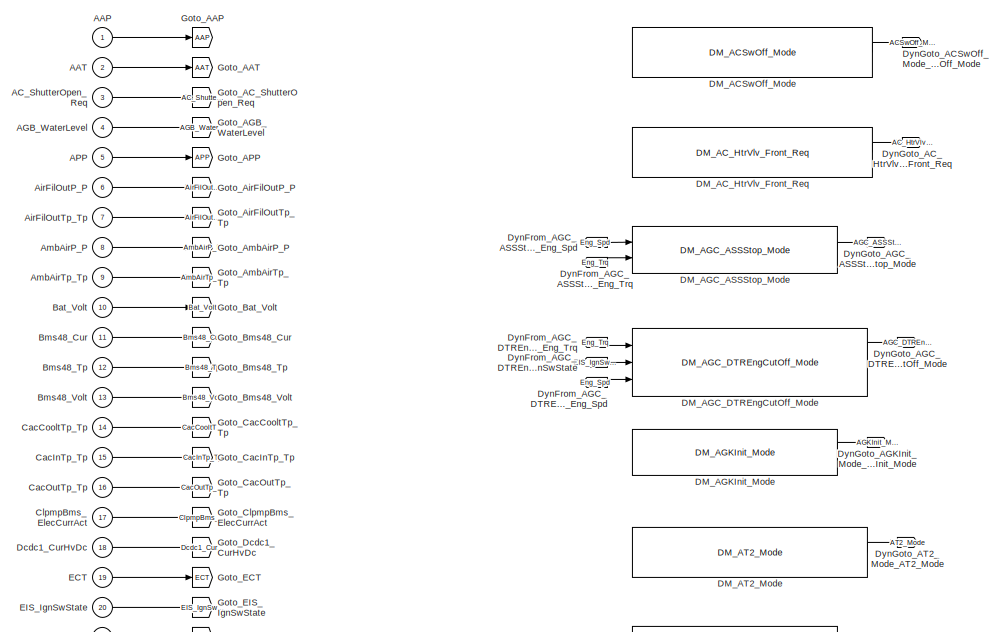
[diagram: root canvas - part 1/20, top left region]
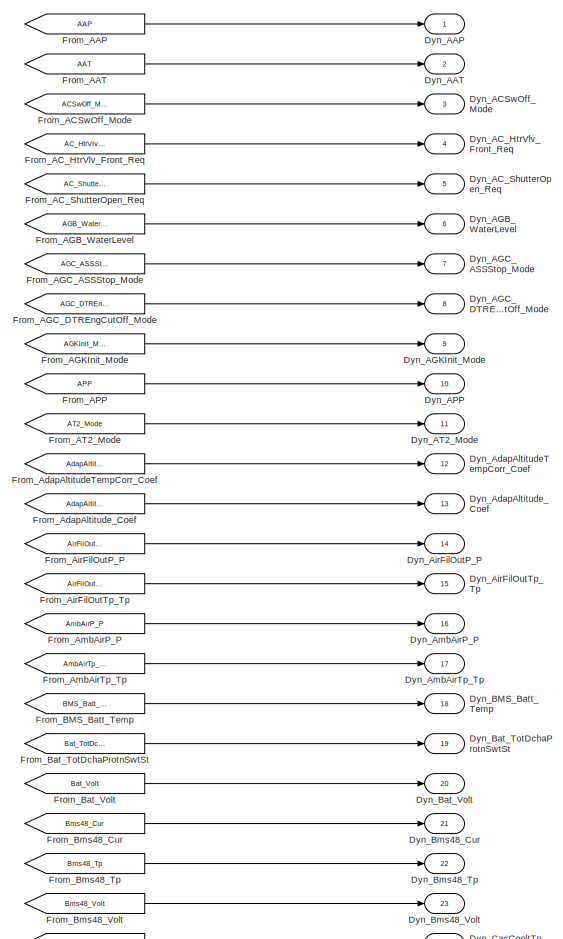
[diagram: root canvas - part 2/20, top right region]
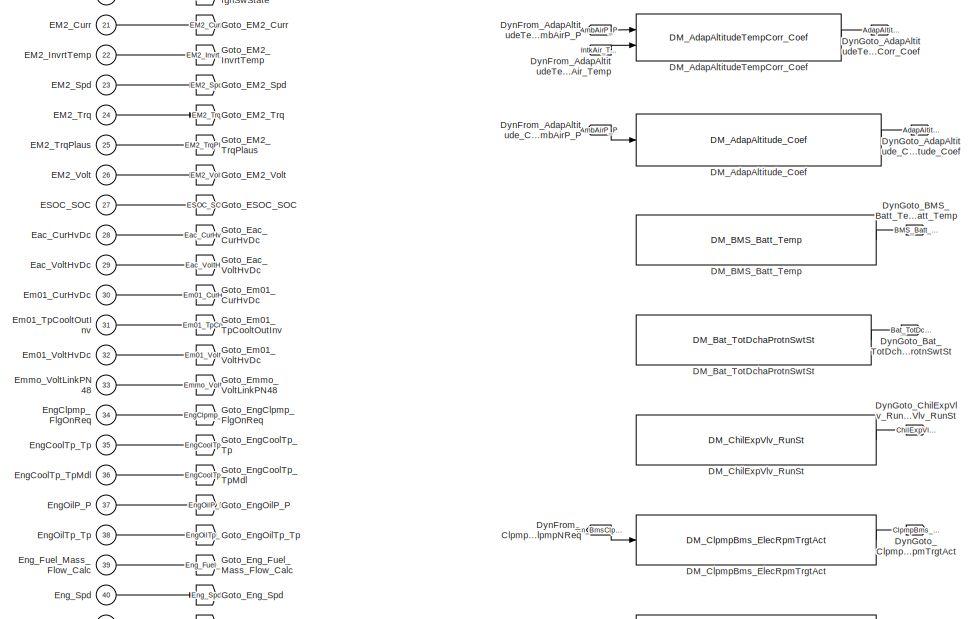
[diagram: root canvas - part 3/20, top left region]
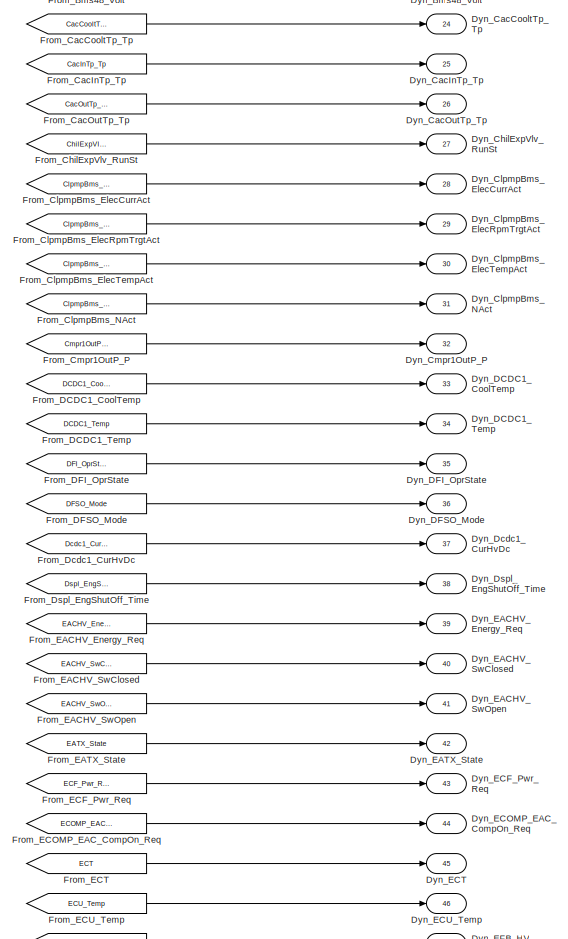
[diagram: root canvas - part 4/20, top right region]
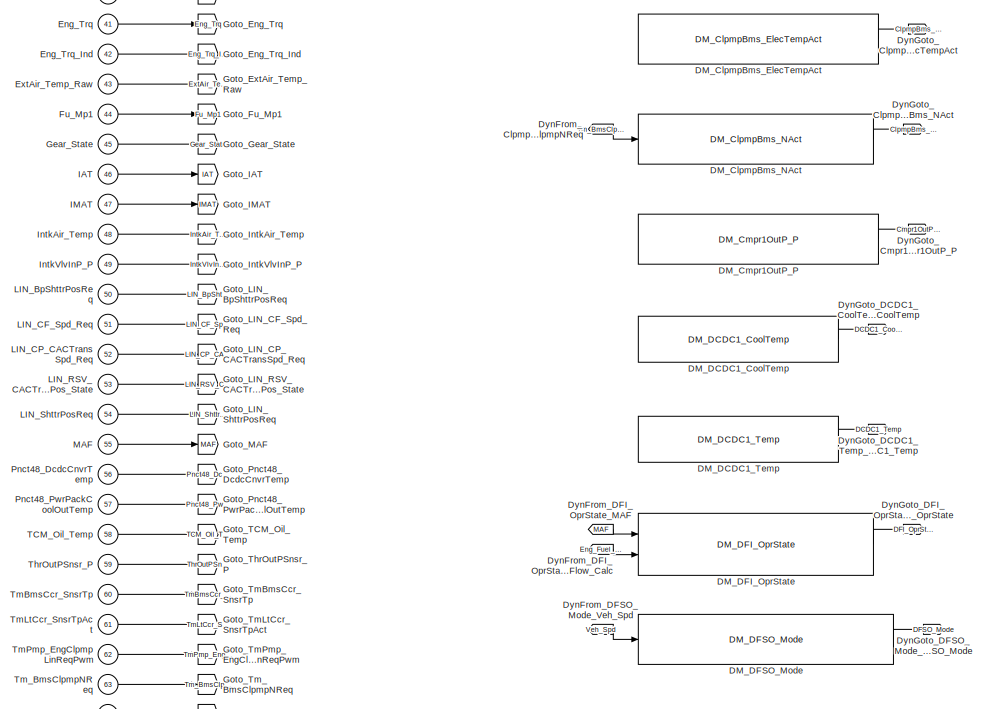
[diagram: root canvas - part 5/20, top left region]
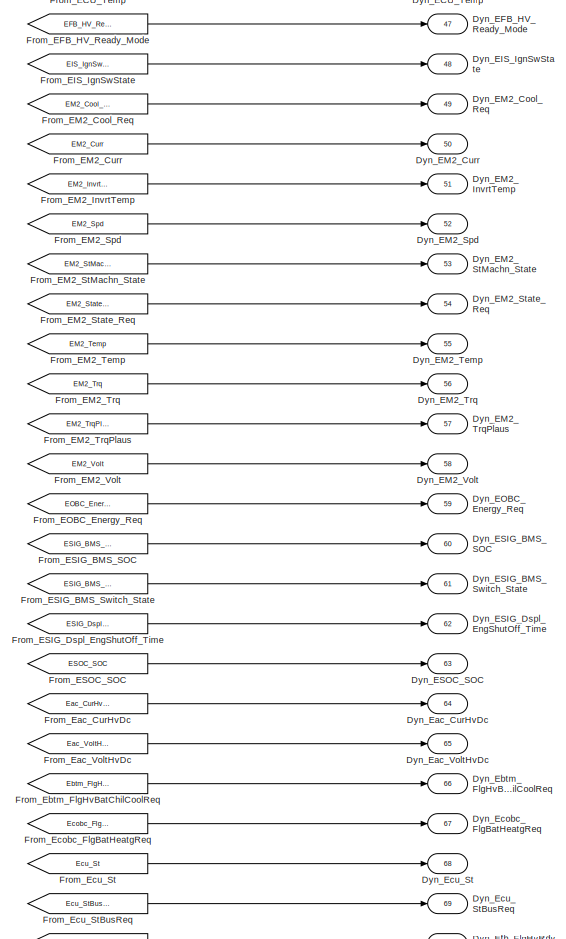
[diagram: root canvas - part 6/20, top right region]
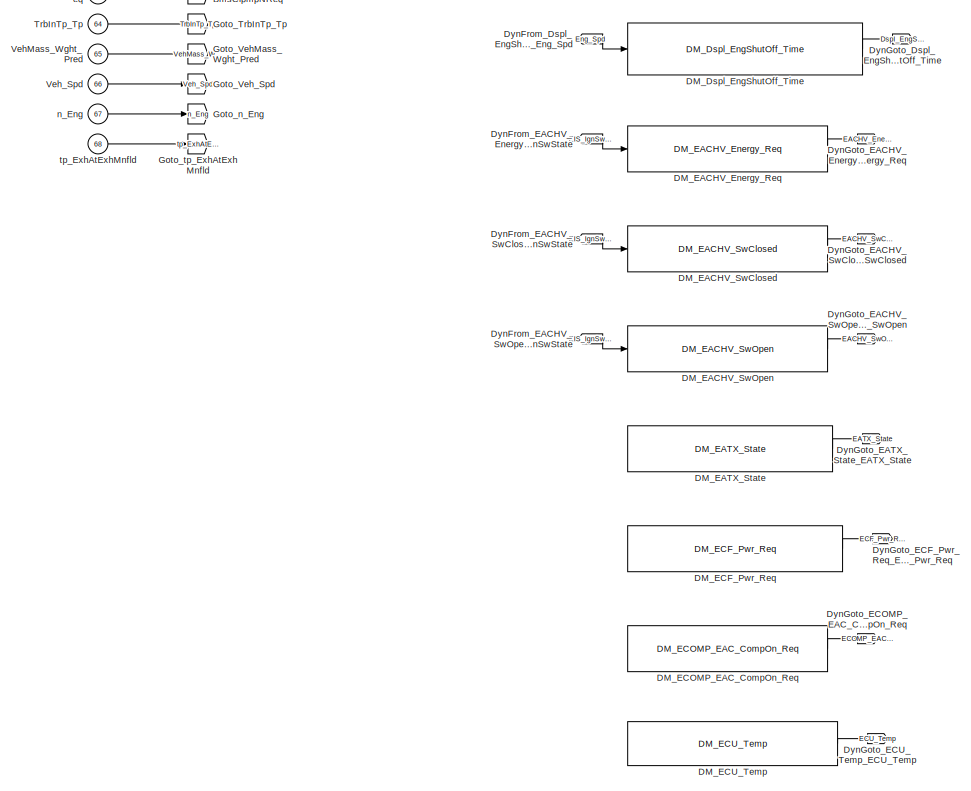
[diagram: root canvas - part 7/20, top left region]
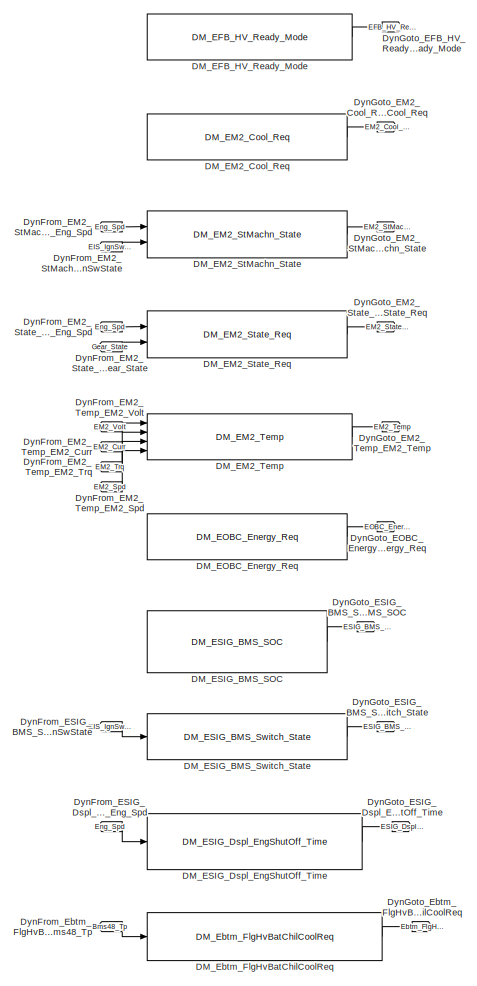
[diagram: root canvas - part 8/20, top left region]
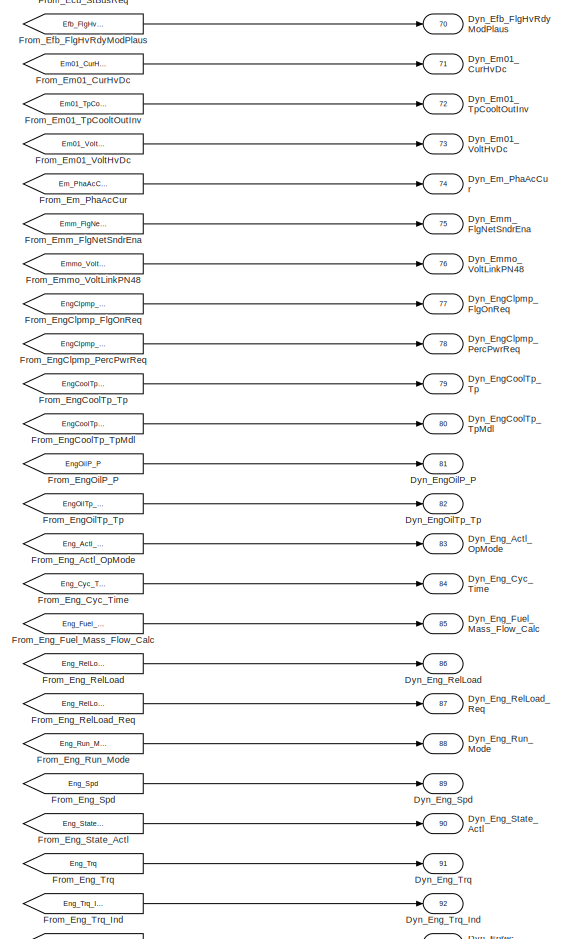
[diagram: root canvas - part 9/20, top right region]
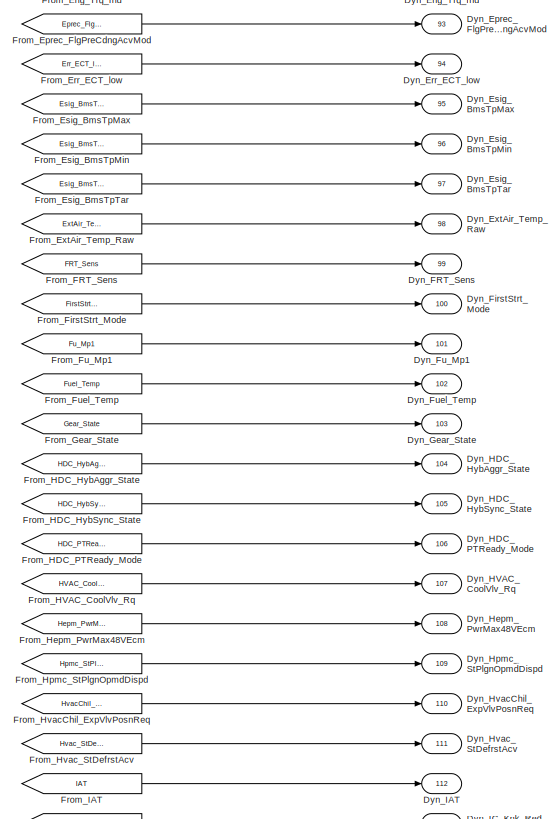
[diagram: root canvas - part 10/20, middle right region]
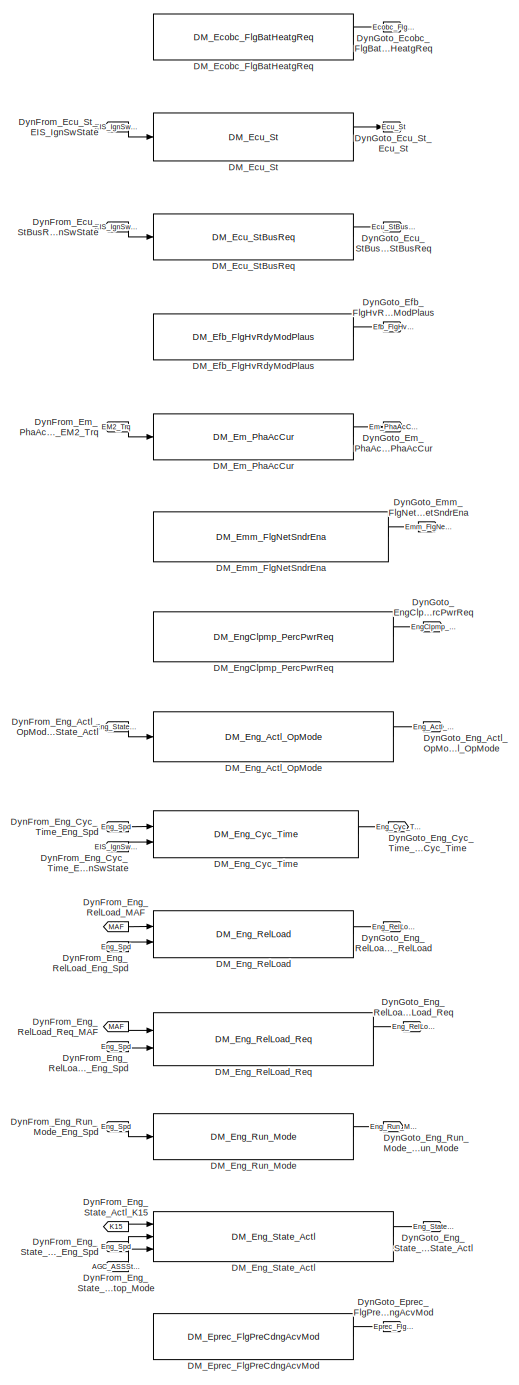
[diagram: root canvas - part 11/20, middle left region]
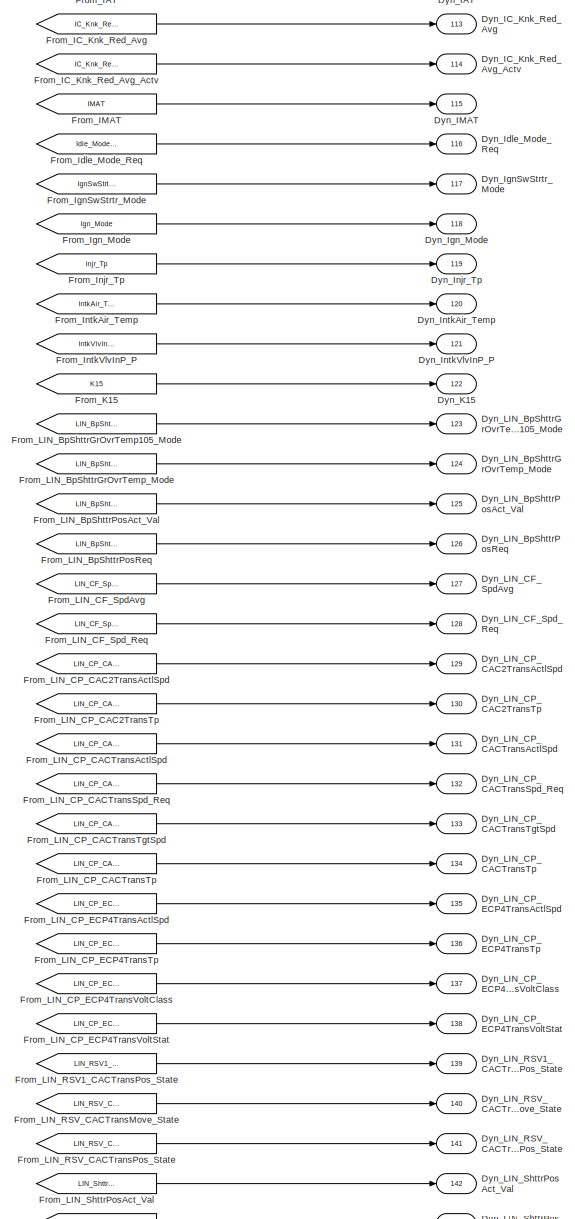
[diagram: root canvas - part 12/20, middle right region]
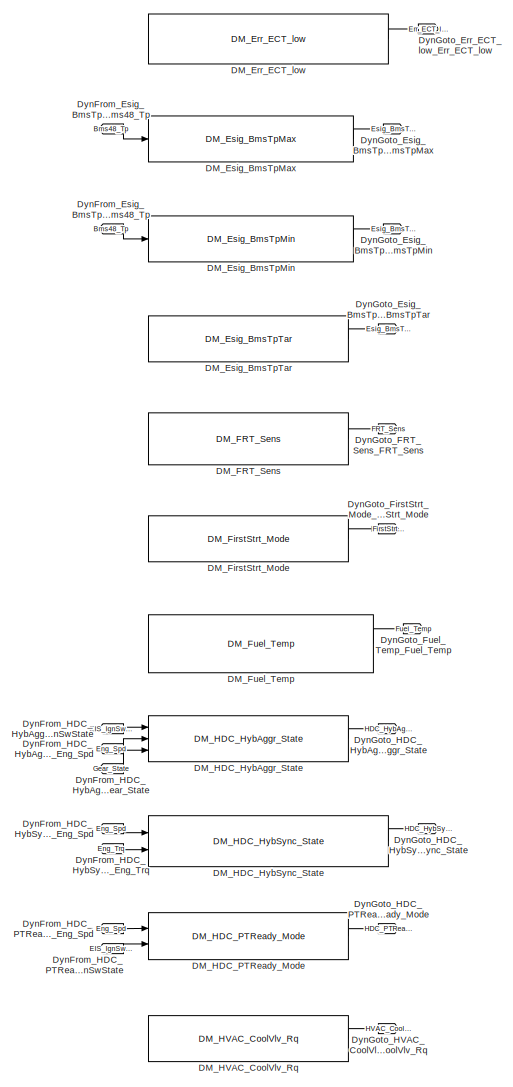
[diagram: root canvas - part 13/20, middle left region]
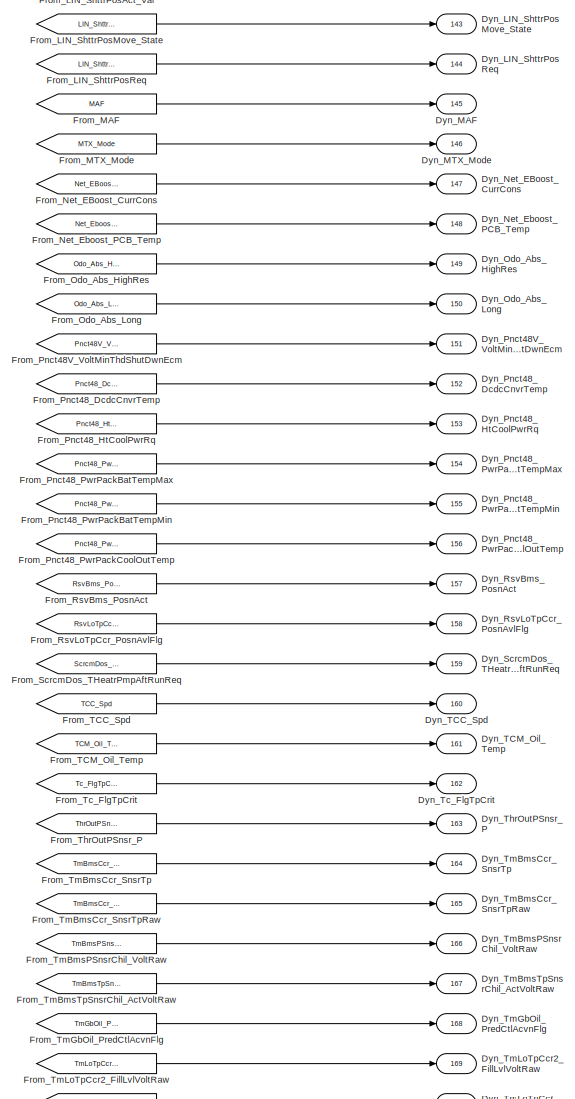
[diagram: root canvas - part 14/20, middle right region]
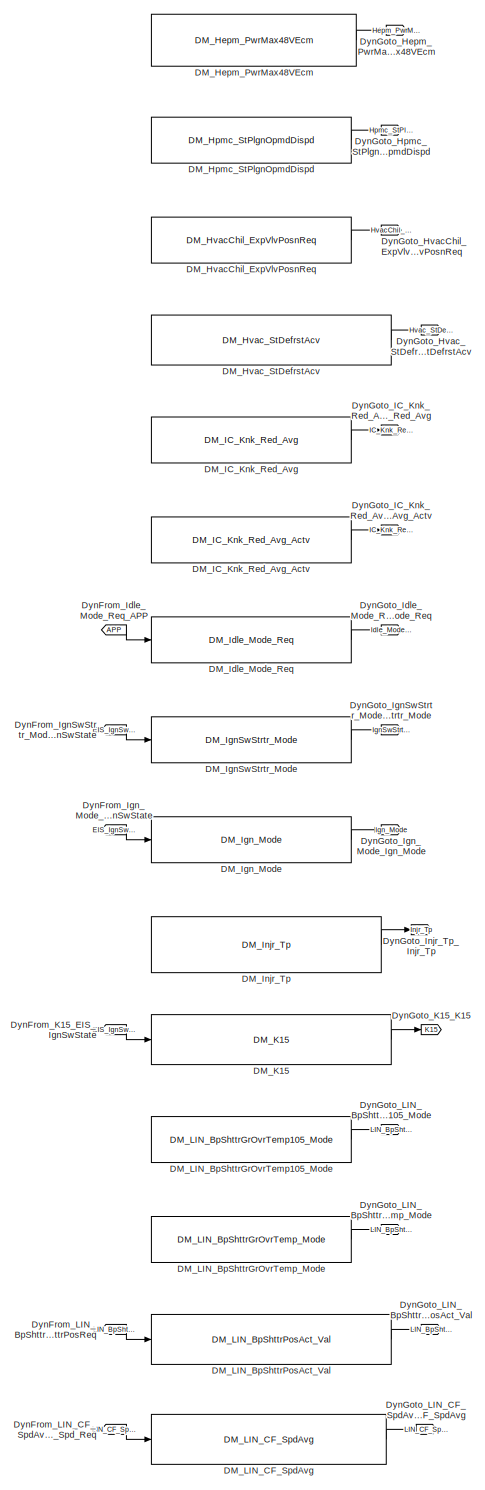
[diagram: root canvas - part 15/20, middle left region]
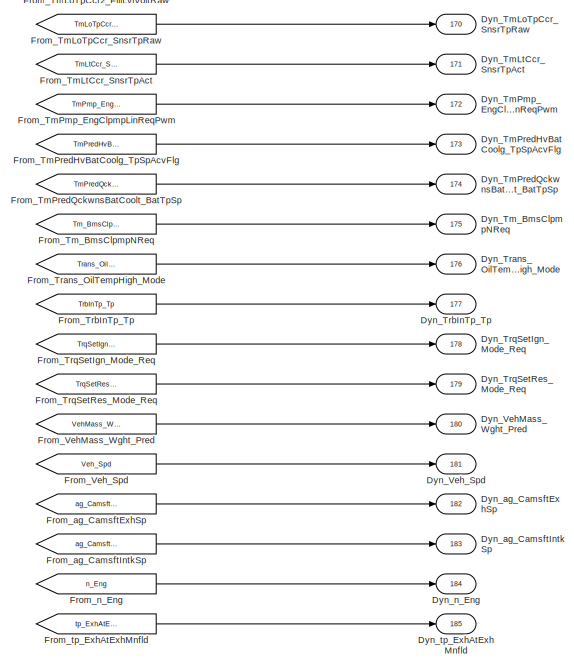
[diagram: root canvas - part 16/20, middle right region]
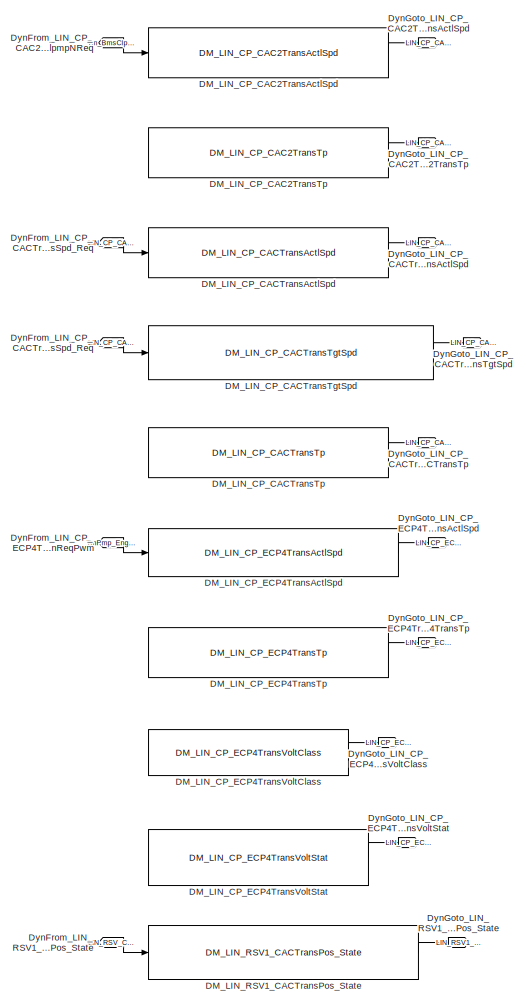
[diagram: root canvas - part 17/20, bottom left region]
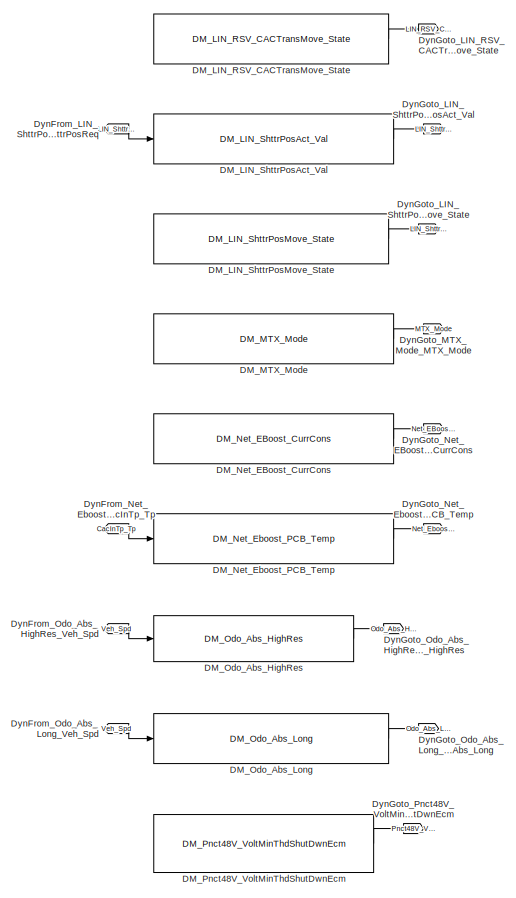
[diagram: root canvas - part 18/20, bottom left region]
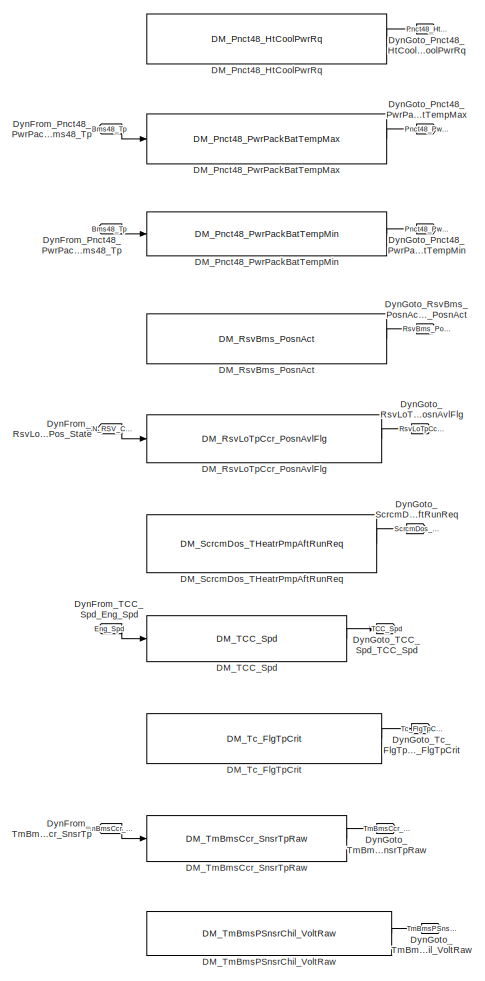
[diagram: root canvas - part 19/20, bottom left region]
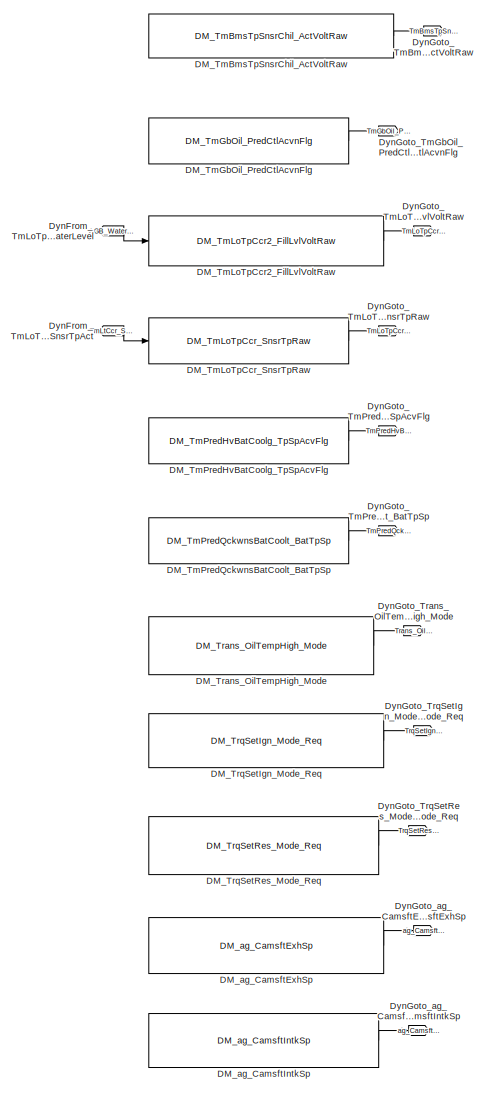
[diagram: root canvas - part 20/20, bottom left region]
MODEL slx_6fb1c74aa25f
KIND model
CONFIG AbsTol = auto
CONFIG EnableMultiTasking = off
CONFIG FixedStep = auto
CONFIG MaxStep = auto
CONFIG MinStep = auto
CONFIG RelTol = 1e-3
CONFIG SampleTimeConstraint = Unconstrained
CONFIG Solver = VariableStepAuto
CONFIG SolverName = VariableStepAuto
CONFIG StartTime = 0.0
CONFIG StopTime = 10.0
BLOCK [Inport] AAP
  IconDisplay = Port number
BLOCK [Inport] AAT
  IconDisplay = Port number
  Port = 2
BLOCK [Inport] AC_ShutterOpen_Req
  IconDisplay = Port number
  Port = 3
BLOCK [Inport] AGB_WaterLevel
  IconDisplay = Port number
  Port = 4
BLOCK [Inport] APP
  IconDisplay = Port number
  Port = 5
BLOCK [Inport] AirFilOutP_P
  IconDisplay = Port number
  Port = 6
BLOCK [Inport] AirFilOutTp_Tp
  IconDisplay = Port number
  Port = 7
BLOCK [Inport] AmbAirP_P
  IconDisplay = Port number
  Port = 8
BLOCK [Inport] AmbAirTp_Tp
  IconDisplay = Port number
  Port = 9
BLOCK [Inport] Bat_Volt
  IconDisplay = Port number
  Port = 10
BLOCK [Inport] Bms48_Cur
  IconDisplay = Port number
  Port = 11
BLOCK [Inport] Bms48_Tp
  IconDisplay = Port number
  Port = 12
BLOCK [Inport] Bms48_Volt
  IconDisplay = Port number
  Port = 13
BLOCK [Inport] CacCooltTp_Tp
  IconDisplay = Port number
  Port = 14
BLOCK [Inport] CacInTp_Tp
  IconDisplay = Port number
  Port = 15
BLOCK [Inport] CacOutTp_Tp
  IconDisplay = Port number
  Port = 16
BLOCK [Inport] ClpmpBms_ElecCurrAct
  IconDisplay = Port number
  Port = 17
BLOCK [Reference] DM_ACSwOff_Mode  REF=TM_DynamicModel_Library/DM_ACSwOff_Mode
  Ports = [0, 1]
  SourceBlock = TM_DynamicModel_Library/DM_ACSwOff_Mode
  SourceType = SubSystem
BLOCK [Reference] DM_AC_HtrVlv_Front_Req  REF=TM_DynamicModel_Library/DM_AC_HtrVlv_Front_Req
  Ports = [0, 1]
  SourceBlock = TM_DynamicModel_Library/DM_AC_HtrVlv_Front_Req
  SourceType = SubSystem
BLOCK [Reference] DM_AGC_ASSStop_Mode  REF=TM_DynamicModel_Library/DM_AGC_ASSStop_Mode
  Ports = [2, 1]
  SourceBlock = TM_DynamicModel_Library/DM_AGC_ASSStop_Mode
  SourceType = SubSystem
BLOCK [Reference] DM_AGC_DTREngCutOff_Mode  REF=TM_DynamicModel_Library/DM_AGC_DTREngCutOff_Mode
  Ports = [3, 1]
  SourceBlock = TM_DynamicModel_Library/DM_AGC_DTREngCutOff_Mode
  SourceType = SubSystem
BLOCK [Reference] DM_AGKInit_Mode  REF=TM_DynamicModel_Library/DM_AGKInit_Mode
  Ports = [0, 1]
  SourceBlock = TM_DynamicModel_Library/DM_AGKInit_Mode
  SourceType = SubSystem
BLOCK [Reference] DM_AT2_Mode  REF=TM_DynamicModel_Library/DM_AT2_Mode
  Ports = [0, 1]
  SourceBlock = TM_DynamicModel_Library/DM_AT2_Mode
  SourceType = SubSystem
BLOCK [Reference] DM_AdapAltitudeTempCorr_Coef  REF=TM_DynamicModel_Library/DM_AdapAltitudeTempCorr_Coef
  Ports = [2, 1]
  SourceBlock = TM_DynamicModel_Library/DM_AdapAltitudeTempCorr_Coef
  SourceType = SubSystem
BLOCK [Reference] DM_AdapAltitude_Coef  REF=TM_DynamicModel_Library/DM_AdapAltitude_Coef
  Ports = [1, 1]
  SourceBlock = TM_DynamicModel_Library/DM_AdapAltitude_Coef
  SourceType = SubSystem
BLOCK [Reference] DM_BMS_Batt_Temp  REF=TM_DynamicModel_Library/DM_BMS_Batt_Temp
  Ports = [0, 1]
  SourceBlock = TM_DynamicModel_Library/DM_BMS_Batt_Temp
  SourceType = SubSystem
BLOCK [Reference] DM_Bat_TotDchaProtnSwtSt  REF=TM_DynamicModel_Library/DM_Bat_TotDchaProtnSwtSt
  Ports = [0, 1]
  SourceBlock = TM_DynamicModel_Library/DM_Bat_TotDchaProtnSwtSt
  SourceType = SubSystem
BLOCK [Reference] DM_ChilExpVlv_RunSt  REF=TM_DynamicModel_Library/DM_ChilExpVlv_RunSt
  Ports = [0, 1]
  SourceBlock = TM_DynamicModel_Library/DM_ChilExpVlv_RunSt
  SourceType = SubSystem
BLOCK [Reference] DM_ClpmpBms_ElecRpmTrgtAct  REF=TM_DynamicModel_Library/DM_ClpmpBms_ElecRpmTrgtAct
  Ports = [1, 1]
  SourceBlock = TM_DynamicModel_Library/DM_ClpmpBms_ElecRpmTrgtAct
  SourceType = SubSystem
BLOCK [Reference] DM_ClpmpBms_ElecTempAct  REF=TM_DynamicModel_Library/DM_ClpmpBms_ElecTempAct
  Ports = [0, 1]
  SourceBlock = TM_DynamicModel_Library/DM_ClpmpBms_ElecTempAct
  SourceType = SubSystem
BLOCK [Reference] DM_ClpmpBms_NAct  REF=TM_DynamicModel_Library/DM_ClpmpBms_NAct
  Ports = [1, 1]
  SourceBlock = TM_DynamicModel_Library/DM_ClpmpBms_NAct
  SourceType = SubSystem
BLOCK [Reference] DM_Cmpr1OutP_P  REF=TM_DynamicModel_Library/DM_Cmpr1OutP_P
  Ports = [0, 1]
  SourceBlock = TM_DynamicModel_Library/DM_Cmpr1OutP_P
  SourceType = SubSystem
BLOCK [Reference] DM_DCDC1_CoolTemp  REF=TM_DynamicModel_Library/DM_DCDC1_CoolTemp
  Ports = [0, 1]
  SourceBlock = TM_DynamicModel_Library/DM_DCDC1_CoolTemp
  SourceType = SubSystem
BLOCK [Reference] DM_DCDC1_Temp  REF=TM_DynamicModel_Library/DM_DCDC1_Temp
  Ports = [0, 1]
  SourceBlock = TM_DynamicModel_Library/DM_DCDC1_Temp
  SourceType = SubSystem
BLOCK [Reference] DM_DFI_OprState  REF=TM_DynamicModel_Library/DM_DFI_OprState
  Ports = [2, 1]
  SourceBlock = TM_DynamicModel_Library/DM_DFI_OprState
  SourceType = SubSystem
BLOCK [Reference] DM_DFSO_Mode  REF=TM_DynamicModel_Library/DM_DFSO_Mode
  Ports = [1, 1]
  SourceBlock = TM_DynamicModel_Library/DM_DFSO_Mode
  SourceType = SubSystem
BLOCK [Reference] DM_Dspl_EngShutOff_Time  REF=TM_DynamicModel_Library/DM_Dspl_EngShutOff_Time
  Ports = [1, 1]
  SourceBlock = TM_DynamicModel_Library/DM_Dspl_EngShutOff_Time
  SourceType = SubSystem
BLOCK [Reference] DM_EACHV_Energy_Req  REF=TM_DynamicModel_Library/DM_EACHV_Energy_Req
  Ports = [1, 1]
  SourceBlock = TM_DynamicModel_Library/DM_EACHV_Energy_Req
  SourceType = SubSystem
BLOCK [Reference] DM_EACHV_SwClosed  REF=TM_DynamicModel_Library/DM_EACHV_SwClosed
  Ports = [1, 1]
  SourceBlock = TM_DynamicModel_Library/DM_EACHV_SwClosed
  SourceType = SubSystem
BLOCK [Reference] DM_EACHV_SwOpen  REF=TM_DynamicModel_Library/DM_EACHV_SwOpen
  Ports = [1, 1]
  SourceBlock = TM_DynamicModel_Library/DM_EACHV_SwOpen
  SourceType = SubSystem
BLOCK [Reference] DM_EATX_State  REF=TM_DynamicModel_Library/DM_EATX_State
  Ports = [0, 1]
  SourceBlock = TM_DynamicModel_Library/DM_EATX_State
  SourceType = SubSystem
BLOCK [Reference] DM_ECF_Pwr_Req  REF=TM_DynamicModel_Library/DM_ECF_Pwr_Req
  Ports = [0, 1]
  SourceBlock = TM_DynamicModel_Library/DM_ECF_Pwr_Req
  SourceType = SubSystem
BLOCK [Reference] DM_ECOMP_EAC_CompOn_Req  REF=TM_DynamicModel_Library/DM_ECOMP_EAC_CompOn_Req
  Ports = [0, 1]
  SourceBlock = TM_DynamicModel_Library/DM_ECOMP_EAC_CompOn_Req
  SourceType = SubSystem
BLOCK [Reference] DM_ECU_Temp  REF=TM_DynamicModel_Library/DM_ECU_Temp
  Ports = [0, 1]
  SourceBlock = TM_DynamicModel_Library/DM_ECU_Temp
  SourceType = SubSystem
BLOCK [Reference] DM_EFB_HV_Ready_Mode  REF=TM_DynamicModel_Library/DM_EFB_HV_Ready_Mode
  Ports = [0, 1]
  SourceBlock = TM_DynamicModel_Library/DM_EFB_HV_Ready_Mode
  SourceType = SubSystem
BLOCK [Reference] DM_EM2_Cool_Req  REF=TM_DynamicModel_Library/DM_EM2_Cool_Req
  Ports = [0, 1]
  SourceBlock = TM_DynamicModel_Library/DM_EM2_Cool_Req
  SourceType = SubSystem
BLOCK [Reference] DM_EM2_StMachn_State  REF=TM_DynamicModel_Library/DM_EM2_StMachn_State
  Ports = [2, 1]
  SourceBlock = TM_DynamicModel_Library/DM_EM2_StMachn_State
  SourceType = SubSystem
BLOCK [Reference] DM_EM2_State_Req  REF=TM_DynamicModel_Library/DM_EM2_State_Req
  Ports = [2, 1]
  SourceBlock = TM_DynamicModel_Library/DM_EM2_State_Req
  SourceType = SubSystem
BLOCK [Reference] DM_EM2_Temp  REF=TM_DynamicModel_Library/DM_EM2_Temp
  Ports = [4, 1]
  SourceBlock = TM_DynamicModel_Library/DM_EM2_Temp
  SourceType = SubSystem
BLOCK [Reference] DM_EOBC_Energy_Req  REF=TM_DynamicModel_Library/DM_EOBC_Energy_Req
  Ports = [0, 1]
  SourceBlock = TM_DynamicModel_Library/DM_EOBC_Energy_Req
  SourceType = SubSystem
BLOCK [Reference] DM_ESIG_BMS_SOC  REF=TM_DynamicModel_Library/DM_ESIG_BMS_SOC
  Ports = [0, 1]
  SourceBlock = TM_DynamicModel_Library/DM_ESIG_BMS_SOC
  SourceType = SubSystem
BLOCK [Reference] DM_ESIG_BMS_Switch_State  REF=TM_DynamicModel_Library/DM_ESIG_BMS_Switch_State
  Ports = [1, 1]
  SourceBlock = TM_DynamicModel_Library/DM_ESIG_BMS_Switch_State
  SourceType = SubSystem
BLOCK [Reference] DM_ESIG_Dspl_EngShutOff_Time  REF=TM_DynamicModel_Library/DM_ESIG_Dspl_EngShutOff_Time
  Ports = [1, 1]
  SourceBlock = TM_DynamicModel_Library/DM_ESIG_Dspl_EngShutOff_Time
  SourceType = SubSystem
BLOCK [Reference] DM_Ebtm_FlgHvBatChilCoolReq  REF=TM_DynamicModel_Library/DM_Ebtm_FlgHvBatChilCoolReq
  Ports = [1, 1]
  SourceBlock = TM_DynamicModel_Library/DM_Ebtm_FlgHvBatChilCoolReq
  SourceType = SubSystem
BLOCK [Reference] DM_Ecobc_FlgBatHeatgReq  REF=TM_DynamicModel_Library/DM_Ecobc_FlgBatHeatgReq
  Ports = [0, 1]
  SourceBlock = TM_DynamicModel_Library/DM_Ecobc_FlgBatHeatgReq
  SourceType = SubSystem
BLOCK [Reference] DM_Ecu_St  REF=TM_DynamicModel_Library/DM_Ecu_St
  Ports = [1, 1]
  SourceBlock = TM_DynamicModel_Library/DM_Ecu_St
  SourceType = SubSystem
BLOCK [Reference] DM_Ecu_StBusReq  REF=TM_DynamicModel_Library/DM_Ecu_StBusReq
  Ports = [1, 1]
  SourceBlock = TM_DynamicModel_Library/DM_Ecu_StBusReq
  SourceType = SubSystem
BLOCK [Reference] DM_Efb_FlgHvRdyModPlaus  REF=TM_DynamicModel_Library/DM_Efb_FlgHvRdyModPlaus
  Ports = [0, 1]
  SourceBlock = TM_DynamicModel_Library/DM_Efb_FlgHvRdyModPlaus
  SourceType = SubSystem
BLOCK [Reference] DM_Em_PhaAcCur  REF=TM_DynamicModel_Library/DM_Em_PhaAcCur
  Ports = [1, 1]
  SourceBlock = TM_DynamicModel_Library/DM_Em_PhaAcCur
  SourceType = SubSystem
BLOCK [Reference] DM_Emm_FlgNetSndrEna  REF=TM_DynamicModel_Library/DM_Emm_FlgNetSndrEna
  Ports = [0, 1]
  SourceBlock = TM_DynamicModel_Library/DM_Emm_FlgNetSndrEna
  SourceType = SubSystem
BLOCK [Reference] DM_EngClpmp_PercPwrReq  REF=TM_DynamicModel_Library/DM_EngClpmp_PercPwrReq
  Ports = [0, 1]
  SourceBlock = TM_DynamicModel_Library/DM_EngClpmp_PercPwrReq
  SourceType = SubSystem
BLOCK [Reference] DM_Eng_Actl_OpMode  REF=TM_DynamicModel_Library/DM_Eng_Actl_OpMode
  Ports = [1, 1]
  SourceBlock = TM_DynamicModel_Library/DM_Eng_Actl_OpMode
  SourceType = SubSystem
BLOCK [Reference] DM_Eng_Cyc_Time  REF=TM_DynamicModel_Library/DM_Eng_Cyc_Time
  Ports = [2, 1]
  SourceBlock = TM_DynamicModel_Library/DM_Eng_Cyc_Time
  SourceType = SubSystem
BLOCK [Reference] DM_Eng_RelLoad  REF=TM_DynamicModel_Library/DM_Eng_RelLoad
  Ports = [2, 1]
  SourceBlock = TM_DynamicModel_Library/DM_Eng_RelLoad
  SourceType = SubSystem
BLOCK [Reference] DM_Eng_RelLoad_Req  REF=TM_DynamicModel_Library/DM_Eng_RelLoad_Req
  Ports = [2, 1]
  SourceBlock = TM_DynamicModel_Library/DM_Eng_RelLoad_Req
  SourceType = SubSystem
BLOCK [Reference] DM_Eng_Run_Mode  REF=TM_DynamicModel_Library/DM_Eng_Run_Mode
  Ports = [1, 1]
  SourceBlock = TM_DynamicModel_Library/DM_Eng_Run_Mode
  SourceType = SubSystem
BLOCK [Reference] DM_Eng_State_Actl  REF=TM_DynamicModel_Library/DM_Eng_State_Actl
  Ports = [3, 1]
  SourceBlock = TM_DynamicModel_Library/DM_Eng_State_Actl
  SourceType = SubSystem
BLOCK [Reference] DM_Eprec_FlgPreCdngAcvMod  REF=TM_DynamicModel_Library/DM_Eprec_FlgPreCdngAcvMod
  Ports = [0, 1]
  SourceBlock = TM_DynamicModel_Library/DM_Eprec_FlgPreCdngAcvMod
  SourceType = SubSystem
BLOCK [Reference] DM_Err_ECT_low  REF=TM_DynamicModel_Library/DM_Err_ECT_low
  Ports = [0, 1]
  SourceBlock = TM_DynamicModel_Library/DM_Err_ECT_low
  SourceType = SubSystem
BLOCK [Reference] DM_Esig_BmsTpMax  REF=TM_DynamicModel_Library/DM_Esig_BmsTpMax
  Ports = [1, 1]
  SourceBlock = TM_DynamicModel_Library/DM_Esig_BmsTpMax
  SourceType = SubSystem
BLOCK [Reference] DM_Esig_BmsTpMin  REF=TM_DynamicModel_Library/DM_Esig_BmsTpMin
  Ports = [1, 1]
  SourceBlock = TM_DynamicModel_Library/DM_Esig_BmsTpMin
  SourceType = SubSystem
BLOCK [Reference] DM_Esig_BmsTpTar  REF=TM_DynamicModel_Library/DM_Esig_BmsTpTar
  Ports = [0, 1]
  SourceBlock = TM_DynamicModel_Library/DM_Esig_BmsTpTar
  SourceType = SubSystem
BLOCK [Reference] DM_FRT_Sens  REF=TM_DynamicModel_Library/DM_FRT_Sens
  Ports = [0, 1]
  SourceBlock = TM_DynamicModel_Library/DM_FRT_Sens
  SourceType = SubSystem
BLOCK [Reference] DM_FirstStrt_Mode  REF=TM_DynamicModel_Library/DM_FirstStrt_Mode
  Ports = [0, 1]
  SourceBlock = TM_DynamicModel_Library/DM_FirstStrt_Mode
  SourceType = SubSystem
BLOCK [Reference] DM_Fuel_Temp  REF=TM_DynamicModel_Library/DM_Fuel_Temp
  Ports = [0, 1]
  SourceBlock = TM_DynamicModel_Library/DM_Fuel_Temp
  SourceType = SubSystem
BLOCK [Reference] DM_HDC_HybAggr_State  REF=TM_DynamicModel_Library/DM_HDC_HybAggr_State
  Ports = [3, 1]
  SourceBlock = TM_DynamicModel_Library/DM_HDC_HybAggr_State
  SourceType = SubSystem
BLOCK [Reference] DM_HDC_HybSync_State  REF=TM_DynamicModel_Library/DM_HDC_HybSync_State
  Ports = [2, 1]
  SourceBlock = TM_DynamicModel_Library/DM_HDC_HybSync_State
  SourceType = SubSystem
BLOCK [Reference] DM_HDC_PTReady_Mode  REF=TM_DynamicModel_Library/DM_HDC_PTReady_Mode
  Ports = [2, 1]
  SourceBlock = TM_DynamicModel_Library/DM_HDC_PTReady_Mode
  SourceType = SubSystem
BLOCK [Reference] DM_HVAC_CoolVlv_Rq  REF=TM_DynamicModel_Library/DM_HVAC_CoolVlv_Rq
  Ports = [0, 1]
  SourceBlock = TM_DynamicModel_Library/DM_HVAC_CoolVlv_Rq
  SourceType = SubSystem
BLOCK [Reference] DM_Hepm_PwrMax48VEcm  REF=TM_DynamicModel_Library/DM_Hepm_PwrMax48VEcm
  Ports = [0, 1]
  SourceBlock = TM_DynamicModel_Library/DM_Hepm_PwrMax48VEcm
  SourceType = SubSystem
BLOCK [Reference] DM_Hpmc_StPlgnOpmdDispd  REF=TM_DynamicModel_Library/DM_Hpmc_StPlgnOpmdDispd
  Ports = [0, 1]
  SourceBlock = TM_DynamicModel_Library/DM_Hpmc_StPlgnOpmdDispd
  SourceType = SubSystem
BLOCK [Reference] DM_HvacChil_ExpVlvPosnReq  REF=TM_DynamicModel_Library/DM_HvacChil_ExpVlvPosnReq
  Ports = [0, 1]
  SourceBlock = TM_DynamicModel_Library/DM_HvacChil_ExpVlvPosnReq
  SourceType = SubSystem
BLOCK [Reference] DM_Hvac_StDefrstAcv  REF=TM_DynamicModel_Library/DM_Hvac_StDefrstAcv
  Ports = [0, 1]
  SourceBlock = TM_DynamicModel_Library/DM_Hvac_StDefrstAcv
  SourceType = SubSystem
BLOCK [Reference] DM_IC_Knk_Red_Avg  REF=TM_DynamicModel_Library/DM_IC_Knk_Red_Avg
  Ports = [0, 1]
  SourceBlock = TM_DynamicModel_Library/DM_IC_Knk_Red_Avg
  SourceType = SubSystem
BLOCK [Reference] DM_IC_Knk_Red_Avg_Actv  REF=TM_DynamicModel_Library/DM_IC_Knk_Red_Avg_Actv
  Ports = [0, 1]
  SourceBlock = TM_DynamicModel_Library/DM_IC_Knk_Red_Avg_Actv
  SourceType = SubSystem
BLOCK [Reference] DM_Idle_Mode_Req  REF=TM_DynamicModel_Library/DM_Idle_Mode_Req
  Ports = [1, 1]
  SourceBlock = TM_DynamicModel_Library/DM_Idle_Mode_Req
  SourceType = SubSystem
BLOCK [Reference] DM_IgnSwStrtr_Mode  REF=TM_DynamicModel_Library/DM_IgnSwStrtr_Mode
  Ports = [1, 1]
  SourceBlock = TM_DynamicModel_Library/DM_IgnSwStrtr_Mode
  SourceType = SubSystem
BLOCK [Reference] DM_Ign_Mode  REF=TM_DynamicModel_Library/DM_Ign_Mode
  Ports = [1, 1]
  SourceBlock = TM_DynamicModel_Library/DM_Ign_Mode
  SourceType = SubSystem
BLOCK [Reference] DM_Injr_Tp  REF=TM_DynamicModel_Library/DM_Injr_Tp
  Ports = [0, 1]
  SourceBlock = TM_DynamicModel_Library/DM_Injr_Tp
  SourceType = SubSystem
BLOCK [Reference] DM_K15  REF=TM_DynamicModel_Library/DM_K15
  Ports = [1, 1]
  SourceBlock = TM_DynamicModel_Library/DM_K15
  SourceType = SubSystem
BLOCK [Reference] DM_LIN_BpShttrGrOvrTemp105_Mode  REF=TM_DynamicModel_Library/DM_LIN_BpShttrGrOvrTemp105_Mode
  Ports = [0, 1]
  SourceBlock = TM_DynamicModel_Library/DM_LIN_BpShttrGrOvrTemp105_Mode
  SourceType = SubSystem
BLOCK [Reference] DM_LIN_BpShttrGrOvrTemp_Mode  REF=TM_DynamicModel_Library/DM_LIN_BpShttrGrOvrTemp_Mode
  Ports = [0, 1]
  SourceBlock = TM_DynamicModel_Library/DM_LIN_BpShttrGrOvrTemp_Mode
  SourceType = SubSystem
BLOCK [Reference] DM_LIN_BpShttrPosAct_Val  REF=TM_DynamicModel_Library/DM_LIN_BpShttrPosAct_Val
  Ports = [1, 1]
  SourceBlock = TM_DynamicModel_Library/DM_LIN_BpShttrPosAct_Val
  SourceType = SubSystem
BLOCK [Reference] DM_LIN_CF_SpdAvg  REF=TM_DynamicModel_Library/DM_LIN_CF_SpdAvg
  Ports = [1, 1]
  SourceBlock = TM_DynamicModel_Library/DM_LIN_CF_SpdAvg
  SourceType = SubSystem
BLOCK [Reference] DM_LIN_CP_CAC2TransActlSpd  REF=TM_DynamicModel_Library/DM_LIN_CP_CAC2TransActlSpd
  Ports = [1, 1]
  SourceBlock = TM_DynamicModel_Library/DM_LIN_CP_CAC2TransActlSpd
  SourceType = SubSystem
BLOCK [Reference] DM_LIN_CP_CAC2TransTp  REF=TM_DynamicModel_Library/DM_LIN_CP_CAC2TransTp
  Ports = [0, 1]
  SourceBlock = TM_DynamicModel_Library/DM_LIN_CP_CAC2TransTp
  SourceType = SubSystem
BLOCK [Reference] DM_LIN_CP_CACTransActlSpd  REF=TM_DynamicModel_Library/DM_LIN_CP_CACTransActlSpd
  Ports = [1, 1]
  SourceBlock = TM_DynamicModel_Library/DM_LIN_CP_CACTransActlSpd
  SourceType = SubSystem
BLOCK [Reference] DM_LIN_CP_CACTransTgtSpd  REF=TM_DynamicModel_Library/DM_LIN_CP_CACTransTgtSpd
  Ports = [1, 1]
  SourceBlock = TM_DynamicModel_Library/DM_LIN_CP_CACTransTgtSpd
  SourceType = SubSystem
BLOCK [Reference] DM_LIN_CP_CACTransTp  REF=TM_DynamicModel_Library/DM_LIN_CP_CACTransTp
  Ports = [0, 1]
  SourceBlock = TM_DynamicModel_Library/DM_LIN_CP_CACTransTp
  SourceType = SubSystem
BLOCK [Reference] DM_LIN_CP_ECP4TransActlSpd  REF=TM_DynamicModel_Library/DM_LIN_CP_ECP4TransActlSpd
  Ports = [1, 1]
  SourceBlock = TM_DynamicModel_Library/DM_LIN_CP_ECP4TransActlSpd
  SourceType = SubSystem
BLOCK [Reference] DM_LIN_CP_ECP4TransTp  REF=TM_DynamicModel_Library/DM_LIN_CP_ECP4TransTp
  Ports = [0, 1]
  SourceBlock = TM_DynamicModel_Library/DM_LIN_CP_ECP4TransTp
  SourceType = SubSystem
BLOCK [Reference] DM_LIN_CP_ECP4TransVoltClass  REF=TM_DynamicModel_Library/DM_LIN_CP_ECP4TransVoltClass
  Ports = [0, 1]
  SourceBlock = TM_DynamicModel_Library/DM_LIN_CP_ECP4TransVoltClass
  SourceType = SubSystem
BLOCK [Reference] DM_LIN_CP_ECP4TransVoltStat  REF=TM_DynamicModel_Library/DM_LIN_CP_ECP4TransVoltStat
  Ports = [0, 1]
  SourceBlock = TM_DynamicModel_Library/DM_LIN_CP_ECP4TransVoltStat
  SourceType = SubSystem
BLOCK [Reference] DM_LIN_RSV1_CACTransPos_State  REF=TM_DynamicModel_Library/DM_LIN_RSV1_CACTransPos_State
  Ports = [1, 1]
  SourceBlock = TM_DynamicModel_Library/DM_LIN_RSV1_CACTransPos_State
  SourceType = SubSystem
BLOCK [Reference] DM_LIN_RSV_CACTransMove_State  REF=TM_DynamicModel_Library/DM_LIN_RSV_CACTransMove_State
  Ports = [0, 1]
  SourceBlock = TM_DynamicModel_Library/DM_LIN_RSV_CACTransMove_State
  SourceType = SubSystem
BLOCK [Reference] DM_LIN_ShttrPosAct_Val  REF=TM_DynamicModel_Library/DM_LIN_ShttrPosAct_Val
  Ports = [1, 1]
  SourceBlock = TM_DynamicModel_Library/DM_LIN_ShttrPosAct_Val
  SourceType = SubSystem
BLOCK [Reference] DM_LIN_ShttrPosMove_State  REF=TM_DynamicModel_Library/DM_LIN_ShttrPosMove_State
  Ports = [0, 1]
  SourceBlock = TM_DynamicModel_Library/DM_LIN_ShttrPosMove_State
  SourceType = SubSystem
BLOCK [Reference] DM_MTX_Mode  REF=TM_DynamicModel_Library/DM_MTX_Mode
  Ports = [0, 1]
  SourceBlock = TM_DynamicModel_Library/DM_MTX_Mode
  SourceType = SubSystem
BLOCK [Reference] DM_Net_EBoost_CurrCons  REF=TM_DynamicModel_Library/DM_Net_EBoost_CurrCons
  Ports = [0, 1]
  SourceBlock = TM_DynamicModel_Library/DM_Net_EBoost_CurrCons
  SourceType = SubSystem
BLOCK [Reference] DM_Net_Eboost_PCB_Temp  REF=TM_DynamicModel_Library/DM_Net_Eboost_PCB_Temp
  Ports = [1, 1]
  SourceBlock = TM_DynamicModel_Library/DM_Net_Eboost_PCB_Temp
  SourceType = SubSystem
BLOCK [Reference] DM_Odo_Abs_HighRes  REF=TM_DynamicModel_Library/DM_Odo_Abs_HighRes
  Ports = [1, 1]
  SourceBlock = TM_DynamicModel_Library/DM_Odo_Abs_HighRes
  SourceType = SubSystem
BLOCK [Reference] DM_Odo_Abs_Long  REF=TM_DynamicModel_Library/DM_Odo_Abs_Long
  Ports = [1, 1]
  SourceBlock = TM_DynamicModel_Library/DM_Odo_Abs_Long
  SourceType = SubSystem
BLOCK [Reference] DM_Pnct48V_VoltMinThdShutDwnEcm  REF=TM_DynamicModel_Library/DM_Pnct48V_VoltMinThdShutDwnEcm
  Ports = [0, 1]
  SourceBlock = TM_DynamicModel_Library/DM_Pnct48V_VoltMinThdShutDwnEcm
  SourceType = SubSystem
BLOCK [Reference] DM_Pnct48_HtCoolPwrRq  REF=TM_DynamicModel_Library/DM_Pnct48_HtCoolPwrRq
  Ports = [0, 1]
  SourceBlock = TM_DynamicModel_Library/DM_Pnct48_HtCoolPwrRq
  SourceType = SubSystem
BLOCK [Reference] DM_Pnct48_PwrPackBatTempMax  REF=TM_DynamicModel_Library/DM_Pnct48_PwrPackBatTempMax
  Ports = [1, 1]
  SourceBlock = TM_DynamicModel_Library/DM_Pnct48_PwrPackBatTempMax
  SourceType = SubSystem
BLOCK [Reference] DM_Pnct48_PwrPackBatTempMin  REF=TM_DynamicModel_Library/DM_Pnct48_PwrPackBatTempMin
  Ports = [1, 1]
  SourceBlock = TM_DynamicModel_Library/DM_Pnct48_PwrPackBatTempMin
  SourceType = SubSystem
BLOCK [Reference] DM_RsvBms_PosnAct  REF=TM_DynamicModel_Library/DM_RsvBms_PosnAct
  Ports = [0, 1]
  SourceBlock = TM_DynamicModel_Library/DM_RsvBms_PosnAct
  SourceType = SubSystem
BLOCK [Reference] DM_RsvLoTpCcr_PosnAvlFlg  REF=TM_DynamicModel_Library/DM_RsvLoTpCcr_PosnAvlFlg
  Ports = [1, 1]
  SourceBlock = TM_DynamicModel_Library/DM_RsvLoTpCcr_PosnAvlFlg
  SourceType = SubSystem
BLOCK [Reference] DM_ScrcmDos_THeatrPmpAftRunReq  REF=TM_DynamicModel_Library/DM_ScrcmDos_THeatrPmpAftRunReq
  Ports = [0, 1]
  SourceBlock = TM_DynamicModel_Library/DM_ScrcmDos_THeatrPmpAftRunReq
  SourceType = SubSystem
BLOCK [Reference] DM_TCC_Spd  REF=TM_DynamicModel_Library/DM_TCC_Spd
  Ports = [1, 1]
  SourceBlock = TM_DynamicModel_Library/DM_TCC_Spd
  SourceType = SubSystem
BLOCK [Reference] DM_Tc_FlgTpCrit  REF=TM_DynamicModel_Library/DM_Tc_FlgTpCrit
  Ports = [0, 1]
  SourceBlock = TM_DynamicModel_Library/DM_Tc_FlgTpCrit
  SourceType = SubSystem
BLOCK [Reference] DM_TmBmsCcr_SnsrTpRaw  REF=TM_DynamicModel_Library/DM_TmBmsCcr_SnsrTpRaw
  Ports = [1, 1]
  SourceBlock = TM_DynamicModel_Library/DM_TmBmsCcr_SnsrTpRaw
  SourceType = SubSystem
BLOCK [Reference] DM_TmBmsPSnsrChil_VoltRaw  REF=TM_DynamicModel_Library/DM_TmBmsPSnsrChil_VoltRaw
  Ports = [0, 1]
  SourceBlock = TM_DynamicModel_Library/DM_TmBmsPSnsrChil_VoltRaw
  SourceType = SubSystem
BLOCK [Reference] DM_TmBmsTpSnsrChil_ActVoltRaw  REF=TM_DynamicModel_Library/DM_TmBmsTpSnsrChil_ActVoltRaw
  Ports = [0, 1]
  SourceBlock = TM_DynamicModel_Library/DM_TmBmsTpSnsrChil_ActVoltRaw
  SourceType = SubSystem
BLOCK [Reference] DM_TmGbOil_PredCtlAcvnFlg  REF=TM_DynamicModel_Library/DM_TmGbOil_PredCtlAcvnFlg
  Ports = [0, 1]
  SourceBlock = TM_DynamicModel_Library/DM_TmGbOil_PredCtlAcvnFlg
  SourceType = SubSystem
BLOCK [Reference] DM_TmLoTpCcr2_FillLvlVoltRaw  REF=TM_DynamicModel_Library/DM_TmLoTpCcr2_FillLvlVoltRaw
  Ports = [1, 1]
  SourceBlock = TM_DynamicModel_Library/DM_TmLoTpCcr2_FillLvlVoltRaw
  SourceType = SubSystem
BLOCK [Reference] DM_TmLoTpCcr_SnsrTpRaw  REF=TM_DynamicModel_Library/DM_TmLoTpCcr_SnsrTpRaw
  Ports = [1, 1]
  SourceBlock = TM_DynamicModel_Library/DM_TmLoTpCcr_SnsrTpRaw
  SourceType = SubSystem
BLOCK [Reference] DM_TmPredHvBatCoolg_TpSpAcvFlg  REF=TM_DynamicModel_Library/DM_TmPredHvBatCoolg_TpSpAcvFlg
  Ports = [0, 1]
  SourceBlock = TM_DynamicModel_Library/DM_TmPredHvBatCoolg_TpSpAcvFlg
  SourceType = SubSystem
BLOCK [Reference] DM_TmPredQckwnsBatCoolt_BatTpSp  REF=TM_DynamicModel_Library/DM_TmPredQckwnsBatCoolt_BatTpSp
  Ports = [0, 1]
  SourceBlock = TM_DynamicModel_Library/DM_TmPredQckwnsBatCoolt_BatTpSp
  SourceType = SubSystem
BLOCK [Reference] DM_Trans_OilTempHigh_Mode  REF=TM_DynamicModel_Library/DM_Trans_OilTempHigh_Mode
  Ports = [0, 1]
  SourceBlock = TM_DynamicModel_Library/DM_Trans_OilTempHigh_Mode
  SourceType = SubSystem
BLOCK [Reference] DM_TrqSetIgn_Mode_Req  REF=TM_DynamicModel_Library/DM_TrqSetIgn_Mode_Req
  Ports = [0, 1]
  SourceBlock = TM_DynamicModel_Library/DM_TrqSetIgn_Mode_Req
  SourceType = SubSystem
BLOCK [Reference] DM_TrqSetRes_Mode_Req  REF=TM_DynamicModel_Library/DM_TrqSetRes_Mode_Req
  Ports = [0, 1]
  SourceBlock = TM_DynamicModel_Library/DM_TrqSetRes_Mode_Req
  SourceType = SubSystem
BLOCK [Reference] DM_ag_CamsftExhSp  REF=TM_DynamicModel_Library/DM_ag_CamsftExhSp
  Ports = [0, 1]
  SourceBlock = TM_DynamicModel_Library/DM_ag_CamsftExhSp
  SourceType = SubSystem
BLOCK [Reference] DM_ag_CamsftIntkSp  REF=TM_DynamicModel_Library/DM_ag_CamsftIntkSp
  Ports = [0, 1]
  SourceBlock = TM_DynamicModel_Library/DM_ag_CamsftIntkSp
  SourceType = SubSystem
BLOCK [Inport] Dcdc1_CurHvDc
  IconDisplay = Port number
  Port = 18
BLOCK [From] DynFrom_AGC_ASSStop_Mode_Eng_Spd
  GotoTag = Eng_Spd
BLOCK [From] DynFrom_AGC_ASSStop_Mode_Eng_Trq
  GotoTag = Eng_Trq
BLOCK [From] DynFrom_AGC_DTREngCutOff_Mode_EIS_IgnSwState
  GotoTag = EIS_IgnSwState
BLOCK [From] DynFrom_AGC_DTREngCutOff_Mode_Eng_Spd
  GotoTag = Eng_Spd
BLOCK [From] DynFrom_AGC_DTREngCutOff_Mode_Eng_Trq
  GotoTag = Eng_Trq
BLOCK [From] DynFrom_AdapAltitudeTempCorr_Coef_AmbAirP_P
  GotoTag = AmbAirP_P
BLOCK [From] DynFrom_AdapAltitudeTempCorr_Coef_IntkAir_Temp
  GotoTag = IntkAir_Temp
BLOCK [From] DynFrom_AdapAltitude_Coef_AmbAirP_P
  GotoTag = AmbAirP_P
BLOCK [From] DynFrom_ClpmpBms_ElecRpmTrgtAct_Tm_BmsClpmpNReq
  GotoTag = Tm_BmsClpmpNReq
BLOCK [From] DynFrom_ClpmpBms_NAct_Tm_BmsClpmpNReq
  GotoTag = Tm_BmsClpmpNReq
BLOCK [From] DynFrom_DFI_OprState_Eng_Fuel_Mass_Flow_Calc
  GotoTag = Eng_Fuel_Mass_Flow_Calc
BLOCK [From] DynFrom_DFI_OprState_MAF
  GotoTag = MAF
BLOCK [From] DynFrom_DFSO_Mode_Veh_Spd
  GotoTag = Veh_Spd
BLOCK [From] DynFrom_Dspl_EngShutOff_Time_Eng_Spd
  GotoTag = Eng_Spd
BLOCK [From] DynFrom_EACHV_Energy_Req_EIS_IgnSwState
  GotoTag = EIS_IgnSwState
BLOCK [From] DynFrom_EACHV_SwClosed_EIS_IgnSwState
  GotoTag = EIS_IgnSwState
BLOCK [From] DynFrom_EACHV_SwOpen_EIS_IgnSwState
  GotoTag = EIS_IgnSwState
BLOCK [From] DynFrom_EM2_StMachn_State_EIS_IgnSwState
  GotoTag = EIS_IgnSwState
BLOCK [From] DynFrom_EM2_StMachn_State_Eng_Spd
  GotoTag = Eng_Spd
BLOCK [From] DynFrom_EM2_State_Req_Eng_Spd
  GotoTag = Eng_Spd
BLOCK [From] DynFrom_EM2_State_Req_Gear_State
  GotoTag = Gear_State
BLOCK [From] DynFrom_EM2_Temp_EM2_Curr
  GotoTag = EM2_Curr
BLOCK [From] DynFrom_EM2_Temp_EM2_Spd
  GotoTag = EM2_Spd
BLOCK [From] DynFrom_EM2_Temp_EM2_Trq
  GotoTag = EM2_Trq
BLOCK [From] DynFrom_EM2_Temp_EM2_Volt
  GotoTag = EM2_Volt
BLOCK [From] DynFrom_ESIG_BMS_Switch_State_EIS_IgnSwState
  GotoTag = EIS_IgnSwState
BLOCK [From] DynFrom_ESIG_Dspl_EngShutOff_Time_Eng_Spd
  GotoTag = Eng_Spd
BLOCK [From] DynFrom_Ebtm_FlgHvBatChilCoolReq_Bms48_Tp
  GotoTag = Bms48_Tp
BLOCK [From] DynFrom_Ecu_StBusReq_EIS_IgnSwState
  GotoTag = EIS_IgnSwState
BLOCK [From] DynFrom_Ecu_St_EIS_IgnSwState
  GotoTag = EIS_IgnSwState
BLOCK [From] DynFrom_Em_PhaAcCur_EM2_Trq
  GotoTag = EM2_Trq
BLOCK [From] DynFrom_Eng_Actl_OpMode_Eng_State_Actl
  GotoTag = Eng_State_Actl
BLOCK [From] DynFrom_Eng_Cyc_Time_EIS_IgnSwState
  GotoTag = EIS_IgnSwState
BLOCK [From] DynFrom_Eng_Cyc_Time_Eng_Spd
  GotoTag = Eng_Spd
BLOCK [From] DynFrom_Eng_RelLoad_Eng_Spd
  GotoTag = Eng_Spd
BLOCK [From] DynFrom_Eng_RelLoad_MAF
  GotoTag = MAF
BLOCK [From] DynFrom_Eng_RelLoad_Req_Eng_Spd
  GotoTag = Eng_Spd
BLOCK [From] DynFrom_Eng_RelLoad_Req_MAF
  GotoTag = MAF
BLOCK [From] DynFrom_Eng_Run_Mode_Eng_Spd
  GotoTag = Eng_Spd
BLOCK [From] DynFrom_Eng_State_Actl_AGC_ASSStop_Mode
  GotoTag = AGC_ASSStop_Mode
BLOCK [From] DynFrom_Eng_State_Actl_Eng_Spd
  GotoTag = Eng_Spd
BLOCK [From] DynFrom_Eng_State_Actl_K15
  GotoTag = K15
BLOCK [From] DynFrom_Esig_BmsTpMax_Bms48_Tp
  GotoTag = Bms48_Tp
BLOCK [From] DynFrom_Esig_BmsTpMin_Bms48_Tp
  GotoTag = Bms48_Tp
BLOCK [From] DynFrom_HDC_HybAggr_State_EIS_IgnSwState
  GotoTag = EIS_IgnSwState
BLOCK [From] DynFrom_HDC_HybAggr_State_Eng_Spd
  GotoTag = Eng_Spd
BLOCK [From] DynFrom_HDC_HybAggr_State_Gear_State
  GotoTag = Gear_State
BLOCK [From] DynFrom_HDC_HybSync_State_Eng_Spd
  GotoTag = Eng_Spd
BLOCK [From] DynFrom_HDC_HybSync_State_Eng_Trq
  GotoTag = Eng_Trq
BLOCK [From] DynFrom_HDC_PTReady_Mode_EIS_IgnSwState
  GotoTag = EIS_IgnSwState
BLOCK [From] DynFrom_HDC_PTReady_Mode_Eng_Spd
  GotoTag = Eng_Spd
BLOCK [From] DynFrom_Idle_Mode_Req_APP
  GotoTag = APP
BLOCK [From] DynFrom_IgnSwStrtr_Mode_EIS_IgnSwState
  GotoTag = EIS_IgnSwState
BLOCK [From] DynFrom_Ign_Mode_EIS_IgnSwState
  GotoTag = EIS_IgnSwState
BLOCK [From] DynFrom_K15_EIS_IgnSwState
  GotoTag = EIS_IgnSwState
BLOCK [From] DynFrom_LIN_BpShttrPosAct_Val_LIN_BpShttrPosReq
  GotoTag = LIN_BpShttrPosReq
BLOCK [From] DynFrom_LIN_CF_SpdAvg_LIN_CF_Spd_Req
  GotoTag = LIN_CF_Spd_Req
BLOCK [From] DynFrom_LIN_CP_CAC2TransActlSpd_Tm_BmsClpmpNReq
  GotoTag = Tm_BmsClpmpNReq
BLOCK [From] DynFrom_LIN_CP_CACTransActlSpd_LIN_CP_CACTransSpd_Req
  GotoTag = LIN_CP_CACTransSpd_Req
BLOCK [From] DynFrom_LIN_CP_CACTransTgtSpd_LIN_CP_CACTransSpd_Req
  GotoTag = LIN_CP_CACTransSpd_Req
BLOCK [From] DynFrom_LIN_CP_ECP4TransActlSpd_TmPmp_EngClpmpLinReqPwm
  GotoTag = TmPmp_EngClpmpLinReqPwm
BLOCK [From] DynFrom_LIN_RSV1_CACTransPos_State_LIN_RSV_CACTransPos_State
  GotoTag = LIN_RSV_CACTransPos_State
BLOCK [From] DynFrom_LIN_ShttrPosAct_Val_LIN_ShttrPosReq
  GotoTag = LIN_ShttrPosReq
BLOCK [From] DynFrom_Net_Eboost_PCB_Temp_CacInTp_Tp
  GotoTag = CacInTp_Tp
BLOCK [From] DynFrom_Odo_Abs_HighRes_Veh_Spd
  GotoTag = Veh_Spd
BLOCK [From] DynFrom_Odo_Abs_Long_Veh_Spd
  GotoTag = Veh_Spd
BLOCK [From] DynFrom_Pnct48_PwrPackBatTempMax_Bms48_Tp
  GotoTag = Bms48_Tp
BLOCK [From] DynFrom_Pnct48_PwrPackBatTempMin_Bms48_Tp
  GotoTag = Bms48_Tp
BLOCK [From] DynFrom_RsvLoTpCcr_PosnAvlFlg_LIN_RSV_CACTransPos_State
  GotoTag = LIN_RSV_CACTransPos_State
BLOCK [From] DynFrom_TCC_Spd_Eng_Spd
  GotoTag = Eng_Spd
BLOCK [From] DynFrom_TmBmsCcr_SnsrTpRaw_TmBmsCcr_SnsrTp
  GotoTag = TmBmsCcr_SnsrTp
BLOCK [From] DynFrom_TmLoTpCcr2_FillLvlVoltRaw_AGB_WaterLevel
  GotoTag = AGB_WaterLevel
BLOCK [From] DynFrom_TmLoTpCcr_SnsrTpRaw_TmLtCcr_SnsrTpAct
  GotoTag = TmLtCcr_SnsrTpAct
BLOCK [Goto] DynGoto_ACSwOff_Mode_ACSwOff_Mode
  GotoTag = ACSwOff_Mode
BLOCK [Goto] DynGoto_AC_HtrVlv_Front_Req_AC_HtrVlv_Front_Req
  GotoTag = AC_HtrVlv_Front_Req
BLOCK [Goto] DynGoto_AGC_ASSStop_Mode_AGC_ASSStop_Mode
  GotoTag = AGC_ASSStop_Mode
BLOCK [Goto] DynGoto_AGC_DTREngCutOff_Mode_AGC_DTREngCutOff_Mode
  GotoTag = AGC_DTREngCutOff_Mode
BLOCK [Goto] DynGoto_AGKInit_Mode_AGKInit_Mode
  GotoTag = AGKInit_Mode
BLOCK [Goto] DynGoto_AT2_Mode_AT2_Mode
  GotoTag = AT2_Mode
BLOCK [Goto] DynGoto_AdapAltitudeTempCorr_Coef_AdapAltitudeTempCorr_Coef
  GotoTag = AdapAltitudeTempCorr_Coef
BLOCK [Goto] DynGoto_AdapAltitude_Coef_AdapAltitude_Coef
  GotoTag = AdapAltitude_Coef
BLOCK [Goto] DynGoto_BMS_Batt_Temp_BMS_Batt_Temp
  GotoTag = BMS_Batt_Temp
BLOCK [Goto] DynGoto_Bat_TotDchaProtnSwtSt_Bat_TotDchaProtnSwtSt
  GotoTag = Bat_TotDchaProtnSwtSt
BLOCK [Goto] DynGoto_ChilExpVlv_RunSt_ChilExpVlv_RunSt
  GotoTag = ChilExpVlv_RunSt
BLOCK [Goto] DynGoto_ClpmpBms_ElecRpmTrgtAct_ClpmpBms_ElecRpmTrgtAct
  GotoTag = ClpmpBms_ElecRpmTrgtAct
BLOCK [Goto] DynGoto_ClpmpBms_ElecTempAct_ClpmpBms_ElecTempAct
  GotoTag = ClpmpBms_ElecTempAct
BLOCK [Goto] DynGoto_ClpmpBms_NAct_ClpmpBms_NAct
  GotoTag = ClpmpBms_NAct
BLOCK [Goto] DynGoto_Cmpr1OutP_P_Cmpr1OutP_P
  GotoTag = Cmpr1OutP_P
BLOCK [Goto] DynGoto_DCDC1_CoolTemp_DCDC1_CoolTemp
  GotoTag = DCDC1_CoolTemp
BLOCK [Goto] DynGoto_DCDC1_Temp_DCDC1_Temp
  GotoTag = DCDC1_Temp
BLOCK [Goto] DynGoto_DFI_OprState_DFI_OprState
  GotoTag = DFI_OprState
BLOCK [Goto] DynGoto_DFSO_Mode_DFSO_Mode
  GotoTag = DFSO_Mode
BLOCK [Goto] DynGoto_Dspl_EngShutOff_Time_Dspl_EngShutOff_Time
  GotoTag = Dspl_EngShutOff_Time
BLOCK [Goto] DynGoto_EACHV_Energy_Req_EACHV_Energy_Req
  GotoTag = EACHV_Energy_Req
BLOCK [Goto] DynGoto_EACHV_SwClosed_EACHV_SwClosed
  GotoTag = EACHV_SwClosed
BLOCK [Goto] DynGoto_EACHV_SwOpen_EACHV_SwOpen
  GotoTag = EACHV_SwOpen
BLOCK [Goto] DynGoto_EATX_State_EATX_State
  GotoTag = EATX_State
BLOCK [Goto] DynGoto_ECF_Pwr_Req_ECF_Pwr_Req
  GotoTag = ECF_Pwr_Req
BLOCK [Goto] DynGoto_ECOMP_EAC_CompOn_Req_ECOMP_EAC_CompOn_Req
  GotoTag = ECOMP_EAC_CompOn_Req
BLOCK [Goto] DynGoto_ECU_Temp_ECU_Temp
  GotoTag = ECU_Temp
BLOCK [Goto] DynGoto_EFB_HV_Ready_Mode_EFB_HV_Ready_Mode
  GotoTag = EFB_HV_Ready_Mode
BLOCK [Goto] DynGoto_EM2_Cool_Req_EM2_Cool_Req
  GotoTag = EM2_Cool_Req
BLOCK [Goto] DynGoto_EM2_StMachn_State_EM2_StMachn_State
  GotoTag = EM2_StMachn_State
BLOCK [Goto] DynGoto_EM2_State_Req_EM2_State_Req
  GotoTag = EM2_State_Req
BLOCK [Goto] DynGoto_EM2_Temp_EM2_Temp
  GotoTag = EM2_Temp
BLOCK [Goto] DynGoto_EOBC_Energy_Req_EOBC_Energy_Req
  GotoTag = EOBC_Energy_Req
BLOCK [Goto] DynGoto_ESIG_BMS_SOC_ESIG_BMS_SOC
  GotoTag = ESIG_BMS_SOC
BLOCK [Goto] DynGoto_ESIG_BMS_Switch_State_ESIG_BMS_Switch_State
  GotoTag = ESIG_BMS_Switch_State
BLOCK [Goto] DynGoto_ESIG_Dspl_EngShutOff_Time_ESIG_Dspl_EngShutOff_Time
  GotoTag = ESIG_Dspl_EngShutOff_Time
BLOCK [Goto] DynGoto_Ebtm_FlgHvBatChilCoolReq_Ebtm_FlgHvBatChilCoolReq
  GotoTag = Ebtm_FlgHvBatChilCoolReq
BLOCK [Goto] DynGoto_Ecobc_FlgBatHeatgReq_Ecobc_FlgBatHeatgReq
  GotoTag = Ecobc_FlgBatHeatgReq
BLOCK [Goto] DynGoto_Ecu_StBusReq_Ecu_StBusReq
  GotoTag = Ecu_StBusReq
BLOCK [Goto] DynGoto_Ecu_St_Ecu_St
  GotoTag = Ecu_St
BLOCK [Goto] DynGoto_Efb_FlgHvRdyModPlaus_Efb_FlgHvRdyModPlaus
  GotoTag = Efb_FlgHvRdyModPlaus
BLOCK [Goto] DynGoto_Em_PhaAcCur_Em_PhaAcCur
  GotoTag = Em_PhaAcCur
BLOCK [Goto] DynGoto_Emm_FlgNetSndrEna_Emm_FlgNetSndrEna
  GotoTag = Emm_FlgNetSndrEna
BLOCK [Goto] DynGoto_EngClpmp_PercPwrReq_EngClpmp_PercPwrReq
  GotoTag = EngClpmp_PercPwrReq
BLOCK [Goto] DynGoto_Eng_Actl_OpMode_Eng_Actl_OpMode
  GotoTag = Eng_Actl_OpMode
BLOCK [Goto] DynGoto_Eng_Cyc_Time_Eng_Cyc_Time
  GotoTag = Eng_Cyc_Time
BLOCK [Goto] DynGoto_Eng_RelLoad_Eng_RelLoad
  GotoTag = Eng_RelLoad
BLOCK [Goto] DynGoto_Eng_RelLoad_Req_Eng_RelLoad_Req
  GotoTag = Eng_RelLoad_Req
BLOCK [Goto] DynGoto_Eng_Run_Mode_Eng_Run_Mode
  GotoTag = Eng_Run_Mode
BLOCK [Goto] DynGoto_Eng_State_Actl_Eng_State_Actl
  GotoTag = Eng_State_Actl
BLOCK [Goto] DynGoto_Eprec_FlgPreCdngAcvMod_Eprec_FlgPreCdngAcvMod
  GotoTag = Eprec_FlgPreCdngAcvMod
BLOCK [Goto] DynGoto_Err_ECT_low_Err_ECT_low
  GotoTag = Err_ECT_low
BLOCK [Goto] DynGoto_Esig_BmsTpMax_Esig_BmsTpMax
  GotoTag = Esig_BmsTpMax
BLOCK [Goto] DynGoto_Esig_BmsTpMin_Esig_BmsTpMin
  GotoTag = Esig_BmsTpMin
BLOCK [Goto] DynGoto_Esig_BmsTpTar_Esig_BmsTpTar
  GotoTag = Esig_BmsTpTar
BLOCK [Goto] DynGoto_FRT_Sens_FRT_Sens
  GotoTag = FRT_Sens
BLOCK [Goto] DynGoto_FirstStrt_Mode_FirstStrt_Mode
  GotoTag = FirstStrt_Mode
BLOCK [Goto] DynGoto_Fuel_Temp_Fuel_Temp
  GotoTag = Fuel_Temp
BLOCK [Goto] DynGoto_HDC_HybAggr_State_HDC_HybAggr_State
  GotoTag = HDC_HybAggr_State
BLOCK [Goto] DynGoto_HDC_HybSync_State_HDC_HybSync_State
  GotoTag = HDC_HybSync_State
BLOCK [Goto] DynGoto_HDC_PTReady_Mode_HDC_PTReady_Mode
  GotoTag = HDC_PTReady_Mode
BLOCK [Goto] DynGoto_HVAC_CoolVlv_Rq_HVAC_CoolVlv_Rq
  GotoTag = HVAC_CoolVlv_Rq
BLOCK [Goto] DynGoto_Hepm_PwrMax48VEcm_Hepm_PwrMax48VEcm
  GotoTag = Hepm_PwrMax48VEcm
BLOCK [Goto] DynGoto_Hpmc_StPlgnOpmdDispd_Hpmc_StPlgnOpmdDispd
  GotoTag = Hpmc_StPlgnOpmdDispd
BLOCK [Goto] DynGoto_HvacChil_ExpVlvPosnReq_HvacChil_ExpVlvPosnReq
  GotoTag = HvacChil_ExpVlvPosnReq
BLOCK [Goto] DynGoto_Hvac_StDefrstAcv_Hvac_StDefrstAcv
  GotoTag = Hvac_StDefrstAcv
BLOCK [Goto] DynGoto_IC_Knk_Red_Avg_Actv_IC_Knk_Red_Avg_Actv
  GotoTag = IC_Knk_Red_Avg_Actv
BLOCK [Goto] DynGoto_IC_Knk_Red_Avg_IC_Knk_Red_Avg
  GotoTag = IC_Knk_Red_Avg
BLOCK [Goto] DynGoto_Idle_Mode_Req_Idle_Mode_Req
  GotoTag = Idle_Mode_Req
BLOCK [Goto] DynGoto_IgnSwStrtr_Mode_IgnSwStrtr_Mode
  GotoTag = IgnSwStrtr_Mode
BLOCK [Goto] DynGoto_Ign_Mode_Ign_Mode
  GotoTag = Ign_Mode
BLOCK [Goto] DynGoto_Injr_Tp_Injr_Tp
  GotoTag = Injr_Tp
BLOCK [Goto] DynGoto_K15_K15
  GotoTag = K15
BLOCK [Goto] DynGoto_LIN_BpShttrGrOvrTemp105_Mode_LIN_BpShttrGrOvrTemp105_Mode
  GotoTag = LIN_BpShttrGrOvrTemp105_Mode
BLOCK [Goto] DynGoto_LIN_BpShttrGrOvrTemp_Mode_LIN_BpShttrGrOvrTemp_Mode
  GotoTag = LIN_BpShttrGrOvrTemp_Mode
BLOCK [Goto] DynGoto_LIN_BpShttrPosAct_Val_LIN_BpShttrPosAct_Val
  GotoTag = LIN_BpShttrPosAct_Val
BLOCK [Goto] DynGoto_LIN_CF_SpdAvg_LIN_CF_SpdAvg
  GotoTag = LIN_CF_SpdAvg
BLOCK [Goto] DynGoto_LIN_CP_CAC2TransActlSpd_LIN_CP_CAC2TransActlSpd
  GotoTag = LIN_CP_CAC2TransActlSpd
BLOCK [Goto] DynGoto_LIN_CP_CAC2TransTp_LIN_CP_CAC2TransTp
  GotoTag = LIN_CP_CAC2TransTp
BLOCK [Goto] DynGoto_LIN_CP_CACTransActlSpd_LIN_CP_CACTransActlSpd
  GotoTag = LIN_CP_CACTransActlSpd
BLOCK [Goto] DynGoto_LIN_CP_CACTransTgtSpd_LIN_CP_CACTransTgtSpd
  GotoTag = LIN_CP_CACTransTgtSpd
BLOCK [Goto] DynGoto_LIN_CP_CACTransTp_LIN_CP_CACTransTp
  GotoTag = LIN_CP_CACTransTp
BLOCK [Goto] DynGoto_LIN_CP_ECP4TransActlSpd_LIN_CP_ECP4TransActlSpd
  GotoTag = LIN_CP_ECP4TransActlSpd
BLOCK [Goto] DynGoto_LIN_CP_ECP4TransTp_LIN_CP_ECP4TransTp
  GotoTag = LIN_CP_ECP4TransTp
BLOCK [Goto] DynGoto_LIN_CP_ECP4TransVoltClass_LIN_CP_ECP4TransVoltClass
  GotoTag = LIN_CP_ECP4TransVoltClass
BLOCK [Goto] DynGoto_LIN_CP_ECP4TransVoltStat_LIN_CP_ECP4TransVoltStat
  GotoTag = LIN_CP_ECP4TransVoltStat
BLOCK [Goto] DynGoto_LIN_RSV1_CACTransPos_State_LIN_RSV1_CACTransPos_State
  GotoTag = LIN_RSV1_CACTransPos_State
BLOCK [Goto] DynGoto_LIN_RSV_CACTransMove_State_LIN_RSV_CACTransMove_State
  GotoTag = LIN_RSV_CACTransMove_State
BLOCK [Goto] DynGoto_LIN_ShttrPosAct_Val_LIN_ShttrPosAct_Val
  GotoTag = LIN_ShttrPosAct_Val
BLOCK [Goto] DynGoto_LIN_ShttrPosMove_State_LIN_ShttrPosMove_State
  GotoTag = LIN_ShttrPosMove_State
BLOCK [Goto] DynGoto_MTX_Mode_MTX_Mode
  GotoTag = MTX_Mode
BLOCK [Goto] DynGoto_Net_EBoost_CurrCons_Net_EBoost_CurrCons
  GotoTag = Net_EBoost_CurrCons
BLOCK [Goto] DynGoto_Net_Eboost_PCB_Temp_Net_Eboost_PCB_Temp
  GotoTag = Net_Eboost_PCB_Temp
BLOCK [Goto] DynGoto_Odo_Abs_HighRes_Odo_Abs_HighRes
  GotoTag = Odo_Abs_HighRes
BLOCK [Goto] DynGoto_Odo_Abs_Long_Odo_Abs_Long
  GotoTag = Odo_Abs_Long
BLOCK [Goto] DynGoto_Pnct48V_VoltMinThdShutDwnEcm_Pnct48V_VoltMinThdShutDwnEcm
  GotoTag = Pnct48V_VoltMinThdShutDwnEcm
BLOCK [Goto] DynGoto_Pnct48_HtCoolPwrRq_Pnct48_HtCoolPwrRq
  GotoTag = Pnct48_HtCoolPwrRq
BLOCK [Goto] DynGoto_Pnct48_PwrPackBatTempMax_Pnct48_PwrPackBatTempMax
  GotoTag = Pnct48_PwrPackBatTempMax
BLOCK [Goto] DynGoto_Pnct48_PwrPackBatTempMin_Pnct48_PwrPackBatTempMin
  GotoTag = Pnct48_PwrPackBatTempMin
BLOCK [Goto] DynGoto_RsvBms_PosnAct_RsvBms_PosnAct
  GotoTag = RsvBms_PosnAct
BLOCK [Goto] DynGoto_RsvLoTpCcr_PosnAvlFlg_RsvLoTpCcr_PosnAvlFlg
  GotoTag = RsvLoTpCcr_PosnAvlFlg
BLOCK [Goto] DynGoto_ScrcmDos_THeatrPmpAftRunReq_ScrcmDos_THeatrPmpAftRunReq
  GotoTag = ScrcmDos_THeatrPmpAftRunReq
BLOCK [Goto] DynGoto_TCC_Spd_TCC_Spd
  GotoTag = TCC_Spd
BLOCK [Goto] DynGoto_Tc_FlgTpCrit_Tc_FlgTpCrit
  GotoTag = Tc_FlgTpCrit
BLOCK [Goto] DynGoto_TmBmsCcr_SnsrTpRaw_TmBmsCcr_SnsrTpRaw
  GotoTag = TmBmsCcr_SnsrTpRaw
BLOCK [Goto] DynGoto_TmBmsPSnsrChil_VoltRaw_TmBmsPSnsrChil_VoltRaw
  GotoTag = TmBmsPSnsrChil_VoltRaw
BLOCK [Goto] DynGoto_TmBmsTpSnsrChil_ActVoltRaw_TmBmsTpSnsrChil_ActVoltRaw
  GotoTag = TmBmsTpSnsrChil_ActVoltRaw
BLOCK [Goto] DynGoto_TmGbOil_PredCtlAcvnFlg_TmGbOil_PredCtlAcvnFlg
  GotoTag = TmGbOil_PredCtlAcvnFlg
BLOCK [Goto] DynGoto_TmLoTpCcr2_FillLvlVoltRaw_TmLoTpCcr2_FillLvlVoltRaw
  GotoTag = TmLoTpCcr2_FillLvlVoltRaw
BLOCK [Goto] DynGoto_TmLoTpCcr_SnsrTpRaw_TmLoTpCcr_SnsrTpRaw
  GotoTag = TmLoTpCcr_SnsrTpRaw
BLOCK [Goto] DynGoto_TmPredHvBatCoolg_TpSpAcvFlg_TmPredHvBatCoolg_TpSpAcvFlg
  GotoTag = TmPredHvBatCoolg_TpSpAcvFlg
BLOCK [Goto] DynGoto_TmPredQckwnsBatCoolt_BatTpSp_TmPredQckwnsBatCoolt_BatTpSp
  GotoTag = TmPredQckwnsBatCoolt_BatTpSp
BLOCK [Goto] DynGoto_Trans_OilTempHigh_Mode_Trans_OilTempHigh_Mode
  GotoTag = Trans_OilTempHigh_Mode
BLOCK [Goto] DynGoto_TrqSetIgn_Mode_Req_TrqSetIgn_Mode_Req
  GotoTag = TrqSetIgn_Mode_Req
BLOCK [Goto] DynGoto_TrqSetRes_Mode_Req_TrqSetRes_Mode_Req
  GotoTag = TrqSetRes_Mode_Req
BLOCK [Goto] DynGoto_ag_CamsftExhSp_ag_CamsftExhSp
  GotoTag = ag_CamsftExhSp
BLOCK [Goto] DynGoto_ag_CamsftIntkSp_ag_CamsftIntkSp
  GotoTag = ag_CamsftIntkSp
BLOCK [Outport] Dyn_AAP
  IconDisplay = Port number
BLOCK [Outport] Dyn_AAT
  IconDisplay = Port number
  Port = 2
BLOCK [Outport] Dyn_ACSwOff_Mode
  IconDisplay = Port number
  Port = 3
BLOCK [Outport] Dyn_AC_HtrVlv_Front_Req
  IconDisplay = Port number
  Port = 4
BLOCK [Outport] Dyn_AC_ShutterOpen_Req
  IconDisplay = Port number
  Port = 5
BLOCK [Outport] Dyn_AGB_WaterLevel
  IconDisplay = Port number
  Port = 6
BLOCK [Outport] Dyn_AGC_ASSStop_Mode
  IconDisplay = Port number
  Port = 7
BLOCK [Outport] Dyn_AGC_DTREngCutOff_Mode
  IconDisplay = Port number
  Port = 8
BLOCK [Outport] Dyn_AGKInit_Mode
  IconDisplay = Port number
  Port = 9
BLOCK [Outport] Dyn_APP
  IconDisplay = Port number
  Port = 10
BLOCK [Outport] Dyn_AT2_Mode
  IconDisplay = Port number
  Port = 11
BLOCK [Outport] Dyn_AdapAltitudeTempCorr_Coef
  IconDisplay = Port number
  Port = 12
BLOCK [Outport] Dyn_AdapAltitude_Coef
  IconDisplay = Port number
  Port = 13
BLOCK [Outport] Dyn_AirFilOutP_P
  IconDisplay = Port number
  Port = 14
BLOCK [Outport] Dyn_AirFilOutTp_Tp
  IconDisplay = Port number
  Port = 15
BLOCK [Outport] Dyn_AmbAirP_P
  IconDisplay = Port number
  Port = 16
BLOCK [Outport] Dyn_AmbAirTp_Tp
  IconDisplay = Port number
  Port = 17
BLOCK [Outport] Dyn_BMS_Batt_Temp
  IconDisplay = Port number
  Port = 18
BLOCK [Outport] Dyn_Bat_TotDchaProtnSwtSt
  IconDisplay = Port number
  Port = 19
BLOCK [Outport] Dyn_Bat_Volt
  IconDisplay = Port number
  Port = 20
BLOCK [Outport] Dyn_Bms48_Cur
  IconDisplay = Port number
  Port = 21
BLOCK [Outport] Dyn_Bms48_Tp
  IconDisplay = Port number
  Port = 22
BLOCK [Outport] Dyn_Bms48_Volt
  IconDisplay = Port number
  Port = 23
BLOCK [Outport] Dyn_CacCooltTp_Tp
  IconDisplay = Port number
  Port = 24
BLOCK [Outport] Dyn_CacInTp_Tp
  IconDisplay = Port number
  Port = 25
BLOCK [Outport] Dyn_CacOutTp_Tp
  IconDisplay = Port number
  Port = 26
BLOCK [Outport] Dyn_ChilExpVlv_RunSt
  IconDisplay = Port number
  Port = 27
BLOCK [Outport] Dyn_ClpmpBms_ElecCurrAct
  IconDisplay = Port number
  Port = 28
BLOCK [Outport] Dyn_ClpmpBms_ElecRpmTrgtAct
  IconDisplay = Port number
  Port = 29
BLOCK [Outport] Dyn_ClpmpBms_ElecTempAct
  IconDisplay = Port number
  Port = 30
BLOCK [Outport] Dyn_ClpmpBms_NAct
  IconDisplay = Port number
  Port = 31
BLOCK [Outport] Dyn_Cmpr1OutP_P
  IconDisplay = Port number
  Port = 32
BLOCK [Outport] Dyn_DCDC1_CoolTemp
  IconDisplay = Port number
  Port = 33
BLOCK [Outport] Dyn_DCDC1_Temp
  IconDisplay = Port number
  Port = 34
BLOCK [Outport] Dyn_DFI_OprState
  IconDisplay = Port number
  Port = 35
BLOCK [Outport] Dyn_DFSO_Mode
  IconDisplay = Port number
  Port = 36
BLOCK [Outport] Dyn_Dcdc1_CurHvDc
  IconDisplay = Port number
  Port = 37
BLOCK [Outport] Dyn_Dspl_EngShutOff_Time
  IconDisplay = Port number
  Port = 38
BLOCK [Outport] Dyn_EACHV_Energy_Req
  IconDisplay = Port number
  Port = 39
BLOCK [Outport] Dyn_EACHV_SwClosed
  IconDisplay = Port number
  Port = 40
BLOCK [Outport] Dyn_EACHV_SwOpen
  IconDisplay = Port number
  Port = 41
BLOCK [Outport] Dyn_EATX_State
  IconDisplay = Port number
  Port = 42
BLOCK [Outport] Dyn_ECF_Pwr_Req
  IconDisplay = Port number
  Port = 43
BLOCK [Outport] Dyn_ECOMP_EAC_CompOn_Req
  IconDisplay = Port number
  Port = 44
BLOCK [Outport] Dyn_ECT
  IconDisplay = Port number
  Port = 45
BLOCK [Outport] Dyn_ECU_Temp
  IconDisplay = Port number
  Port = 46
BLOCK [Outport] Dyn_EFB_HV_Ready_Mode
  IconDisplay = Port number
  Port = 47
BLOCK [Outport] Dyn_EIS_IgnSwState
  IconDisplay = Port number
  Port = 48
BLOCK [Outport] Dyn_EM2_Cool_Req
  IconDisplay = Port number
  Port = 49
BLOCK [Outport] Dyn_EM2_Curr
  IconDisplay = Port number
  Port = 50
BLOCK [Outport] Dyn_EM2_InvrtTemp
  IconDisplay = Port number
  Port = 51
BLOCK [Outport] Dyn_EM2_Spd
  IconDisplay = Port number
  Port = 52
BLOCK [Outport] Dyn_EM2_StMachn_State
  IconDisplay = Port number
  Port = 53
BLOCK [Outport] Dyn_EM2_State_Req
  IconDisplay = Port number
  Port = 54
BLOCK [Outport] Dyn_EM2_Temp
  IconDisplay = Port number
  Port = 55
BLOCK [Outport] Dyn_EM2_Trq
  IconDisplay = Port number
  Port = 56
BLOCK [Outport] Dyn_EM2_TrqPlaus
  IconDisplay = Port number
  Port = 57
BLOCK [Outport] Dyn_EM2_Volt
  IconDisplay = Port number
  Port = 58
BLOCK [Outport] Dyn_EOBC_Energy_Req
  IconDisplay = Port number
  Port = 59
BLOCK [Outport] Dyn_ESIG_BMS_SOC
  IconDisplay = Port number
  Port = 60
BLOCK [Outport] Dyn_ESIG_BMS_Switch_State
  IconDisplay = Port number
  Port = 61
BLOCK [Outport] Dyn_ESIG_Dspl_EngShutOff_Time
  IconDisplay = Port number
  Port = 62
BLOCK [Outport] Dyn_ESOC_SOC
  IconDisplay = Port number
  Port = 63
BLOCK [Outport] Dyn_Eac_CurHvDc
  IconDisplay = Port number
  Port = 64
BLOCK [Outport] Dyn_Eac_VoltHvDc
  IconDisplay = Port number
  Port = 65
BLOCK [Outport] Dyn_Ebtm_FlgHvBatChilCoolReq
  IconDisplay = Port number
  Port = 66
BLOCK [Outport] Dyn_Ecobc_FlgBatHeatgReq
  IconDisplay = Port number
  Port = 67
BLOCK [Outport] Dyn_Ecu_St
  IconDisplay = Port number
  Port = 68
BLOCK [Outport] Dyn_Ecu_StBusReq
  IconDisplay = Port number
  Port = 69
BLOCK [Outport] Dyn_Efb_FlgHvRdyModPlaus
  IconDisplay = Port number
  Port = 70
BLOCK [Outport] Dyn_Em01_CurHvDc
  IconDisplay = Port number
  Port = 71
BLOCK [Outport] Dyn_Em01_TpCooltOutInv
  IconDisplay = Port number
  Port = 72
BLOCK [Outport] Dyn_Em01_VoltHvDc
  IconDisplay = Port number
  Port = 73
BLOCK [Outport] Dyn_Em_PhaAcCur
  IconDisplay = Port number
  Port = 74
BLOCK [Outport] Dyn_Emm_FlgNetSndrEna
  IconDisplay = Port number
  Port = 75
BLOCK [Outport] Dyn_Emmo_VoltLinkPN48
  IconDisplay = Port number
  Port = 76
BLOCK [Outport] Dyn_EngClpmp_FlgOnReq
  IconDisplay = Port number
  Port = 77
BLOCK [Outport] Dyn_EngClpmp_PercPwrReq
  IconDisplay = Port number
  Port = 78
BLOCK [Outport] Dyn_EngCoolTp_Tp
  IconDisplay = Port number
  Port = 79
BLOCK [Outport] Dyn_EngCoolTp_TpMdl
  IconDisplay = Port number
  Port = 80
BLOCK [Outport] Dyn_EngOilP_P
  IconDisplay = Port number
  Port = 81
BLOCK [Outport] Dyn_EngOilTp_Tp
  IconDisplay = Port number
  Port = 82
BLOCK [Outport] Dyn_Eng_Actl_OpMode
  IconDisplay = Port number
  Port = 83
BLOCK [Outport] Dyn_Eng_Cyc_Time
  IconDisplay = Port number
  Port = 84
BLOCK [Outport] Dyn_Eng_Fuel_Mass_Flow_Calc
  IconDisplay = Port number
  Port = 85
BLOCK [Outport] Dyn_Eng_RelLoad
  IconDisplay = Port number
  Port = 86
BLOCK [Outport] Dyn_Eng_RelLoad_Req
  IconDisplay = Port number
  Port = 87
BLOCK [Outport] Dyn_Eng_Run_Mode
  IconDisplay = Port number
  Port = 88
BLOCK [Outport] Dyn_Eng_Spd
  IconDisplay = Port number
  Port = 89
BLOCK [Outport] Dyn_Eng_State_Actl
  IconDisplay = Port number
  Port = 90
BLOCK [Outport] Dyn_Eng_Trq
  IconDisplay = Port number
  Port = 91
BLOCK [Outport] Dyn_Eng_Trq_Ind
  IconDisplay = Port number
  Port = 92
BLOCK [Outport] Dyn_Eprec_FlgPreCdngAcvMod
  IconDisplay = Port number
  Port = 93
BLOCK [Outport] Dyn_Err_ECT_low
  IconDisplay = Port number
  Port = 94
BLOCK [Outport] Dyn_Esig_BmsTpMax
  IconDisplay = Port number
  Port = 95
BLOCK [Outport] Dyn_Esig_BmsTpMin
  IconDisplay = Port number
  Port = 96
BLOCK [Outport] Dyn_Esig_BmsTpTar
  IconDisplay = Port number
  Port = 97
BLOCK [Outport] Dyn_ExtAir_Temp_Raw
  IconDisplay = Port number
  Port = 98
BLOCK [Outport] Dyn_FRT_Sens
  IconDisplay = Port number
  Port = 99
BLOCK [Outport] Dyn_FirstStrt_Mode
  IconDisplay = Port number
  Port = 100
BLOCK [Outport] Dyn_Fu_Mp1
  IconDisplay = Port number
  Port = 101
BLOCK [Outport] Dyn_Fuel_Temp
  IconDisplay = Port number
  Port = 102
BLOCK [Outport] Dyn_Gear_State
  IconDisplay = Port number
  Port = 103
BLOCK [Outport] Dyn_HDC_HybAggr_State
  IconDisplay = Port number
  Port = 104
BLOCK [Outport] Dyn_HDC_HybSync_State
  IconDisplay = Port number
  Port = 105
BLOCK [Outport] Dyn_HDC_PTReady_Mode
  IconDisplay = Port number
  Port = 106
BLOCK [Outport] Dyn_HVAC_CoolVlv_Rq
  IconDisplay = Port number
  Port = 107
BLOCK [Outport] Dyn_Hepm_PwrMax48VEcm
  IconDisplay = Port number
  Port = 108
BLOCK [Outport] Dyn_Hpmc_StPlgnOpmdDispd
  IconDisplay = Port number
  Port = 109
BLOCK [Outport] Dyn_HvacChil_ExpVlvPosnReq
  IconDisplay = Port number
  Port = 110
BLOCK [Outport] Dyn_Hvac_StDefrstAcv
  IconDisplay = Port number
  Port = 111
BLOCK [Outport] Dyn_IAT
  IconDisplay = Port number
  Port = 112
BLOCK [Outport] Dyn_IC_Knk_Red_Avg
  IconDisplay = Port number
  Port = 113
BLOCK [Outport] Dyn_IC_Knk_Red_Avg_Actv
  IconDisplay = Port number
  Port = 114
BLOCK [Outport] Dyn_IMAT
  IconDisplay = Port number
  Port = 115
BLOCK [Outport] Dyn_Idle_Mode_Req
  IconDisplay = Port number
  Port = 116
BLOCK [Outport] Dyn_IgnSwStrtr_Mode
  IconDisplay = Port number
  Port = 117
BLOCK [Outport] Dyn_Ign_Mode
  IconDisplay = Port number
  Port = 118
BLOCK [Outport] Dyn_Injr_Tp
  IconDisplay = Port number
  Port = 119
BLOCK [Outport] Dyn_IntkAir_Temp
  IconDisplay = Port number
  Port = 120
BLOCK [Outport] Dyn_IntkVlvInP_P
  IconDisplay = Port number
  Port = 121
BLOCK [Outport] Dyn_K15
  IconDisplay = Port number
  Port = 122
BLOCK [Outport] Dyn_LIN_BpShttrGrOvrTemp105_Mode
  IconDisplay = Port number
  Port = 123
BLOCK [Outport] Dyn_LIN_BpShttrGrOvrTemp_Mode
  IconDisplay = Port number
  Port = 124
BLOCK [Outport] Dyn_LIN_BpShttrPosAct_Val
  IconDisplay = Port number
  Port = 125
BLOCK [Outport] Dyn_LIN_BpShttrPosReq
  IconDisplay = Port number
  Port = 126
BLOCK [Outport] Dyn_LIN_CF_SpdAvg
  IconDisplay = Port number
  Port = 127
BLOCK [Outport] Dyn_LIN_CF_Spd_Req
  IconDisplay = Port number
  Port = 128
BLOCK [Outport] Dyn_LIN_CP_CAC2TransActlSpd
  IconDisplay = Port number
  Port = 129
BLOCK [Outport] Dyn_LIN_CP_CAC2TransTp
  IconDisplay = Port number
  Port = 130
BLOCK [Outport] Dyn_LIN_CP_CACTransActlSpd
  IconDisplay = Port number
  Port = 131
BLOCK [Outport] Dyn_LIN_CP_CACTransSpd_Req
  IconDisplay = Port number
  Port = 132
BLOCK [Outport] Dyn_LIN_CP_CACTransTgtSpd
  IconDisplay = Port number
  Port = 133
BLOCK [Outport] Dyn_LIN_CP_CACTransTp
  IconDisplay = Port number
  Port = 134
BLOCK [Outport] Dyn_LIN_CP_ECP4TransActlSpd
  IconDisplay = Port number
  Port = 135
BLOCK [Outport] Dyn_LIN_CP_ECP4TransTp
  IconDisplay = Port number
  Port = 136
BLOCK [Outport] Dyn_LIN_CP_ECP4TransVoltClass
  IconDisplay = Port number
  Port = 137
BLOCK [Outport] Dyn_LIN_CP_ECP4TransVoltStat
  IconDisplay = Port number
  Port = 138
BLOCK [Outport] Dyn_LIN_RSV1_CACTransPos_State
  IconDisplay = Port number
  Port = 139
BLOCK [Outport] Dyn_LIN_RSV_CACTransMove_State
  IconDisplay = Port number
  Port = 140
BLOCK [Outport] Dyn_LIN_RSV_CACTransPos_State
  IconDisplay = Port number
  Port = 141
BLOCK [Outport] Dyn_LIN_ShttrPosAct_Val
  IconDisplay = Port number
  Port = 142
BLOCK [Outport] Dyn_LIN_ShttrPosMove_State
  IconDisplay = Port number
  Port = 143
BLOCK [Outport] Dyn_LIN_ShttrPosReq
  IconDisplay = Port number
  Port = 144
BLOCK [Outport] Dyn_MAF
  IconDisplay = Port number
  Port = 145
BLOCK [Outport] Dyn_MTX_Mode
  IconDisplay = Port number
  Port = 146
BLOCK [Outport] Dyn_Net_EBoost_CurrCons
  IconDisplay = Port number
  Port = 147
BLOCK [Outport] Dyn_Net_Eboost_PCB_Temp
  IconDisplay = Port number
  Port = 148
BLOCK [Outport] Dyn_Odo_Abs_HighRes
  IconDisplay = Port number
  Port = 149
BLOCK [Outport] Dyn_Odo_Abs_Long
  IconDisplay = Port number
  Port = 150
BLOCK [Outport] Dyn_Pnct48V_VoltMinThdShutDwnEcm
  IconDisplay = Port number
  Port = 151
BLOCK [Outport] Dyn_Pnct48_DcdcCnvrTemp
  IconDisplay = Port number
  Port = 152
BLOCK [Outport] Dyn_Pnct48_HtCoolPwrRq
  IconDisplay = Port number
  Port = 153
BLOCK [Outport] Dyn_Pnct48_PwrPackBatTempMax
  IconDisplay = Port number
  Port = 154
BLOCK [Outport] Dyn_Pnct48_PwrPackBatTempMin
  IconDisplay = Port number
  Port = 155
BLOCK [Outport] Dyn_Pnct48_PwrPackCoolOutTemp
  IconDisplay = Port number
  Port = 156
BLOCK [Outport] Dyn_RsvBms_PosnAct
  IconDisplay = Port number
  Port = 157
BLOCK [Outport] Dyn_RsvLoTpCcr_PosnAvlFlg
  IconDisplay = Port number
  Port = 158
BLOCK [Outport] Dyn_ScrcmDos_THeatrPmpAftRunReq
  IconDisplay = Port number
  Port = 159
BLOCK [Outport] Dyn_TCC_Spd
  IconDisplay = Port number
  Port = 160
BLOCK [Outport] Dyn_TCM_Oil_Temp
  IconDisplay = Port number
  Port = 161
BLOCK [Outport] Dyn_Tc_FlgTpCrit
  IconDisplay = Port number
  Port = 162
BLOCK [Outport] Dyn_ThrOutPSnsr_P
  IconDisplay = Port number
  Port = 163
BLOCK [Outport] Dyn_TmBmsCcr_SnsrTp
  IconDisplay = Port number
  Port = 164
BLOCK [Outport] Dyn_TmBmsCcr_SnsrTpRaw
  IconDisplay = Port number
  Port = 165
BLOCK [Outport] Dyn_TmBmsPSnsrChil_VoltRaw
  IconDisplay = Port number
  Port = 166
BLOCK [Outport] Dyn_TmBmsTpSnsrChil_ActVoltRaw
  IconDisplay = Port number
  Port = 167
BLOCK [Outport] Dyn_TmGbOil_PredCtlAcvnFlg
  IconDisplay = Port number
  Port = 168
BLOCK [Outport] Dyn_TmLoTpCcr2_FillLvlVoltRaw
  IconDisplay = Port number
  Port = 169
BLOCK [Outport] Dyn_TmLoTpCcr_SnsrTpRaw
  IconDisplay = Port number
  Port = 170
BLOCK [Outport] Dyn_TmLtCcr_SnsrTpAct
  IconDisplay = Port number
  Port = 171
BLOCK [Outport] Dyn_TmPmp_EngClpmpLinReqPwm
  IconDisplay = Port number
  Port = 172
BLOCK [Outport] Dyn_TmPredHvBatCoolg_TpSpAcvFlg
  IconDisplay = Port number
  Port = 173
BLOCK [Outport] Dyn_TmPredQckwnsBatCoolt_BatTpSp
  IconDisplay = Port number
  Port = 174
BLOCK [Outport] Dyn_Tm_BmsClpmpNReq
  IconDisplay = Port number
  Port = 175
BLOCK [Outport] Dyn_Trans_OilTempHigh_Mode
  IconDisplay = Port number
  Port = 176
BLOCK [Outport] Dyn_TrbInTp_Tp
  IconDisplay = Port number
  Port = 177
BLOCK [Outport] Dyn_TrqSetIgn_Mode_Req
  IconDisplay = Port number
  Port = 178
BLOCK [Outport] Dyn_TrqSetRes_Mode_Req
  IconDisplay = Port number
  Port = 179
BLOCK [Outport] Dyn_VehMass_Wght_Pred
  IconDisplay = Port number
  Port = 180
BLOCK [Outport] Dyn_Veh_Spd
  IconDisplay = Port number
  Port = 181
BLOCK [Outport] Dyn_ag_CamsftExhSp
  IconDisplay = Port number
  Port = 182
BLOCK [Outport] Dyn_ag_CamsftIntkSp
  IconDisplay = Port number
  Port = 183
BLOCK [Outport] Dyn_n_Eng
  IconDisplay = Port number
  Port = 184
BLOCK [Outport] Dyn_tp_ExhAtExhMnfld
  IconDisplay = Port number
  Port = 185
BLOCK [Inport] ECT
  IconDisplay = Port number
  Port = 19
BLOCK [Inport] EIS_IgnSwState
  IconDisplay = Port number
  Port = 20
BLOCK [Inport] EM2_Curr
  IconDisplay = Port number
  Port = 21
BLOCK [Inport] EM2_InvrtTemp
  IconDisplay = Port number
  Port = 22
BLOCK [Inport] EM2_Spd
  IconDisplay = Port number
  Port = 23
BLOCK [Inport] EM2_Trq
  IconDisplay = Port number
  Port = 24
BLOCK [Inport] EM2_TrqPlaus
  IconDisplay = Port number
  Port = 25
BLOCK [Inport] EM2_Volt
  IconDisplay = Port number
  Port = 26
BLOCK [Inport] ESOC_SOC
  IconDisplay = Port number
  Port = 27
BLOCK [Inport] Eac_CurHvDc
  IconDisplay = Port number
  Port = 28
BLOCK [Inport] Eac_VoltHvDc
  IconDisplay = Port number
  Port = 29
BLOCK [Inport] Em01_CurHvDc
  IconDisplay = Port number
  Port = 30
BLOCK [Inport] Em01_TpCooltOutInv
  IconDisplay = Port number
  Port = 31
BLOCK [Inport] Em01_VoltHvDc
  IconDisplay = Port number
  Port = 32
BLOCK [Inport] Emmo_VoltLinkPN48
  IconDisplay = Port number
  Port = 33
BLOCK [Inport] EngClpmp_FlgOnReq
  IconDisplay = Port number
  Port = 34
BLOCK [Inport] EngCoolTp_Tp
  IconDisplay = Port number
  Port = 35
BLOCK [Inport] EngCoolTp_TpMdl
  IconDisplay = Port number
  Port = 36
BLOCK [Inport] EngOilP_P
  IconDisplay = Port number
  Port = 37
BLOCK [Inport] EngOilTp_Tp
  IconDisplay = Port number
  Port = 38
BLOCK [Inport] Eng_Fuel_Mass_Flow_Calc
  IconDisplay = Port number
  Port = 39
BLOCK [Inport] Eng_Spd
  IconDisplay = Port number
  Port = 40
BLOCK [Inport] Eng_Trq
  IconDisplay = Port number
  Port = 41
BLOCK [Inport] Eng_Trq_Ind
  IconDisplay = Port number
  Port = 42
BLOCK [Inport] ExtAir_Temp_Raw
  IconDisplay = Port number
  Port = 43
BLOCK [From] From_AAP
  GotoTag = AAP
BLOCK [From] From_AAT
  GotoTag = AAT
BLOCK [From] From_ACSwOff_Mode
  GotoTag = ACSwOff_Mode
BLOCK [From] From_AC_HtrVlv_Front_Req
  GotoTag = AC_HtrVlv_Front_Req
BLOCK [From] From_AC_ShutterOpen_Req
  GotoTag = AC_ShutterOpen_Req
BLOCK [From] From_AGB_WaterLevel
  GotoTag = AGB_WaterLevel
BLOCK [From] From_AGC_ASSStop_Mode
  GotoTag = AGC_ASSStop_Mode
BLOCK [From] From_AGC_DTREngCutOff_Mode
  GotoTag = AGC_DTREngCutOff_Mode
BLOCK [From] From_AGKInit_Mode
  GotoTag = AGKInit_Mode
BLOCK [From] From_APP
  GotoTag = APP
BLOCK [From] From_AT2_Mode
  GotoTag = AT2_Mode
BLOCK [From] From_AdapAltitudeTempCorr_Coef
  GotoTag = AdapAltitudeTempCorr_Coef
BLOCK [From] From_AdapAltitude_Coef
  GotoTag = AdapAltitude_Coef
BLOCK [From] From_AirFilOutP_P
  GotoTag = AirFilOutP_P
BLOCK [From] From_AirFilOutTp_Tp
  GotoTag = AirFilOutTp_Tp
BLOCK [From] From_AmbAirP_P
  GotoTag = AmbAirP_P
BLOCK [From] From_AmbAirTp_Tp
  GotoTag = AmbAirTp_Tp
BLOCK [From] From_BMS_Batt_Temp
  GotoTag = BMS_Batt_Temp
BLOCK [From] From_Bat_TotDchaProtnSwtSt
  GotoTag = Bat_TotDchaProtnSwtSt
BLOCK [From] From_Bat_Volt
  GotoTag = Bat_Volt
BLOCK [From] From_Bms48_Cur
  GotoTag = Bms48_Cur
BLOCK [From] From_Bms48_Tp
  GotoTag = Bms48_Tp
BLOCK [From] From_Bms48_Volt
  GotoTag = Bms48_Volt
BLOCK [From] From_CacCooltTp_Tp
  GotoTag = CacCooltTp_Tp
BLOCK [From] From_CacInTp_Tp
  GotoTag = CacInTp_Tp
BLOCK [From] From_CacOutTp_Tp
  GotoTag = CacOutTp_Tp
BLOCK [From] From_ChilExpVlv_RunSt
  GotoTag = ChilExpVlv_RunSt
BLOCK [From] From_ClpmpBms_ElecCurrAct
  GotoTag = ClpmpBms_ElecCurrAct
BLOCK [From] From_ClpmpBms_ElecRpmTrgtAct
  GotoTag = ClpmpBms_ElecRpmTrgtAct
BLOCK [From] From_ClpmpBms_ElecTempAct
  GotoTag = ClpmpBms_ElecTempAct
BLOCK [From] From_ClpmpBms_NAct
  GotoTag = ClpmpBms_NAct
BLOCK [From] From_Cmpr1OutP_P
  GotoTag = Cmpr1OutP_P
BLOCK [From] From_DCDC1_CoolTemp
  GotoTag = DCDC1_CoolTemp
BLOCK [From] From_DCDC1_Temp
  GotoTag = DCDC1_Temp
BLOCK [From] From_DFI_OprState
  GotoTag = DFI_OprState
BLOCK [From] From_DFSO_Mode
  GotoTag = DFSO_Mode
BLOCK [From] From_Dcdc1_CurHvDc
  GotoTag = Dcdc1_CurHvDc
BLOCK [From] From_Dspl_EngShutOff_Time
  GotoTag = Dspl_EngShutOff_Time
BLOCK [From] From_EACHV_Energy_Req
  GotoTag = EACHV_Energy_Req
BLOCK [From] From_EACHV_SwClosed
  GotoTag = EACHV_SwClosed
BLOCK [From] From_EACHV_SwOpen
  GotoTag = EACHV_SwOpen
BLOCK [From] From_EATX_State
  GotoTag = EATX_State
BLOCK [From] From_ECF_Pwr_Req
  GotoTag = ECF_Pwr_Req
BLOCK [From] From_ECOMP_EAC_CompOn_Req
  GotoTag = ECOMP_EAC_CompOn_Req
BLOCK [From] From_ECT
  GotoTag = ECT
BLOCK [From] From_ECU_Temp
  GotoTag = ECU_Temp
BLOCK [From] From_EFB_HV_Ready_Mode
  GotoTag = EFB_HV_Ready_Mode
BLOCK [From] From_EIS_IgnSwState
  GotoTag = EIS_IgnSwState
BLOCK [From] From_EM2_Cool_Req
  GotoTag = EM2_Cool_Req
BLOCK [From] From_EM2_Curr
  GotoTag = EM2_Curr
BLOCK [From] From_EM2_InvrtTemp
  GotoTag = EM2_InvrtTemp
BLOCK [From] From_EM2_Spd
  GotoTag = EM2_Spd
BLOCK [From] From_EM2_StMachn_State
  GotoTag = EM2_StMachn_State
BLOCK [From] From_EM2_State_Req
  GotoTag = EM2_State_Req
BLOCK [From] From_EM2_Temp
  GotoTag = EM2_Temp
BLOCK [From] From_EM2_Trq
  GotoTag = EM2_Trq
BLOCK [From] From_EM2_TrqPlaus
  GotoTag = EM2_TrqPlaus
BLOCK [From] From_EM2_Volt
  GotoTag = EM2_Volt
BLOCK [From] From_EOBC_Energy_Req
  GotoTag = EOBC_Energy_Req
BLOCK [From] From_ESIG_BMS_SOC
  GotoTag = ESIG_BMS_SOC
BLOCK [From] From_ESIG_BMS_Switch_State
  GotoTag = ESIG_BMS_Switch_State
BLOCK [From] From_ESIG_Dspl_EngShutOff_Time
  GotoTag = ESIG_Dspl_EngShutOff_Time
BLOCK [From] From_ESOC_SOC
  GotoTag = ESOC_SOC
BLOCK [From] From_Eac_CurHvDc
  GotoTag = Eac_CurHvDc
BLOCK [From] From_Eac_VoltHvDc
  GotoTag = Eac_VoltHvDc
BLOCK [From] From_Ebtm_FlgHvBatChilCoolReq
  GotoTag = Ebtm_FlgHvBatChilCoolReq
BLOCK [From] From_Ecobc_FlgBatHeatgReq
  GotoTag = Ecobc_FlgBatHeatgReq
BLOCK [From] From_Ecu_St
  GotoTag = Ecu_St
BLOCK [From] From_Ecu_StBusReq
  GotoTag = Ecu_StBusReq
BLOCK [From] From_Efb_FlgHvRdyModPlaus
  GotoTag = Efb_FlgHvRdyModPlaus
BLOCK [From] From_Em01_CurHvDc
  GotoTag = Em01_CurHvDc
BLOCK [From] From_Em01_TpCooltOutInv
  GotoTag = Em01_TpCooltOutInv
BLOCK [From] From_Em01_VoltHvDc
  GotoTag = Em01_VoltHvDc
BLOCK [From] From_Em_PhaAcCur
  GotoTag = Em_PhaAcCur
BLOCK [From] From_Emm_FlgNetSndrEna
  GotoTag = Emm_FlgNetSndrEna
BLOCK [From] From_Emmo_VoltLinkPN48
  GotoTag = Emmo_VoltLinkPN48
BLOCK [From] From_EngClpmp_FlgOnReq
  GotoTag = EngClpmp_FlgOnReq
BLOCK [From] From_EngClpmp_PercPwrReq
  GotoTag = EngClpmp_PercPwrReq
BLOCK [From] From_EngCoolTp_Tp
  GotoTag = EngCoolTp_Tp
BLOCK [From] From_EngCoolTp_TpMdl
  GotoTag = EngCoolTp_TpMdl
BLOCK [From] From_EngOilP_P
  GotoTag = EngOilP_P
BLOCK [From] From_EngOilTp_Tp
  GotoTag = EngOilTp_Tp
BLOCK [From] From_Eng_Actl_OpMode
  GotoTag = Eng_Actl_OpMode
BLOCK [From] From_Eng_Cyc_Time
  GotoTag = Eng_Cyc_Time
BLOCK [From] From_Eng_Fuel_Mass_Flow_Calc
  GotoTag = Eng_Fuel_Mass_Flow_Calc
BLOCK [From] From_Eng_RelLoad
  GotoTag = Eng_RelLoad
BLOCK [From] From_Eng_RelLoad_Req
  GotoTag = Eng_RelLoad_Req
BLOCK [From] From_Eng_Run_Mode
  GotoTag = Eng_Run_Mode
BLOCK [From] From_Eng_Spd
  GotoTag = Eng_Spd
BLOCK [From] From_Eng_State_Actl
  GotoTag = Eng_State_Actl
BLOCK [From] From_Eng_Trq
  GotoTag = Eng_Trq
BLOCK [From] From_Eng_Trq_Ind
  GotoTag = Eng_Trq_Ind
BLOCK [From] From_Eprec_FlgPreCdngAcvMod
  GotoTag = Eprec_FlgPreCdngAcvMod
BLOCK [From] From_Err_ECT_low
  GotoTag = Err_ECT_low
BLOCK [From] From_Esig_BmsTpMax
  GotoTag = Esig_BmsTpMax
BLOCK [From] From_Esig_BmsTpMin
  GotoTag = Esig_BmsTpMin
BLOCK [From] From_Esig_BmsTpTar
  GotoTag = Esig_BmsTpTar
BLOCK [From] From_ExtAir_Temp_Raw
  GotoTag = ExtAir_Temp_Raw
BLOCK [From] From_FRT_Sens
  GotoTag = FRT_Sens
BLOCK [From] From_FirstStrt_Mode
  GotoTag = FirstStrt_Mode
BLOCK [From] From_Fu_Mp1
  GotoTag = Fu_Mp1
BLOCK [From] From_Fuel_Temp
  GotoTag = Fuel_Temp
BLOCK [From] From_Gear_State
  GotoTag = Gear_State
BLOCK [From] From_HDC_HybAggr_State
  GotoTag = HDC_HybAggr_State
BLOCK [From] From_HDC_HybSync_State
  GotoTag = HDC_HybSync_State
BLOCK [From] From_HDC_PTReady_Mode
  GotoTag = HDC_PTReady_Mode
BLOCK [From] From_HVAC_CoolVlv_Rq
  GotoTag = HVAC_CoolVlv_Rq
BLOCK [From] From_Hepm_PwrMax48VEcm
  GotoTag = Hepm_PwrMax48VEcm
BLOCK [From] From_Hpmc_StPlgnOpmdDispd
  GotoTag = Hpmc_StPlgnOpmdDispd
BLOCK [From] From_HvacChil_ExpVlvPosnReq
  GotoTag = HvacChil_ExpVlvPosnReq
BLOCK [From] From_Hvac_StDefrstAcv
  GotoTag = Hvac_StDefrstAcv
BLOCK [From] From_IAT
  GotoTag = IAT
BLOCK [From] From_IC_Knk_Red_Avg
  GotoTag = IC_Knk_Red_Avg
BLOCK [From] From_IC_Knk_Red_Avg_Actv
  GotoTag = IC_Knk_Red_Avg_Actv
BLOCK [From] From_IMAT
  GotoTag = IMAT
BLOCK [From] From_Idle_Mode_Req
  GotoTag = Idle_Mode_Req
BLOCK [From] From_IgnSwStrtr_Mode
  GotoTag = IgnSwStrtr_Mode
BLOCK [From] From_Ign_Mode
  GotoTag = Ign_Mode
BLOCK [From] From_Injr_Tp
  GotoTag = Injr_Tp
BLOCK [From] From_IntkAir_Temp
  GotoTag = IntkAir_Temp
BLOCK [From] From_IntkVlvInP_P
  GotoTag = IntkVlvInP_P
BLOCK [From] From_K15
  GotoTag = K15
BLOCK [From] From_LIN_BpShttrGrOvrTemp105_Mode
  GotoTag = LIN_BpShttrGrOvrTemp105_Mode
BLOCK [From] From_LIN_BpShttrGrOvrTemp_Mode
  GotoTag = LIN_BpShttrGrOvrTemp_Mode
BLOCK [From] From_LIN_BpShttrPosAct_Val
  GotoTag = LIN_BpShttrPosAct_Val
BLOCK [From] From_LIN_BpShttrPosReq
  GotoTag = LIN_BpShttrPosReq
BLOCK [From] From_LIN_CF_SpdAvg
  GotoTag = LIN_CF_SpdAvg
BLOCK [From] From_LIN_CF_Spd_Req
  GotoTag = LIN_CF_Spd_Req
BLOCK [From] From_LIN_CP_CAC2TransActlSpd
  GotoTag = LIN_CP_CAC2TransActlSpd
BLOCK [From] From_LIN_CP_CAC2TransTp
  GotoTag = LIN_CP_CAC2TransTp
BLOCK [From] From_LIN_CP_CACTransActlSpd
  GotoTag = LIN_CP_CACTransActlSpd
BLOCK [From] From_LIN_CP_CACTransSpd_Req
  GotoTag = LIN_CP_CACTransSpd_Req
BLOCK [From] From_LIN_CP_CACTransTgtSpd
  GotoTag = LIN_CP_CACTransTgtSpd
BLOCK [From] From_LIN_CP_CACTransTp
  GotoTag = LIN_CP_CACTransTp
BLOCK [From] From_LIN_CP_ECP4TransActlSpd
  GotoTag = LIN_CP_ECP4TransActlSpd
BLOCK [From] From_LIN_CP_ECP4TransTp
  GotoTag = LIN_CP_ECP4TransTp
BLOCK [From] From_LIN_CP_ECP4TransVoltClass
  GotoTag = LIN_CP_ECP4TransVoltClass
BLOCK [From] From_LIN_CP_ECP4TransVoltStat
  GotoTag = LIN_CP_ECP4TransVoltStat
BLOCK [From] From_LIN_RSV1_CACTransPos_State
  GotoTag = LIN_RSV1_CACTransPos_State
BLOCK [From] From_LIN_RSV_CACTransMove_State
  GotoTag = LIN_RSV_CACTransMove_State
BLOCK [From] From_LIN_RSV_CACTransPos_State
  GotoTag = LIN_RSV_CACTransPos_State
BLOCK [From] From_LIN_ShttrPosAct_Val
  GotoTag = LIN_ShttrPosAct_Val
BLOCK [From] From_LIN_ShttrPosMove_State
  GotoTag = LIN_ShttrPosMove_State
BLOCK [From] From_LIN_ShttrPosReq
  GotoTag = LIN_ShttrPosReq
BLOCK [From] From_MAF
  GotoTag = MAF
BLOCK [From] From_MTX_Mode
  GotoTag = MTX_Mode
BLOCK [From] From_Net_EBoost_CurrCons
  GotoTag = Net_EBoost_CurrCons
BLOCK [From] From_Net_Eboost_PCB_Temp
  GotoTag = Net_Eboost_PCB_Temp
BLOCK [From] From_Odo_Abs_HighRes
  GotoTag = Odo_Abs_HighRes
BLOCK [From] From_Odo_Abs_Long
  GotoTag = Odo_Abs_Long
BLOCK [From] From_Pnct48V_VoltMinThdShutDwnEcm
  GotoTag = Pnct48V_VoltMinThdShutDwnEcm
BLOCK [From] From_Pnct48_DcdcCnvrTemp
  GotoTag = Pnct48_DcdcCnvrTemp
BLOCK [From] From_Pnct48_HtCoolPwrRq
  GotoTag = Pnct48_HtCoolPwrRq
BLOCK [From] From_Pnct48_PwrPackBatTempMax
  GotoTag = Pnct48_PwrPackBatTempMax
BLOCK [From] From_Pnct48_PwrPackBatTempMin
  GotoTag = Pnct48_PwrPackBatTempMin
BLOCK [From] From_Pnct48_PwrPackCoolOutTemp
  GotoTag = Pnct48_PwrPackCoolOutTemp
BLOCK [From] From_RsvBms_PosnAct
  GotoTag = RsvBms_PosnAct
BLOCK [From] From_RsvLoTpCcr_PosnAvlFlg
  GotoTag = RsvLoTpCcr_PosnAvlFlg
BLOCK [From] From_ScrcmDos_THeatrPmpAftRunReq
  GotoTag = ScrcmDos_THeatrPmpAftRunReq
BLOCK [From] From_TCC_Spd
  GotoTag = TCC_Spd
BLOCK [From] From_TCM_Oil_Temp
  GotoTag = TCM_Oil_Temp
BLOCK [From] From_Tc_FlgTpCrit
  GotoTag = Tc_FlgTpCrit
BLOCK [From] From_ThrOutPSnsr_P
  GotoTag = ThrOutPSnsr_P
BLOCK [From] From_TmBmsCcr_SnsrTp
  GotoTag = TmBmsCcr_SnsrTp
BLOCK [From] From_TmBmsCcr_SnsrTpRaw
  GotoTag = TmBmsCcr_SnsrTpRaw
BLOCK [From] From_TmBmsPSnsrChil_VoltRaw
  GotoTag = TmBmsPSnsrChil_VoltRaw
BLOCK [From] From_TmBmsTpSnsrChil_ActVoltRaw
  GotoTag = TmBmsTpSnsrChil_ActVoltRaw
BLOCK [From] From_TmGbOil_PredCtlAcvnFlg
  GotoTag = TmGbOil_PredCtlAcvnFlg
BLOCK [From] From_TmLoTpCcr2_FillLvlVoltRaw
  GotoTag = TmLoTpCcr2_FillLvlVoltRaw
BLOCK [From] From_TmLoTpCcr_SnsrTpRaw
  GotoTag = TmLoTpCcr_SnsrTpRaw
BLOCK [From] From_TmLtCcr_SnsrTpAct
  GotoTag = TmLtCcr_SnsrTpAct
BLOCK [From] From_TmPmp_EngClpmpLinReqPwm
  GotoTag = TmPmp_EngClpmpLinReqPwm
BLOCK [From] From_TmPredHvBatCoolg_TpSpAcvFlg
  GotoTag = TmPredHvBatCoolg_TpSpAcvFlg
BLOCK [From] From_TmPredQckwnsBatCoolt_BatTpSp
  GotoTag = TmPredQckwnsBatCoolt_BatTpSp
BLOCK [From] From_Tm_BmsClpmpNReq
  GotoTag = Tm_BmsClpmpNReq
BLOCK [From] From_Trans_OilTempHigh_Mode
  GotoTag = Trans_OilTempHigh_Mode
BLOCK [From] From_TrbInTp_Tp
  GotoTag = TrbInTp_Tp
BLOCK [From] From_TrqSetIgn_Mode_Req
  GotoTag = TrqSetIgn_Mode_Req
BLOCK [From] From_TrqSetRes_Mode_Req
  GotoTag = TrqSetRes_Mode_Req
BLOCK [From] From_VehMass_Wght_Pred
  GotoTag = VehMass_Wght_Pred
BLOCK [From] From_Veh_Spd
  GotoTag = Veh_Spd
BLOCK [From] From_ag_CamsftExhSp
  GotoTag = ag_CamsftExhSp
BLOCK [From] From_ag_CamsftIntkSp
  GotoTag = ag_CamsftIntkSp
BLOCK [From] From_n_Eng
  GotoTag = n_Eng
BLOCK [From] From_tp_ExhAtExhMnfld
  GotoTag = tp_ExhAtExhMnfld
BLOCK [Inport] Fu_Mp1
  IconDisplay = Port number
  Port = 44
BLOCK [Inport] Gear_State
  IconDisplay = Port number
  Port = 45
BLOCK [Goto] Goto_AAP
  GotoTag = AAP
BLOCK [Goto] Goto_AAT
  GotoTag = AAT
BLOCK [Goto] Goto_AC_ShutterOpen_Req
  GotoTag = AC_ShutterOpen_Req
BLOCK [Goto] Goto_AGB_WaterLevel
  GotoTag = AGB_WaterLevel
BLOCK [Goto] Goto_APP
  GotoTag = APP
BLOCK [Goto] Goto_AirFilOutP_P
  GotoTag = AirFilOutP_P
BLOCK [Goto] Goto_AirFilOutTp_Tp
  GotoTag = AirFilOutTp_Tp
BLOCK [Goto] Goto_AmbAirP_P
  GotoTag = AmbAirP_P
BLOCK [Goto] Goto_AmbAirTp_Tp
  GotoTag = AmbAirTp_Tp
BLOCK [Goto] Goto_Bat_Volt
  GotoTag = Bat_Volt
BLOCK [Goto] Goto_Bms48_Cur
  GotoTag = Bms48_Cur
BLOCK [Goto] Goto_Bms48_Tp
  GotoTag = Bms48_Tp
BLOCK [Goto] Goto_Bms48_Volt
  GotoTag = Bms48_Volt
BLOCK [Goto] Goto_CacCooltTp_Tp
  GotoTag = CacCooltTp_Tp
BLOCK [Goto] Goto_CacInTp_Tp
  GotoTag = CacInTp_Tp
BLOCK [Goto] Goto_CacOutTp_Tp
  GotoTag = CacOutTp_Tp
BLOCK [Goto] Goto_ClpmpBms_ElecCurrAct
  GotoTag = ClpmpBms_ElecCurrAct
BLOCK [Goto] Goto_Dcdc1_CurHvDc
  GotoTag = Dcdc1_CurHvDc
BLOCK [Goto] Goto_ECT
  GotoTag = ECT
BLOCK [Goto] Goto_EIS_IgnSwState
  GotoTag = EIS_IgnSwState
BLOCK [Goto] Goto_EM2_Curr
  GotoTag = EM2_Curr
BLOCK [Goto] Goto_EM2_InvrtTemp
  GotoTag = EM2_InvrtTemp
BLOCK [Goto] Goto_EM2_Spd
  GotoTag = EM2_Spd
BLOCK [Goto] Goto_EM2_Trq
  GotoTag = EM2_Trq
BLOCK [Goto] Goto_EM2_TrqPlaus
  GotoTag = EM2_TrqPlaus
BLOCK [Goto] Goto_EM2_Volt
  GotoTag = EM2_Volt
BLOCK [Goto] Goto_ESOC_SOC
  GotoTag = ESOC_SOC
BLOCK [Goto] Goto_Eac_CurHvDc
  GotoTag = Eac_CurHvDc
BLOCK [Goto] Goto_Eac_VoltHvDc
  GotoTag = Eac_VoltHvDc
BLOCK [Goto] Goto_Em01_CurHvDc
  GotoTag = Em01_CurHvDc
BLOCK [Goto] Goto_Em01_TpCooltOutInv
  GotoTag = Em01_TpCooltOutInv
BLOCK [Goto] Goto_Em01_VoltHvDc
  GotoTag = Em01_VoltHvDc
BLOCK [Goto] Goto_Emmo_VoltLinkPN48
  GotoTag = Emmo_VoltLinkPN48
BLOCK [Goto] Goto_EngClpmp_FlgOnReq
  GotoTag = EngClpmp_FlgOnReq
BLOCK [Goto] Goto_EngCoolTp_Tp
  GotoTag = EngCoolTp_Tp
BLOCK [Goto] Goto_EngCoolTp_TpMdl
  GotoTag = EngCoolTp_TpMdl
BLOCK [Goto] Goto_EngOilP_P
  GotoTag = EngOilP_P
BLOCK [Goto] Goto_EngOilTp_Tp
  GotoTag = EngOilTp_Tp
BLOCK [Goto] Goto_Eng_Fuel_Mass_Flow_Calc
  GotoTag = Eng_Fuel_Mass_Flow_Calc
BLOCK [Goto] Goto_Eng_Spd
  GotoTag = Eng_Spd
BLOCK [Goto] Goto_Eng_Trq
  GotoTag = Eng_Trq
BLOCK [Goto] Goto_Eng_Trq_Ind
  GotoTag = Eng_Trq_Ind
BLOCK [Goto] Goto_ExtAir_Temp_Raw
  GotoTag = ExtAir_Temp_Raw
BLOCK [Goto] Goto_Fu_Mp1
  GotoTag = Fu_Mp1
BLOCK [Goto] Goto_Gear_State
  GotoTag = Gear_State
BLOCK [Goto] Goto_IAT
  GotoTag = IAT
BLOCK [Goto] Goto_IMAT
  GotoTag = IMAT
BLOCK [Goto] Goto_IntkAir_Temp
  GotoTag = IntkAir_Temp
BLOCK [Goto] Goto_IntkVlvInP_P
  GotoTag = IntkVlvInP_P
BLOCK [Goto] Goto_LIN_BpShttrPosReq
  GotoTag = LIN_BpShttrPosReq
BLOCK [Goto] Goto_LIN_CF_Spd_Req
  GotoTag = LIN_CF_Spd_Req
BLOCK [Goto] Goto_LIN_CP_CACTransSpd_Req
  GotoTag = LIN_CP_CACTransSpd_Req
BLOCK [Goto] Goto_LIN_RSV_CACTransPos_State
  GotoTag = LIN_RSV_CACTransPos_State
BLOCK [Goto] Goto_LIN_ShttrPosReq
  GotoTag = LIN_ShttrPosReq
BLOCK [Goto] Goto_MAF
  GotoTag = MAF
BLOCK [Goto] Goto_Pnct48_DcdcCnvrTemp
  GotoTag = Pnct48_DcdcCnvrTemp
BLOCK [Goto] Goto_Pnct48_PwrPackCoolOutTemp
  GotoTag = Pnct48_PwrPackCoolOutTemp
BLOCK [Goto] Goto_TCM_Oil_Temp
  GotoTag = TCM_Oil_Temp
BLOCK [Goto] Goto_ThrOutPSnsr_P
  GotoTag = ThrOutPSnsr_P
BLOCK [Goto] Goto_TmBmsCcr_SnsrTp
  GotoTag = TmBmsCcr_SnsrTp
BLOCK [Goto] Goto_TmLtCcr_SnsrTpAct
  GotoTag = TmLtCcr_SnsrTpAct
BLOCK [Goto] Goto_TmPmp_EngClpmpLinReqPwm
  GotoTag = TmPmp_EngClpmpLinReqPwm
BLOCK [Goto] Goto_Tm_BmsClpmpNReq
  GotoTag = Tm_BmsClpmpNReq
BLOCK [Goto] Goto_TrbInTp_Tp
  GotoTag = TrbInTp_Tp
BLOCK [Goto] Goto_VehMass_Wght_Pred
  GotoTag = VehMass_Wght_Pred
BLOCK [Goto] Goto_Veh_Spd
  GotoTag = Veh_Spd
BLOCK [Goto] Goto_n_Eng
  GotoTag = n_Eng
BLOCK [Goto] Goto_tp_ExhAtExhMnfld
  GotoTag = tp_ExhAtExhMnfld
BLOCK [Inport] IAT
  IconDisplay = Port number
  Port = 46
BLOCK [Inport] IMAT
  IconDisplay = Port number
  Port = 47
BLOCK [Inport] IntkAir_Temp
  IconDisplay = Port number
  Port = 48
BLOCK [Inport] IntkVlvInP_P
  IconDisplay = Port number
  Port = 49
BLOCK [Inport] LIN_BpShttrPosReq
  IconDisplay = Port number
  Port = 50
BLOCK [Inport] LIN_CF_Spd_Req
  IconDisplay = Port number
  Port = 51
BLOCK [Inport] LIN_CP_CACTransSpd_Req
  IconDisplay = Port number
  Port = 52
BLOCK [Inport] LIN_RSV_CACTransPos_State
  IconDisplay = Port number
  Port = 53
BLOCK [Inport] LIN_ShttrPosReq
  IconDisplay = Port number
  Port = 54
BLOCK [Inport] MAF
  IconDisplay = Port number
  Port = 55
BLOCK [Inport] Pnct48_DcdcCnvrTemp
  IconDisplay = Port number
  Port = 56
BLOCK [Inport] Pnct48_PwrPackCoolOutTemp
  IconDisplay = Port number
  Port = 57
BLOCK [Inport] TCM_Oil_Temp
  IconDisplay = Port number
  Port = 58
BLOCK [Inport] ThrOutPSnsr_P
  IconDisplay = Port number
  Port = 59
BLOCK [Inport] TmBmsCcr_SnsrTp
  IconDisplay = Port number
  Port = 60
BLOCK [Inport] TmLtCcr_SnsrTpAct
  IconDisplay = Port number
  Port = 61
BLOCK [Inport] TmPmp_EngClpmpLinReqPwm
  IconDisplay = Port number
  Port = 62
BLOCK [Inport] Tm_BmsClpmpNReq
  IconDisplay = Port number
  Port = 63
BLOCK [Inport] TrbInTp_Tp
  IconDisplay = Port number
  Port = 64
BLOCK [Inport] VehMass_Wght_Pred
  IconDisplay = Port number
  Port = 65
BLOCK [Inport] Veh_Spd
  IconDisplay = Port number
  Port = 66
BLOCK [Inport] n_Eng
  IconDisplay = Port number
  Port = 67
BLOCK [Inport] tp_ExhAtExhMnfld
  IconDisplay = Port number
  Port = 68
LINE AAP:1 -> Goto_AAP:1
LINE AAT:1 -> Goto_AAT:1
LINE AC_ShutterOpen_Req:1 -> Goto_AC_ShutterOpen_Req:1
LINE AGB_WaterLevel:1 -> Goto_AGB_WaterLevel:1
LINE APP:1 -> Goto_APP:1
LINE AirFilOutP_P:1 -> Goto_AirFilOutP_P:1
LINE AirFilOutTp_Tp:1 -> Goto_AirFilOutTp_Tp:1
LINE AmbAirP_P:1 -> Goto_AmbAirP_P:1
LINE AmbAirTp_Tp:1 -> Goto_AmbAirTp_Tp:1
LINE Bat_Volt:1 -> Goto_Bat_Volt:1
LINE Bms48_Cur:1 -> Goto_Bms48_Cur:1
LINE Bms48_Tp:1 -> Goto_Bms48_Tp:1
LINE Bms48_Volt:1 -> Goto_Bms48_Volt:1
LINE CacCooltTp_Tp:1 -> Goto_CacCooltTp_Tp:1
LINE CacInTp_Tp:1 -> Goto_CacInTp_Tp:1
LINE CacOutTp_Tp:1 -> Goto_CacOutTp_Tp:1
LINE ClpmpBms_ElecCurrAct:1 -> Goto_ClpmpBms_ElecCurrAct:1
LINE DM_ACSwOff_Mode:1 -> DynGoto_ACSwOff_Mode_ACSwOff_Mode:1
LINE DM_AC_HtrVlv_Front_Req:1 -> DynGoto_AC_HtrVlv_Front_Req_AC_HtrVlv_Front_Req:1
LINE DM_AGC_ASSStop_Mode:1 -> DynGoto_AGC_ASSStop_Mode_AGC_ASSStop_Mode:1
LINE DM_AGC_DTREngCutOff_Mode:1 -> DynGoto_AGC_DTREngCutOff_Mode_AGC_DTREngCutOff_Mode:1
LINE DM_AGKInit_Mode:1 -> DynGoto_AGKInit_Mode_AGKInit_Mode:1
LINE DM_AT2_Mode:1 -> DynGoto_AT2_Mode_AT2_Mode:1
LINE DM_AdapAltitudeTempCorr_Coef:1 -> DynGoto_AdapAltitudeTempCorr_Coef_AdapAltitudeTempCorr_Coef:1
LINE DM_AdapAltitude_Coef:1 -> DynGoto_AdapAltitude_Coef_AdapAltitude_Coef:1
LINE DM_BMS_Batt_Temp:1 -> DynGoto_BMS_Batt_Temp_BMS_Batt_Temp:1
LINE DM_Bat_TotDchaProtnSwtSt:1 -> DynGoto_Bat_TotDchaProtnSwtSt_Bat_TotDchaProtnSwtSt:1
LINE DM_ChilExpVlv_RunSt:1 -> DynGoto_ChilExpVlv_RunSt_ChilExpVlv_RunSt:1
LINE DM_ClpmpBms_ElecRpmTrgtAct:1 -> DynGoto_ClpmpBms_ElecRpmTrgtAct_ClpmpBms_ElecRpmTrgtAct:1
LINE DM_ClpmpBms_ElecTempAct:1 -> DynGoto_ClpmpBms_ElecTempAct_ClpmpBms_ElecTempAct:1
LINE DM_ClpmpBms_NAct:1 -> DynGoto_ClpmpBms_NAct_ClpmpBms_NAct:1
LINE DM_Cmpr1OutP_P:1 -> DynGoto_Cmpr1OutP_P_Cmpr1OutP_P:1
LINE DM_DCDC1_CoolTemp:1 -> DynGoto_DCDC1_CoolTemp_DCDC1_CoolTemp:1
LINE DM_DCDC1_Temp:1 -> DynGoto_DCDC1_Temp_DCDC1_Temp:1
LINE DM_DFI_OprState:1 -> DynGoto_DFI_OprState_DFI_OprState:1
LINE DM_DFSO_Mode:1 -> DynGoto_DFSO_Mode_DFSO_Mode:1
LINE DM_Dspl_EngShutOff_Time:1 -> DynGoto_Dspl_EngShutOff_Time_Dspl_EngShutOff_Time:1
LINE DM_EACHV_Energy_Req:1 -> DynGoto_EACHV_Energy_Req_EACHV_Energy_Req:1
LINE DM_EACHV_SwClosed:1 -> DynGoto_EACHV_SwClosed_EACHV_SwClosed:1
LINE DM_EACHV_SwOpen:1 -> DynGoto_EACHV_SwOpen_EACHV_SwOpen:1
LINE DM_EATX_State:1 -> DynGoto_EATX_State_EATX_State:1
LINE DM_ECF_Pwr_Req:1 -> DynGoto_ECF_Pwr_Req_ECF_Pwr_Req:1
LINE DM_ECOMP_EAC_CompOn_Req:1 -> DynGoto_ECOMP_EAC_CompOn_Req_ECOMP_EAC_CompOn_Req:1
LINE DM_ECU_Temp:1 -> DynGoto_ECU_Temp_ECU_Temp:1
LINE DM_EFB_HV_Ready_Mode:1 -> DynGoto_EFB_HV_Ready_Mode_EFB_HV_Ready_Mode:1
LINE DM_EM2_Cool_Req:1 -> DynGoto_EM2_Cool_Req_EM2_Cool_Req:1
LINE DM_EM2_StMachn_State:1 -> DynGoto_EM2_StMachn_State_EM2_StMachn_State:1
LINE DM_EM2_State_Req:1 -> DynGoto_EM2_State_Req_EM2_State_Req:1
LINE DM_EM2_Temp:1 -> DynGoto_EM2_Temp_EM2_Temp:1
LINE DM_EOBC_Energy_Req:1 -> DynGoto_EOBC_Energy_Req_EOBC_Energy_Req:1
LINE DM_ESIG_BMS_SOC:1 -> DynGoto_ESIG_BMS_SOC_ESIG_BMS_SOC:1
LINE DM_ESIG_BMS_Switch_State:1 -> DynGoto_ESIG_BMS_Switch_State_ESIG_BMS_Switch_State:1
LINE DM_ESIG_Dspl_EngShutOff_Time:1 -> DynGoto_ESIG_Dspl_EngShutOff_Time_ESIG_Dspl_EngShutOff_Time:1
LINE DM_Ebtm_FlgHvBatChilCoolReq:1 -> DynGoto_Ebtm_FlgHvBatChilCoolReq_Ebtm_FlgHvBatChilCoolReq:1
LINE DM_Ecobc_FlgBatHeatgReq:1 -> DynGoto_Ecobc_FlgBatHeatgReq_Ecobc_FlgBatHeatgReq:1
LINE DM_Ecu_St:1 -> DynGoto_Ecu_St_Ecu_St:1
LINE DM_Ecu_StBusReq:1 -> DynGoto_Ecu_StBusReq_Ecu_StBusReq:1
LINE DM_Efb_FlgHvRdyModPlaus:1 -> DynGoto_Efb_FlgHvRdyModPlaus_Efb_FlgHvRdyModPlaus:1
LINE DM_Em_PhaAcCur:1 -> DynGoto_Em_PhaAcCur_Em_PhaAcCur:1
LINE DM_Emm_FlgNetSndrEna:1 -> DynGoto_Emm_FlgNetSndrEna_Emm_FlgNetSndrEna:1
LINE DM_EngClpmp_PercPwrReq:1 -> DynGoto_EngClpmp_PercPwrReq_EngClpmp_PercPwrReq:1
LINE DM_Eng_Actl_OpMode:1 -> DynGoto_Eng_Actl_OpMode_Eng_Actl_OpMode:1
LINE DM_Eng_Cyc_Time:1 -> DynGoto_Eng_Cyc_Time_Eng_Cyc_Time:1
LINE DM_Eng_RelLoad:1 -> DynGoto_Eng_RelLoad_Eng_RelLoad:1
LINE DM_Eng_RelLoad_Req:1 -> DynGoto_Eng_RelLoad_Req_Eng_RelLoad_Req:1
LINE DM_Eng_Run_Mode:1 -> DynGoto_Eng_Run_Mode_Eng_Run_Mode:1
LINE DM_Eng_State_Actl:1 -> DynGoto_Eng_State_Actl_Eng_State_Actl:1
LINE DM_Eprec_FlgPreCdngAcvMod:1 -> DynGoto_Eprec_FlgPreCdngAcvMod_Eprec_FlgPreCdngAcvMod:1
LINE DM_Err_ECT_low:1 -> DynGoto_Err_ECT_low_Err_ECT_low:1
LINE DM_Esig_BmsTpMax:1 -> DynGoto_Esig_BmsTpMax_Esig_BmsTpMax:1
LINE DM_Esig_BmsTpMin:1 -> DynGoto_Esig_BmsTpMin_Esig_BmsTpMin:1
LINE DM_Esig_BmsTpTar:1 -> DynGoto_Esig_BmsTpTar_Esig_BmsTpTar:1
LINE DM_FRT_Sens:1 -> DynGoto_FRT_Sens_FRT_Sens:1
LINE DM_FirstStrt_Mode:1 -> DynGoto_FirstStrt_Mode_FirstStrt_Mode:1
LINE DM_Fuel_Temp:1 -> DynGoto_Fuel_Temp_Fuel_Temp:1
LINE DM_HDC_HybAggr_State:1 -> DynGoto_HDC_HybAggr_State_HDC_HybAggr_State:1
LINE DM_HDC_HybSync_State:1 -> DynGoto_HDC_HybSync_State_HDC_HybSync_State:1
LINE DM_HDC_PTReady_Mode:1 -> DynGoto_HDC_PTReady_Mode_HDC_PTReady_Mode:1
LINE DM_HVAC_CoolVlv_Rq:1 -> DynGoto_HVAC_CoolVlv_Rq_HVAC_CoolVlv_Rq:1
LINE DM_Hepm_PwrMax48VEcm:1 -> DynGoto_Hepm_PwrMax48VEcm_Hepm_PwrMax48VEcm:1
LINE DM_Hpmc_StPlgnOpmdDispd:1 -> DynGoto_Hpmc_StPlgnOpmdDispd_Hpmc_StPlgnOpmdDispd:1
LINE DM_HvacChil_ExpVlvPosnReq:1 -> DynGoto_HvacChil_ExpVlvPosnReq_HvacChil_ExpVlvPosnReq:1
LINE DM_Hvac_StDefrstAcv:1 -> DynGoto_Hvac_StDefrstAcv_Hvac_StDefrstAcv:1
LINE DM_IC_Knk_Red_Avg:1 -> DynGoto_IC_Knk_Red_Avg_IC_Knk_Red_Avg:1
LINE DM_IC_Knk_Red_Avg_Actv:1 -> DynGoto_IC_Knk_Red_Avg_Actv_IC_Knk_Red_Avg_Actv:1
LINE DM_Idle_Mode_Req:1 -> DynGoto_Idle_Mode_Req_Idle_Mode_Req:1
LINE DM_IgnSwStrtr_Mode:1 -> DynGoto_IgnSwStrtr_Mode_IgnSwStrtr_Mode:1
LINE DM_Ign_Mode:1 -> DynGoto_Ign_Mode_Ign_Mode:1
LINE DM_Injr_Tp:1 -> DynGoto_Injr_Tp_Injr_Tp:1
LINE DM_K15:1 -> DynGoto_K15_K15:1
LINE DM_LIN_BpShttrGrOvrTemp105_Mode:1 -> DynGoto_LIN_BpShttrGrOvrTemp105_Mode_LIN_BpShttrGrOvrTemp105_Mode:1
LINE DM_LIN_BpShttrGrOvrTemp_Mode:1 -> DynGoto_LIN_BpShttrGrOvrTemp_Mode_LIN_BpShttrGrOvrTemp_Mode:1
LINE DM_LIN_BpShttrPosAct_Val:1 -> DynGoto_LIN_BpShttrPosAct_Val_LIN_BpShttrPosAct_Val:1
LINE DM_LIN_CF_SpdAvg:1 -> DynGoto_LIN_CF_SpdAvg_LIN_CF_SpdAvg:1
LINE DM_LIN_CP_CAC2TransActlSpd:1 -> DynGoto_LIN_CP_CAC2TransActlSpd_LIN_CP_CAC2TransActlSpd:1
LINE DM_LIN_CP_CAC2TransTp:1 -> DynGoto_LIN_CP_CAC2TransTp_LIN_CP_CAC2TransTp:1
LINE DM_LIN_CP_CACTransActlSpd:1 -> DynGoto_LIN_CP_CACTransActlSpd_LIN_CP_CACTransActlSpd:1
LINE DM_LIN_CP_CACTransTgtSpd:1 -> DynGoto_LIN_CP_CACTransTgtSpd_LIN_CP_CACTransTgtSpd:1
LINE DM_LIN_CP_CACTransTp:1 -> DynGoto_LIN_CP_CACTransTp_LIN_CP_CACTransTp:1
LINE DM_LIN_CP_ECP4TransActlSpd:1 -> DynGoto_LIN_CP_ECP4TransActlSpd_LIN_CP_ECP4TransActlSpd:1
LINE DM_LIN_CP_ECP4TransTp:1 -> DynGoto_LIN_CP_ECP4TransTp_LIN_CP_ECP4TransTp:1
LINE DM_LIN_CP_ECP4TransVoltClass:1 -> DynGoto_LIN_CP_ECP4TransVoltClass_LIN_CP_ECP4TransVoltClass:1
LINE DM_LIN_CP_ECP4TransVoltStat:1 -> DynGoto_LIN_CP_ECP4TransVoltStat_LIN_CP_ECP4TransVoltStat:1
LINE DM_LIN_RSV1_CACTransPos_State:1 -> DynGoto_LIN_RSV1_CACTransPos_State_LIN_RSV1_CACTransPos_State:1
LINE DM_LIN_RSV_CACTransMove_State:1 -> DynGoto_LIN_RSV_CACTransMove_State_LIN_RSV_CACTransMove_State:1
LINE DM_LIN_ShttrPosAct_Val:1 -> DynGoto_LIN_ShttrPosAct_Val_LIN_ShttrPosAct_Val:1
LINE DM_LIN_ShttrPosMove_State:1 -> DynGoto_LIN_ShttrPosMove_State_LIN_ShttrPosMove_State:1
LINE DM_MTX_Mode:1 -> DynGoto_MTX_Mode_MTX_Mode:1
LINE DM_Net_EBoost_CurrCons:1 -> DynGoto_Net_EBoost_CurrCons_Net_EBoost_CurrCons:1
LINE DM_Net_Eboost_PCB_Temp:1 -> DynGoto_Net_Eboost_PCB_Temp_Net_Eboost_PCB_Temp:1
LINE DM_Odo_Abs_HighRes:1 -> DynGoto_Odo_Abs_HighRes_Odo_Abs_HighRes:1
LINE DM_Odo_Abs_Long:1 -> DynGoto_Odo_Abs_Long_Odo_Abs_Long:1
LINE DM_Pnct48V_VoltMinThdShutDwnEcm:1 -> DynGoto_Pnct48V_VoltMinThdShutDwnEcm_Pnct48V_VoltMinThdShutDwnEcm:1
LINE DM_Pnct48_HtCoolPwrRq:1 -> DynGoto_Pnct48_HtCoolPwrRq_Pnct48_HtCoolPwrRq:1
LINE DM_Pnct48_PwrPackBatTempMax:1 -> DynGoto_Pnct48_PwrPackBatTempMax_Pnct48_PwrPackBatTempMax:1
LINE DM_Pnct48_PwrPackBatTempMin:1 -> DynGoto_Pnct48_PwrPackBatTempMin_Pnct48_PwrPackBatTempMin:1
LINE DM_RsvBms_PosnAct:1 -> DynGoto_RsvBms_PosnAct_RsvBms_PosnAct:1
LINE DM_RsvLoTpCcr_PosnAvlFlg:1 -> DynGoto_RsvLoTpCcr_PosnAvlFlg_RsvLoTpCcr_PosnAvlFlg:1
LINE DM_ScrcmDos_THeatrPmpAftRunReq:1 -> DynGoto_ScrcmDos_THeatrPmpAftRunReq_ScrcmDos_THeatrPmpAftRunReq:1
LINE DM_TCC_Spd:1 -> DynGoto_TCC_Spd_TCC_Spd:1
LINE DM_Tc_FlgTpCrit:1 -> DynGoto_Tc_FlgTpCrit_Tc_FlgTpCrit:1
LINE DM_TmBmsCcr_SnsrTpRaw:1 -> DynGoto_TmBmsCcr_SnsrTpRaw_TmBmsCcr_SnsrTpRaw:1
LINE DM_TmBmsPSnsrChil_VoltRaw:1 -> DynGoto_TmBmsPSnsrChil_VoltRaw_TmBmsPSnsrChil_VoltRaw:1
LINE DM_TmBmsTpSnsrChil_ActVoltRaw:1 -> DynGoto_TmBmsTpSnsrChil_ActVoltRaw_TmBmsTpSnsrChil_ActVoltRaw:1
LINE DM_TmGbOil_PredCtlAcvnFlg:1 -> DynGoto_TmGbOil_PredCtlAcvnFlg_TmGbOil_PredCtlAcvnFlg:1
LINE DM_TmLoTpCcr2_FillLvlVoltRaw:1 -> DynGoto_TmLoTpCcr2_FillLvlVoltRaw_TmLoTpCcr2_FillLvlVoltRaw:1
LINE DM_TmLoTpCcr_SnsrTpRaw:1 -> DynGoto_TmLoTpCcr_SnsrTpRaw_TmLoTpCcr_SnsrTpRaw:1
LINE DM_TmPredHvBatCoolg_TpSpAcvFlg:1 -> DynGoto_TmPredHvBatCoolg_TpSpAcvFlg_TmPredHvBatCoolg_TpSpAcvFlg:1
LINE DM_TmPredQckwnsBatCoolt_BatTpSp:1 -> DynGoto_TmPredQckwnsBatCoolt_BatTpSp_TmPredQckwnsBatCoolt_BatTpSp:1
LINE DM_Trans_OilTempHigh_Mode:1 -> DynGoto_Trans_OilTempHigh_Mode_Trans_OilTempHigh_Mode:1
LINE DM_TrqSetIgn_Mode_Req:1 -> DynGoto_TrqSetIgn_Mode_Req_TrqSetIgn_Mode_Req:1
LINE DM_TrqSetRes_Mode_Req:1 -> DynGoto_TrqSetRes_Mode_Req_TrqSetRes_Mode_Req:1
LINE DM_ag_CamsftExhSp:1 -> DynGoto_ag_CamsftExhSp_ag_CamsftExhSp:1
LINE DM_ag_CamsftIntkSp:1 -> DynGoto_ag_CamsftIntkSp_ag_CamsftIntkSp:1
LINE Dcdc1_CurHvDc:1 -> Goto_Dcdc1_CurHvDc:1
LINE DynFrom_AGC_ASSStop_Mode_Eng_Spd:1 -> DM_AGC_ASSStop_Mode:1
LINE DynFrom_AGC_ASSStop_Mode_Eng_Trq:1 -> DM_AGC_ASSStop_Mode:2
LINE DynFrom_AGC_DTREngCutOff_Mode_EIS_IgnSwState:1 -> DM_AGC_DTREngCutOff_Mode:2
LINE DynFrom_AGC_DTREngCutOff_Mode_Eng_Spd:1 -> DM_AGC_DTREngCutOff_Mode:3
LINE DynFrom_AGC_DTREngCutOff_Mode_Eng_Trq:1 -> DM_AGC_DTREngCutOff_Mode:1
LINE DynFrom_AdapAltitudeTempCorr_Coef_AmbAirP_P:1 -> DM_AdapAltitudeTempCorr_Coef:1
LINE DynFrom_AdapAltitudeTempCorr_Coef_IntkAir_Temp:1 -> DM_AdapAltitudeTempCorr_Coef:2
LINE DynFrom_AdapAltitude_Coef_AmbAirP_P:1 -> DM_AdapAltitude_Coef:1
LINE DynFrom_ClpmpBms_ElecRpmTrgtAct_Tm_BmsClpmpNReq:1 -> DM_ClpmpBms_ElecRpmTrgtAct:1
LINE DynFrom_ClpmpBms_NAct_Tm_BmsClpmpNReq:1 -> DM_ClpmpBms_NAct:1
LINE DynFrom_DFI_OprState_Eng_Fuel_Mass_Flow_Calc:1 -> DM_DFI_OprState:2
LINE DynFrom_DFI_OprState_MAF:1 -> DM_DFI_OprState:1
LINE DynFrom_DFSO_Mode_Veh_Spd:1 -> DM_DFSO_Mode:1
LINE DynFrom_Dspl_EngShutOff_Time_Eng_Spd:1 -> DM_Dspl_EngShutOff_Time:1
LINE DynFrom_EACHV_Energy_Req_EIS_IgnSwState:1 -> DM_EACHV_Energy_Req:1
LINE DynFrom_EACHV_SwClosed_EIS_IgnSwState:1 -> DM_EACHV_SwClosed:1
LINE DynFrom_EACHV_SwOpen_EIS_IgnSwState:1 -> DM_EACHV_SwOpen:1
LINE DynFrom_EM2_StMachn_State_EIS_IgnSwState:1 -> DM_EM2_StMachn_State:2
LINE DynFrom_EM2_StMachn_State_Eng_Spd:1 -> DM_EM2_StMachn_State:1
LINE DynFrom_EM2_State_Req_Eng_Spd:1 -> DM_EM2_State_Req:1
LINE DynFrom_EM2_State_Req_Gear_State:1 -> DM_EM2_State_Req:2
LINE DynFrom_EM2_Temp_EM2_Curr:1 -> DM_EM2_Temp:2
LINE DynFrom_EM2_Temp_EM2_Spd:1 -> DM_EM2_Temp:4
LINE DynFrom_EM2_Temp_EM2_Trq:1 -> DM_EM2_Temp:3
LINE DynFrom_EM2_Temp_EM2_Volt:1 -> DM_EM2_Temp:1
LINE DynFrom_ESIG_BMS_Switch_State_EIS_IgnSwState:1 -> DM_ESIG_BMS_Switch_State:1
LINE DynFrom_ESIG_Dspl_EngShutOff_Time_Eng_Spd:1 -> DM_ESIG_Dspl_EngShutOff_Time:1
LINE DynFrom_Ebtm_FlgHvBatChilCoolReq_Bms48_Tp:1 -> DM_Ebtm_FlgHvBatChilCoolReq:1
LINE DynFrom_Ecu_StBusReq_EIS_IgnSwState:1 -> DM_Ecu_StBusReq:1
LINE DynFrom_Ecu_St_EIS_IgnSwState:1 -> DM_Ecu_St:1
LINE DynFrom_Em_PhaAcCur_EM2_Trq:1 -> DM_Em_PhaAcCur:1
LINE DynFrom_Eng_Actl_OpMode_Eng_State_Actl:1 -> DM_Eng_Actl_OpMode:1
LINE DynFrom_Eng_Cyc_Time_EIS_IgnSwState:1 -> DM_Eng_Cyc_Time:2
LINE DynFrom_Eng_Cyc_Time_Eng_Spd:1 -> DM_Eng_Cyc_Time:1
LINE DynFrom_Eng_RelLoad_Eng_Spd:1 -> DM_Eng_RelLoad:2
LINE DynFrom_Eng_RelLoad_MAF:1 -> DM_Eng_RelLoad:1
LINE DynFrom_Eng_RelLoad_Req_Eng_Spd:1 -> DM_Eng_RelLoad_Req:2
LINE DynFrom_Eng_RelLoad_Req_MAF:1 -> DM_Eng_RelLoad_Req:1
LINE DynFrom_Eng_Run_Mode_Eng_Spd:1 -> DM_Eng_Run_Mode:1
LINE DynFrom_Eng_State_Actl_AGC_ASSStop_Mode:1 -> DM_Eng_State_Actl:3
LINE DynFrom_Eng_State_Actl_Eng_Spd:1 -> DM_Eng_State_Actl:2
LINE DynFrom_Eng_State_Actl_K15:1 -> DM_Eng_State_Actl:1
LINE DynFrom_Esig_BmsTpMax_Bms48_Tp:1 -> DM_Esig_BmsTpMax:1
LINE DynFrom_Esig_BmsTpMin_Bms48_Tp:1 -> DM_Esig_BmsTpMin:1
LINE DynFrom_HDC_HybAggr_State_EIS_IgnSwState:1 -> DM_HDC_HybAggr_State:1
LINE DynFrom_HDC_HybAggr_State_Eng_Spd:1 -> DM_HDC_HybAggr_State:2
LINE DynFrom_HDC_HybAggr_State_Gear_State:1 -> DM_HDC_HybAggr_State:3
LINE DynFrom_HDC_HybSync_State_Eng_Spd:1 -> DM_HDC_HybSync_State:1
LINE DynFrom_HDC_HybSync_State_Eng_Trq:1 -> DM_HDC_HybSync_State:2
LINE DynFrom_HDC_PTReady_Mode_EIS_IgnSwState:1 -> DM_HDC_PTReady_Mode:2
LINE DynFrom_HDC_PTReady_Mode_Eng_Spd:1 -> DM_HDC_PTReady_Mode:1
LINE DynFrom_Idle_Mode_Req_APP:1 -> DM_Idle_Mode_Req:1
LINE DynFrom_IgnSwStrtr_Mode_EIS_IgnSwState:1 -> DM_IgnSwStrtr_Mode:1
LINE DynFrom_Ign_Mode_EIS_IgnSwState:1 -> DM_Ign_Mode:1
LINE DynFrom_K15_EIS_IgnSwState:1 -> DM_K15:1
LINE DynFrom_LIN_BpShttrPosAct_Val_LIN_BpShttrPosReq:1 -> DM_LIN_BpShttrPosAct_Val:1
LINE DynFrom_LIN_CF_SpdAvg_LIN_CF_Spd_Req:1 -> DM_LIN_CF_SpdAvg:1
LINE DynFrom_LIN_CP_CAC2TransActlSpd_Tm_BmsClpmpNReq:1 -> DM_LIN_CP_CAC2TransActlSpd:1
LINE DynFrom_LIN_CP_CACTransActlSpd_LIN_CP_CACTransSpd_Req:1 -> DM_LIN_CP_CACTransActlSpd:1
LINE DynFrom_LIN_CP_CACTransTgtSpd_LIN_CP_CACTransSpd_Req:1 -> DM_LIN_CP_CACTransTgtSpd:1
LINE DynFrom_LIN_CP_ECP4TransActlSpd_TmPmp_EngClpmpLinReqPwm:1 -> DM_LIN_CP_ECP4TransActlSpd:1
LINE DynFrom_LIN_RSV1_CACTransPos_State_LIN_RSV_CACTransPos_State:1 -> DM_LIN_RSV1_CACTransPos_State:1
LINE DynFrom_LIN_ShttrPosAct_Val_LIN_ShttrPosReq:1 -> DM_LIN_ShttrPosAct_Val:1
LINE DynFrom_Net_Eboost_PCB_Temp_CacInTp_Tp:1 -> DM_Net_Eboost_PCB_Temp:1
LINE DynFrom_Odo_Abs_HighRes_Veh_Spd:1 -> DM_Odo_Abs_HighRes:1
LINE DynFrom_Odo_Abs_Long_Veh_Spd:1 -> DM_Odo_Abs_Long:1
LINE DynFrom_Pnct48_PwrPackBatTempMax_Bms48_Tp:1 -> DM_Pnct48_PwrPackBatTempMax:1
LINE DynFrom_Pnct48_PwrPackBatTempMin_Bms48_Tp:1 -> DM_Pnct48_PwrPackBatTempMin:1
LINE DynFrom_RsvLoTpCcr_PosnAvlFlg_LIN_RSV_CACTransPos_State:1 -> DM_RsvLoTpCcr_PosnAvlFlg:1
LINE DynFrom_TCC_Spd_Eng_Spd:1 -> DM_TCC_Spd:1
LINE DynFrom_TmBmsCcr_SnsrTpRaw_TmBmsCcr_SnsrTp:1 -> DM_TmBmsCcr_SnsrTpRaw:1
LINE DynFrom_TmLoTpCcr2_FillLvlVoltRaw_AGB_WaterLevel:1 -> DM_TmLoTpCcr2_FillLvlVoltRaw:1
LINE DynFrom_TmLoTpCcr_SnsrTpRaw_TmLtCcr_SnsrTpAct:1 -> DM_TmLoTpCcr_SnsrTpRaw:1
LINE ECT:1 -> Goto_ECT:1
LINE EIS_IgnSwState:1 -> Goto_EIS_IgnSwState:1
LINE EM2_Curr:1 -> Goto_EM2_Curr:1
LINE EM2_InvrtTemp:1 -> Goto_EM2_InvrtTemp:1
LINE EM2_Spd:1 -> Goto_EM2_Spd:1
LINE EM2_Trq:1 -> Goto_EM2_Trq:1
LINE EM2_TrqPlaus:1 -> Goto_EM2_TrqPlaus:1
LINE EM2_Volt:1 -> Goto_EM2_Volt:1
LINE ESOC_SOC:1 -> Goto_ESOC_SOC:1
LINE Eac_CurHvDc:1 -> Goto_Eac_CurHvDc:1
LINE Eac_VoltHvDc:1 -> Goto_Eac_VoltHvDc:1
LINE Em01_CurHvDc:1 -> Goto_Em01_CurHvDc:1
LINE Em01_TpCooltOutInv:1 -> Goto_Em01_TpCooltOutInv:1
LINE Em01_VoltHvDc:1 -> Goto_Em01_VoltHvDc:1
LINE Emmo_VoltLinkPN48:1 -> Goto_Emmo_VoltLinkPN48:1
LINE EngClpmp_FlgOnReq:1 -> Goto_EngClpmp_FlgOnReq:1
LINE EngCoolTp_Tp:1 -> Goto_EngCoolTp_Tp:1
LINE EngCoolTp_TpMdl:1 -> Goto_EngCoolTp_TpMdl:1
LINE EngOilP_P:1 -> Goto_EngOilP_P:1
LINE EngOilTp_Tp:1 -> Goto_EngOilTp_Tp:1
LINE Eng_Fuel_Mass_Flow_Calc:1 -> Goto_Eng_Fuel_Mass_Flow_Calc:1
LINE Eng_Spd:1 -> Goto_Eng_Spd:1
LINE Eng_Trq:1 -> Goto_Eng_Trq:1
LINE Eng_Trq_Ind:1 -> Goto_Eng_Trq_Ind:1
LINE ExtAir_Temp_Raw:1 -> Goto_ExtAir_Temp_Raw:1
LINE From_AAP:1 -> Dyn_AAP:1
LINE From_AAT:1 -> Dyn_AAT:1
LINE From_ACSwOff_Mode:1 -> Dyn_ACSwOff_Mode:1
LINE From_AC_HtrVlv_Front_Req:1 -> Dyn_AC_HtrVlv_Front_Req:1
LINE From_AC_ShutterOpen_Req:1 -> Dyn_AC_ShutterOpen_Req:1
LINE From_AGB_WaterLevel:1 -> Dyn_AGB_WaterLevel:1
LINE From_AGC_ASSStop_Mode:1 -> Dyn_AGC_ASSStop_Mode:1
LINE From_AGC_DTREngCutOff_Mode:1 -> Dyn_AGC_DTREngCutOff_Mode:1
LINE From_AGKInit_Mode:1 -> Dyn_AGKInit_Mode:1
LINE From_APP:1 -> Dyn_APP:1
LINE From_AT2_Mode:1 -> Dyn_AT2_Mode:1
LINE From_AdapAltitudeTempCorr_Coef:1 -> Dyn_AdapAltitudeTempCorr_Coef:1
LINE From_AdapAltitude_Coef:1 -> Dyn_AdapAltitude_Coef:1
LINE From_AirFilOutP_P:1 -> Dyn_AirFilOutP_P:1
LINE From_AirFilOutTp_Tp:1 -> Dyn_AirFilOutTp_Tp:1
LINE From_AmbAirP_P:1 -> Dyn_AmbAirP_P:1
LINE From_AmbAirTp_Tp:1 -> Dyn_AmbAirTp_Tp:1
LINE From_BMS_Batt_Temp:1 -> Dyn_BMS_Batt_Temp:1
LINE From_Bat_TotDchaProtnSwtSt:1 -> Dyn_Bat_TotDchaProtnSwtSt:1
LINE From_Bat_Volt:1 -> Dyn_Bat_Volt:1
LINE From_Bms48_Cur:1 -> Dyn_Bms48_Cur:1
LINE From_Bms48_Tp:1 -> Dyn_Bms48_Tp:1
LINE From_Bms48_Volt:1 -> Dyn_Bms48_Volt:1
LINE From_CacCooltTp_Tp:1 -> Dyn_CacCooltTp_Tp:1
LINE From_CacInTp_Tp:1 -> Dyn_CacInTp_Tp:1
LINE From_CacOutTp_Tp:1 -> Dyn_CacOutTp_Tp:1
LINE From_ChilExpVlv_RunSt:1 -> Dyn_ChilExpVlv_RunSt:1
LINE From_ClpmpBms_ElecCurrAct:1 -> Dyn_ClpmpBms_ElecCurrAct:1
LINE From_ClpmpBms_ElecRpmTrgtAct:1 -> Dyn_ClpmpBms_ElecRpmTrgtAct:1
LINE From_ClpmpBms_ElecTempAct:1 -> Dyn_ClpmpBms_ElecTempAct:1
LINE From_ClpmpBms_NAct:1 -> Dyn_ClpmpBms_NAct:1
LINE From_Cmpr1OutP_P:1 -> Dyn_Cmpr1OutP_P:1
LINE From_DCDC1_CoolTemp:1 -> Dyn_DCDC1_CoolTemp:1
LINE From_DCDC1_Temp:1 -> Dyn_DCDC1_Temp:1
LINE From_DFI_OprState:1 -> Dyn_DFI_OprState:1
LINE From_DFSO_Mode:1 -> Dyn_DFSO_Mode:1
LINE From_Dcdc1_CurHvDc:1 -> Dyn_Dcdc1_CurHvDc:1
LINE From_Dspl_EngShutOff_Time:1 -> Dyn_Dspl_EngShutOff_Time:1
LINE From_EACHV_Energy_Req:1 -> Dyn_EACHV_Energy_Req:1
LINE From_EACHV_SwClosed:1 -> Dyn_EACHV_SwClosed:1
LINE From_EACHV_SwOpen:1 -> Dyn_EACHV_SwOpen:1
LINE From_EATX_State:1 -> Dyn_EATX_State:1
LINE From_ECF_Pwr_Req:1 -> Dyn_ECF_Pwr_Req:1
LINE From_ECOMP_EAC_CompOn_Req:1 -> Dyn_ECOMP_EAC_CompOn_Req:1
LINE From_ECT:1 -> Dyn_ECT:1
LINE From_ECU_Temp:1 -> Dyn_ECU_Temp:1
LINE From_EFB_HV_Ready_Mode:1 -> Dyn_EFB_HV_Ready_Mode:1
LINE From_EIS_IgnSwState:1 -> Dyn_EIS_IgnSwState:1
LINE From_EM2_Cool_Req:1 -> Dyn_EM2_Cool_Req:1
LINE From_EM2_Curr:1 -> Dyn_EM2_Curr:1
LINE From_EM2_InvrtTemp:1 -> Dyn_EM2_InvrtTemp:1
LINE From_EM2_Spd:1 -> Dyn_EM2_Spd:1
LINE From_EM2_StMachn_State:1 -> Dyn_EM2_StMachn_State:1
LINE From_EM2_State_Req:1 -> Dyn_EM2_State_Req:1
LINE From_EM2_Temp:1 -> Dyn_EM2_Temp:1
LINE From_EM2_Trq:1 -> Dyn_EM2_Trq:1
LINE From_EM2_TrqPlaus:1 -> Dyn_EM2_TrqPlaus:1
LINE From_EM2_Volt:1 -> Dyn_EM2_Volt:1
LINE From_EOBC_Energy_Req:1 -> Dyn_EOBC_Energy_Req:1
LINE From_ESIG_BMS_SOC:1 -> Dyn_ESIG_BMS_SOC:1
LINE From_ESIG_BMS_Switch_State:1 -> Dyn_ESIG_BMS_Switch_State:1
LINE From_ESIG_Dspl_EngShutOff_Time:1 -> Dyn_ESIG_Dspl_EngShutOff_Time:1
LINE From_ESOC_SOC:1 -> Dyn_ESOC_SOC:1
LINE From_Eac_CurHvDc:1 -> Dyn_Eac_CurHvDc:1
LINE From_Eac_VoltHvDc:1 -> Dyn_Eac_VoltHvDc:1
LINE From_Ebtm_FlgHvBatChilCoolReq:1 -> Dyn_Ebtm_FlgHvBatChilCoolReq:1
LINE From_Ecobc_FlgBatHeatgReq:1 -> Dyn_Ecobc_FlgBatHeatgReq:1
LINE From_Ecu_St:1 -> Dyn_Ecu_St:1
LINE From_Ecu_StBusReq:1 -> Dyn_Ecu_StBusReq:1
LINE From_Efb_FlgHvRdyModPlaus:1 -> Dyn_Efb_FlgHvRdyModPlaus:1
LINE From_Em01_CurHvDc:1 -> Dyn_Em01_CurHvDc:1
LINE From_Em01_TpCooltOutInv:1 -> Dyn_Em01_TpCooltOutInv:1
LINE From_Em01_VoltHvDc:1 -> Dyn_Em01_VoltHvDc:1
LINE From_Em_PhaAcCur:1 -> Dyn_Em_PhaAcCur:1
LINE From_Emm_FlgNetSndrEna:1 -> Dyn_Emm_FlgNetSndrEna:1
LINE From_Emmo_VoltLinkPN48:1 -> Dyn_Emmo_VoltLinkPN48:1
LINE From_EngClpmp_FlgOnReq:1 -> Dyn_EngClpmp_FlgOnReq:1
LINE From_EngClpmp_PercPwrReq:1 -> Dyn_EngClpmp_PercPwrReq:1
LINE From_EngCoolTp_Tp:1 -> Dyn_EngCoolTp_Tp:1
LINE From_EngCoolTp_TpMdl:1 -> Dyn_EngCoolTp_TpMdl:1
LINE From_EngOilP_P:1 -> Dyn_EngOilP_P:1
LINE From_EngOilTp_Tp:1 -> Dyn_EngOilTp_Tp:1
LINE From_Eng_Actl_OpMode:1 -> Dyn_Eng_Actl_OpMode:1
LINE From_Eng_Cyc_Time:1 -> Dyn_Eng_Cyc_Time:1
LINE From_Eng_Fuel_Mass_Flow_Calc:1 -> Dyn_Eng_Fuel_Mass_Flow_Calc:1
LINE From_Eng_RelLoad:1 -> Dyn_Eng_RelLoad:1
LINE From_Eng_RelLoad_Req:1 -> Dyn_Eng_RelLoad_Req:1
LINE From_Eng_Run_Mode:1 -> Dyn_Eng_Run_Mode:1
LINE From_Eng_Spd:1 -> Dyn_Eng_Spd:1
LINE From_Eng_State_Actl:1 -> Dyn_Eng_State_Actl:1
LINE From_Eng_Trq:1 -> Dyn_Eng_Trq:1
LINE From_Eng_Trq_Ind:1 -> Dyn_Eng_Trq_Ind:1
LINE From_Eprec_FlgPreCdngAcvMod:1 -> Dyn_Eprec_FlgPreCdngAcvMod:1
LINE From_Err_ECT_low:1 -> Dyn_Err_ECT_low:1
LINE From_Esig_BmsTpMax:1 -> Dyn_Esig_BmsTpMax:1
LINE From_Esig_BmsTpMin:1 -> Dyn_Esig_BmsTpMin:1
LINE From_Esig_BmsTpTar:1 -> Dyn_Esig_BmsTpTar:1
LINE From_ExtAir_Temp_Raw:1 -> Dyn_ExtAir_Temp_Raw:1
LINE From_FRT_Sens:1 -> Dyn_FRT_Sens:1
LINE From_FirstStrt_Mode:1 -> Dyn_FirstStrt_Mode:1
LINE From_Fu_Mp1:1 -> Dyn_Fu_Mp1:1
LINE From_Fuel_Temp:1 -> Dyn_Fuel_Temp:1
LINE From_Gear_State:1 -> Dyn_Gear_State:1
LINE From_HDC_HybAggr_State:1 -> Dyn_HDC_HybAggr_State:1
LINE From_HDC_HybSync_State:1 -> Dyn_HDC_HybSync_State:1
LINE From_HDC_PTReady_Mode:1 -> Dyn_HDC_PTReady_Mode:1
LINE From_HVAC_CoolVlv_Rq:1 -> Dyn_HVAC_CoolVlv_Rq:1
LINE From_Hepm_PwrMax48VEcm:1 -> Dyn_Hepm_PwrMax48VEcm:1
LINE From_Hpmc_StPlgnOpmdDispd:1 -> Dyn_Hpmc_StPlgnOpmdDispd:1
LINE From_HvacChil_ExpVlvPosnReq:1 -> Dyn_HvacChil_ExpVlvPosnReq:1
LINE From_Hvac_StDefrstAcv:1 -> Dyn_Hvac_StDefrstAcv:1
LINE From_IAT:1 -> Dyn_IAT:1
LINE From_IC_Knk_Red_Avg:1 -> Dyn_IC_Knk_Red_Avg:1
LINE From_IC_Knk_Red_Avg_Actv:1 -> Dyn_IC_Knk_Red_Avg_Actv:1
LINE From_IMAT:1 -> Dyn_IMAT:1
LINE From_Idle_Mode_Req:1 -> Dyn_Idle_Mode_Req:1
LINE From_IgnSwStrtr_Mode:1 -> Dyn_IgnSwStrtr_Mode:1
LINE From_Ign_Mode:1 -> Dyn_Ign_Mode:1
LINE From_Injr_Tp:1 -> Dyn_Injr_Tp:1
LINE From_IntkAir_Temp:1 -> Dyn_IntkAir_Temp:1
LINE From_IntkVlvInP_P:1 -> Dyn_IntkVlvInP_P:1
LINE From_K15:1 -> Dyn_K15:1
LINE From_LIN_BpShttrGrOvrTemp105_Mode:1 -> Dyn_LIN_BpShttrGrOvrTemp105_Mode:1
LINE From_LIN_BpShttrGrOvrTemp_Mode:1 -> Dyn_LIN_BpShttrGrOvrTemp_Mode:1
LINE From_LIN_BpShttrPosAct_Val:1 -> Dyn_LIN_BpShttrPosAct_Val:1
LINE From_LIN_BpShttrPosReq:1 -> Dyn_LIN_BpShttrPosReq:1
LINE From_LIN_CF_SpdAvg:1 -> Dyn_LIN_CF_SpdAvg:1
LINE From_LIN_CF_Spd_Req:1 -> Dyn_LIN_CF_Spd_Req:1
LINE From_LIN_CP_CAC2TransActlSpd:1 -> Dyn_LIN_CP_CAC2TransActlSpd:1
LINE From_LIN_CP_CAC2TransTp:1 -> Dyn_LIN_CP_CAC2TransTp:1
LINE From_LIN_CP_CACTransActlSpd:1 -> Dyn_LIN_CP_CACTransActlSpd:1
LINE From_LIN_CP_CACTransSpd_Req:1 -> Dyn_LIN_CP_CACTransSpd_Req:1
LINE From_LIN_CP_CACTransTgtSpd:1 -> Dyn_LIN_CP_CACTransTgtSpd:1
LINE From_LIN_CP_CACTransTp:1 -> Dyn_LIN_CP_CACTransTp:1
LINE From_LIN_CP_ECP4TransActlSpd:1 -> Dyn_LIN_CP_ECP4TransActlSpd:1
LINE From_LIN_CP_ECP4TransTp:1 -> Dyn_LIN_CP_ECP4TransTp:1
LINE From_LIN_CP_ECP4TransVoltClass:1 -> Dyn_LIN_CP_ECP4TransVoltClass:1
LINE From_LIN_CP_ECP4TransVoltStat:1 -> Dyn_LIN_CP_ECP4TransVoltStat:1
LINE From_LIN_RSV1_CACTransPos_State:1 -> Dyn_LIN_RSV1_CACTransPos_State:1
LINE From_LIN_RSV_CACTransMove_State:1 -> Dyn_LIN_RSV_CACTransMove_State:1
LINE From_LIN_RSV_CACTransPos_State:1 -> Dyn_LIN_RSV_CACTransPos_State:1
LINE From_LIN_ShttrPosAct_Val:1 -> Dyn_LIN_ShttrPosAct_Val:1
LINE From_LIN_ShttrPosMove_State:1 -> Dyn_LIN_ShttrPosMove_State:1
LINE From_LIN_ShttrPosReq:1 -> Dyn_LIN_ShttrPosReq:1
LINE From_MAF:1 -> Dyn_MAF:1
LINE From_MTX_Mode:1 -> Dyn_MTX_Mode:1
LINE From_Net_EBoost_CurrCons:1 -> Dyn_Net_EBoost_CurrCons:1
LINE From_Net_Eboost_PCB_Temp:1 -> Dyn_Net_Eboost_PCB_Temp:1
LINE From_Odo_Abs_HighRes:1 -> Dyn_Odo_Abs_HighRes:1
LINE From_Odo_Abs_Long:1 -> Dyn_Odo_Abs_Long:1
LINE From_Pnct48V_VoltMinThdShutDwnEcm:1 -> Dyn_Pnct48V_VoltMinThdShutDwnEcm:1
LINE From_Pnct48_DcdcCnvrTemp:1 -> Dyn_Pnct48_DcdcCnvrTemp:1
LINE From_Pnct48_HtCoolPwrRq:1 -> Dyn_Pnct48_HtCoolPwrRq:1
LINE From_Pnct48_PwrPackBatTempMax:1 -> Dyn_Pnct48_PwrPackBatTempMax:1
LINE From_Pnct48_PwrPackBatTempMin:1 -> Dyn_Pnct48_PwrPackBatTempMin:1
LINE From_Pnct48_PwrPackCoolOutTemp:1 -> Dyn_Pnct48_PwrPackCoolOutTemp:1
LINE From_RsvBms_PosnAct:1 -> Dyn_RsvBms_PosnAct:1
LINE From_RsvLoTpCcr_PosnAvlFlg:1 -> Dyn_RsvLoTpCcr_PosnAvlFlg:1
LINE From_ScrcmDos_THeatrPmpAftRunReq:1 -> Dyn_ScrcmDos_THeatrPmpAftRunReq:1
LINE From_TCC_Spd:1 -> Dyn_TCC_Spd:1
LINE From_TCM_Oil_Temp:1 -> Dyn_TCM_Oil_Temp:1
LINE From_Tc_FlgTpCrit:1 -> Dyn_Tc_FlgTpCrit:1
LINE From_ThrOutPSnsr_P:1 -> Dyn_ThrOutPSnsr_P:1
LINE From_TmBmsCcr_SnsrTp:1 -> Dyn_TmBmsCcr_SnsrTp:1
LINE From_TmBmsCcr_SnsrTpRaw:1 -> Dyn_TmBmsCcr_SnsrTpRaw:1
LINE From_TmBmsPSnsrChil_VoltRaw:1 -> Dyn_TmBmsPSnsrChil_VoltRaw:1
LINE From_TmBmsTpSnsrChil_ActVoltRaw:1 -> Dyn_TmBmsTpSnsrChil_ActVoltRaw:1
LINE From_TmGbOil_PredCtlAcvnFlg:1 -> Dyn_TmGbOil_PredCtlAcvnFlg:1
LINE From_TmLoTpCcr2_FillLvlVoltRaw:1 -> Dyn_TmLoTpCcr2_FillLvlVoltRaw:1
LINE From_TmLoTpCcr_SnsrTpRaw:1 -> Dyn_TmLoTpCcr_SnsrTpRaw:1
LINE From_TmLtCcr_SnsrTpAct:1 -> Dyn_TmLtCcr_SnsrTpAct:1
LINE From_TmPmp_EngClpmpLinReqPwm:1 -> Dyn_TmPmp_EngClpmpLinReqPwm:1
LINE From_TmPredHvBatCoolg_TpSpAcvFlg:1 -> Dyn_TmPredHvBatCoolg_TpSpAcvFlg:1
LINE From_TmPredQckwnsBatCoolt_BatTpSp:1 -> Dyn_TmPredQckwnsBatCoolt_BatTpSp:1
LINE From_Tm_BmsClpmpNReq:1 -> Dyn_Tm_BmsClpmpNReq:1
LINE From_Trans_OilTempHigh_Mode:1 -> Dyn_Trans_OilTempHigh_Mode:1
LINE From_TrbInTp_Tp:1 -> Dyn_TrbInTp_Tp:1
LINE From_TrqSetIgn_Mode_Req:1 -> Dyn_TrqSetIgn_Mode_Req:1
LINE From_TrqSetRes_Mode_Req:1 -> Dyn_TrqSetRes_Mode_Req:1
LINE From_VehMass_Wght_Pred:1 -> Dyn_VehMass_Wght_Pred:1
LINE From_Veh_Spd:1 -> Dyn_Veh_Spd:1
LINE From_ag_CamsftExhSp:1 -> Dyn_ag_CamsftExhSp:1
LINE From_ag_CamsftIntkSp:1 -> Dyn_ag_CamsftIntkSp:1
LINE From_n_Eng:1 -> Dyn_n_Eng:1
LINE From_tp_ExhAtExhMnfld:1 -> Dyn_tp_ExhAtExhMnfld:1
LINE Fu_Mp1:1 -> Goto_Fu_Mp1:1
LINE Gear_State:1 -> Goto_Gear_State:1
LINE IAT:1 -> Goto_IAT:1
LINE IMAT:1 -> Goto_IMAT:1
LINE IntkAir_Temp:1 -> Goto_IntkAir_Temp:1
LINE IntkVlvInP_P:1 -> Goto_IntkVlvInP_P:1
LINE LIN_BpShttrPosReq:1 -> Goto_LIN_BpShttrPosReq:1
LINE LIN_CF_Spd_Req:1 -> Goto_LIN_CF_Spd_Req:1
LINE LIN_CP_CACTransSpd_Req:1 -> Goto_LIN_CP_CACTransSpd_Req:1
LINE LIN_RSV_CACTransPos_State:1 -> Goto_LIN_RSV_CACTransPos_State:1
LINE LIN_ShttrPosReq:1 -> Goto_LIN_ShttrPosReq:1
LINE MAF:1 -> Goto_MAF:1
LINE Pnct48_DcdcCnvrTemp:1 -> Goto_Pnct48_DcdcCnvrTemp:1
LINE Pnct48_PwrPackCoolOutTemp:1 -> Goto_Pnct48_PwrPackCoolOutTemp:1
LINE TCM_Oil_Temp:1 -> Goto_TCM_Oil_Temp:1
LINE ThrOutPSnsr_P:1 -> Goto_ThrOutPSnsr_P:1
LINE TmBmsCcr_SnsrTp:1 -> Goto_TmBmsCcr_SnsrTp:1
LINE TmLtCcr_SnsrTpAct:1 -> Goto_TmLtCcr_SnsrTpAct:1
LINE TmPmp_EngClpmpLinReqPwm:1 -> Goto_TmPmp_EngClpmpLinReqPwm:1
LINE Tm_BmsClpmpNReq:1 -> Goto_Tm_BmsClpmpNReq:1
LINE TrbInTp_Tp:1 -> Goto_TrbInTp_Tp:1
LINE VehMass_Wght_Pred:1 -> Goto_VehMass_Wght_Pred:1
LINE Veh_Spd:1 -> Goto_Veh_Spd:1
LINE n_Eng:1 -> Goto_n_Eng:1
LINE tp_ExhAtExhMnfld:1 -> Goto_tp_ExhAtExhMnfld:1
